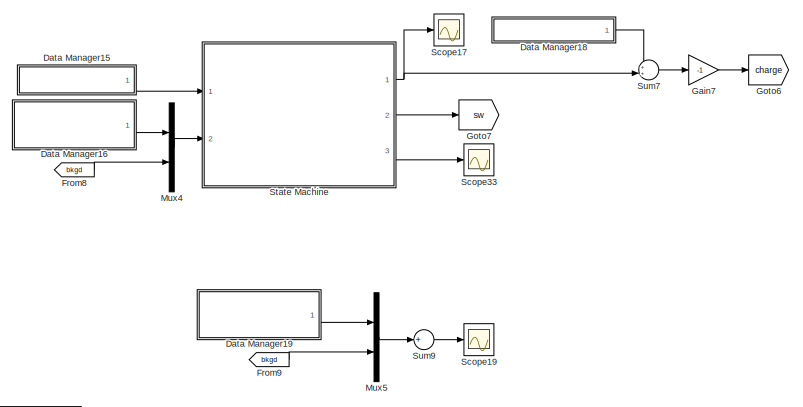
[diagram: root canvas - part 1/8, top left region]
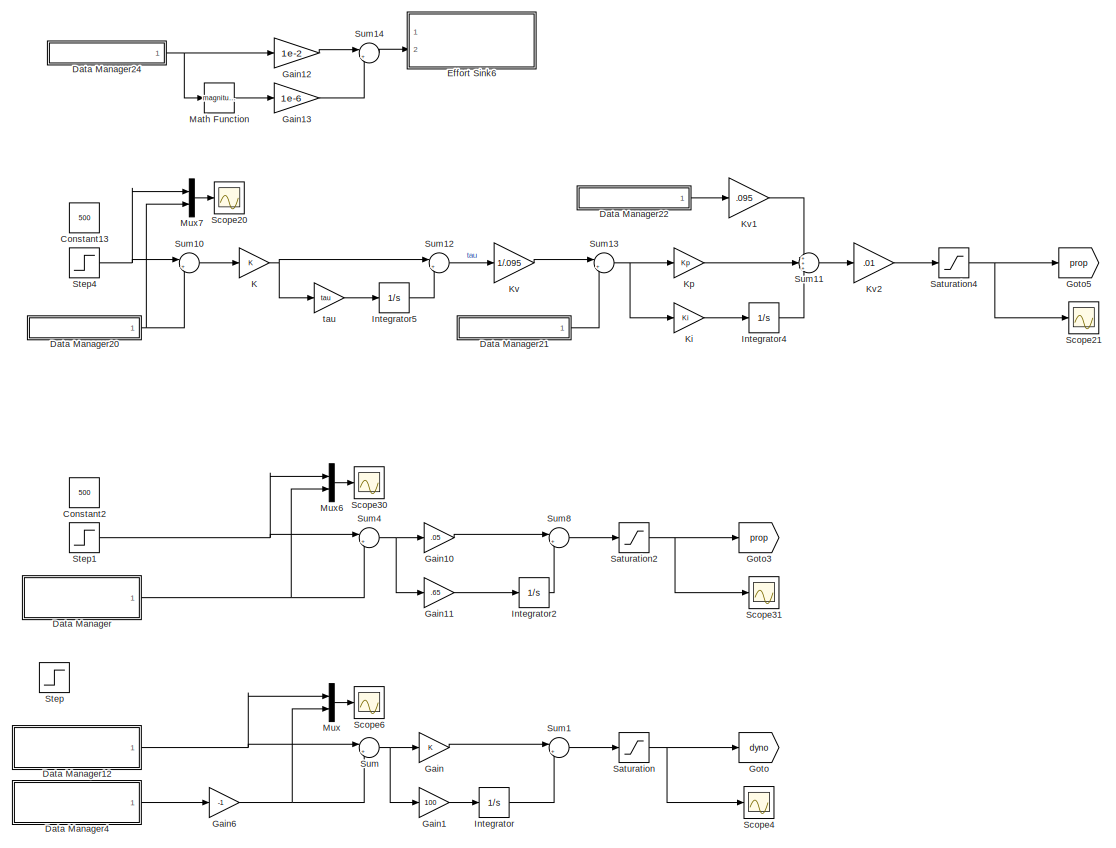
[diagram: root canvas - part 2/8, top right region]
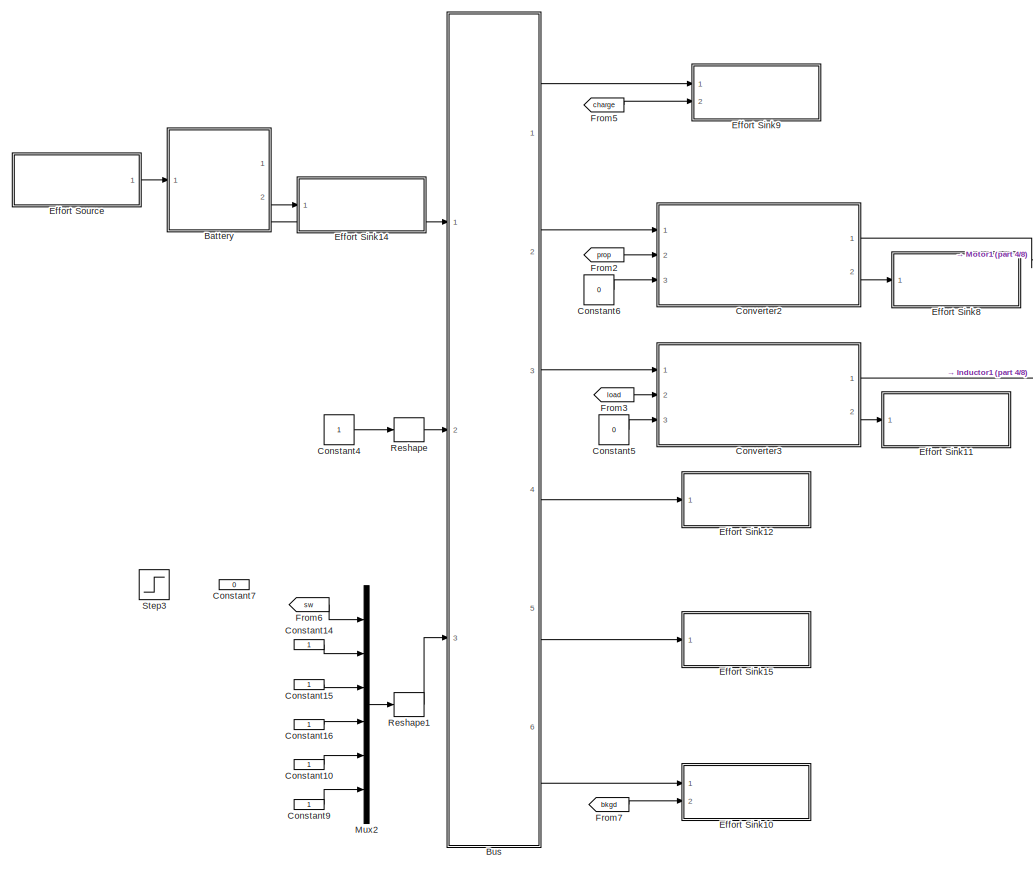
[diagram: root canvas - part 3/8, middle left region]
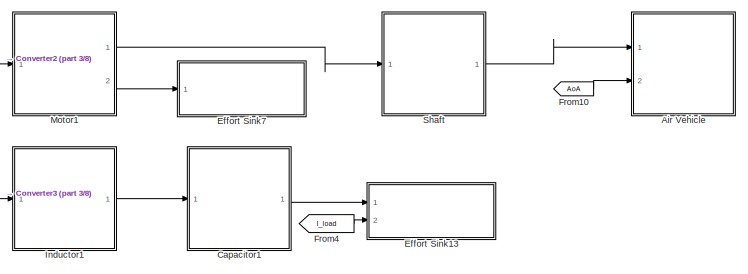
[diagram: root canvas - part 4/8, top center region]
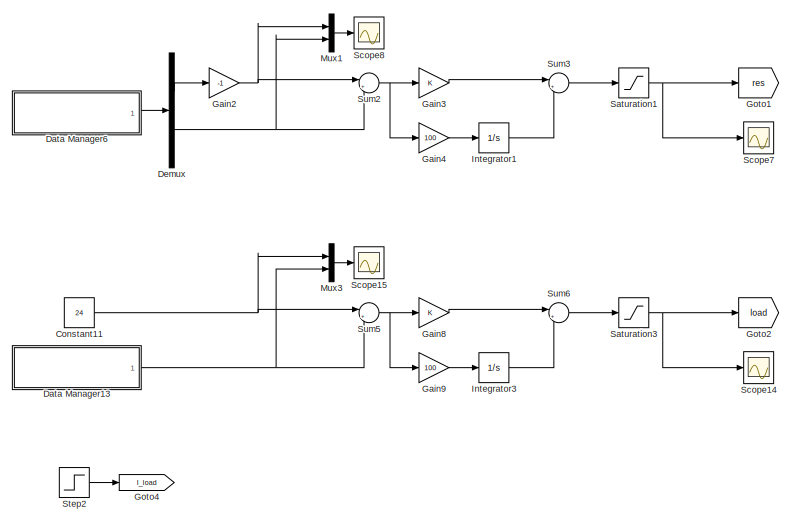
[diagram: root canvas - part 5/8, middle right region]
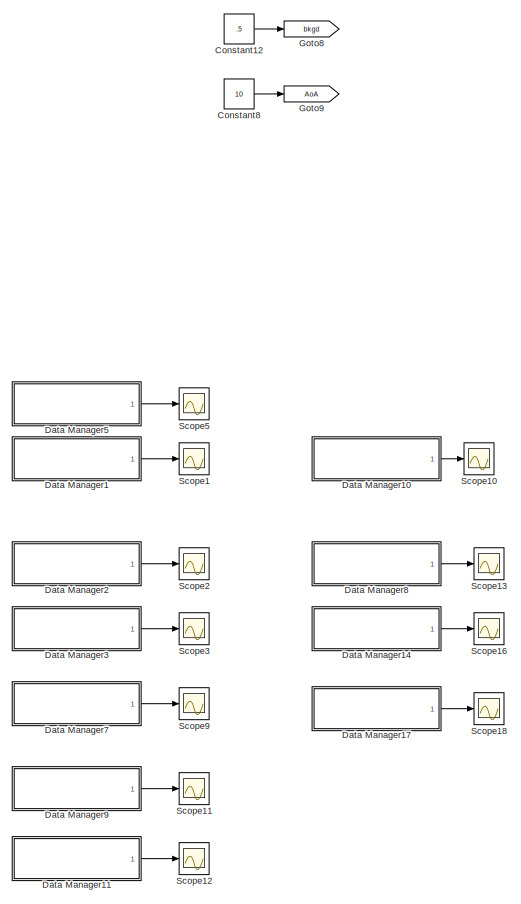
[diagram: root canvas - part 6/8, bottom right region]
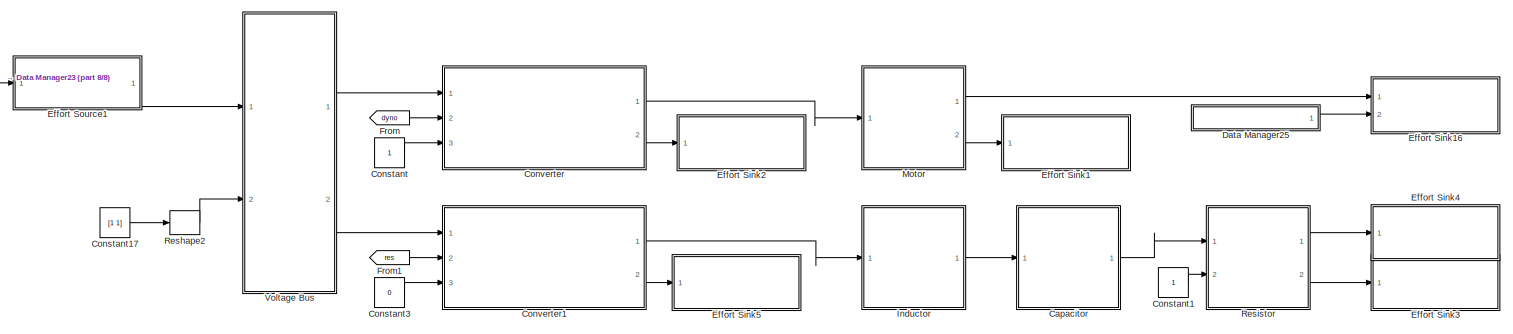
[diagram: root canvas - part 7/8, bottom left region]
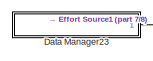
[diagram: root canvas - part 8/8, bottom left region]
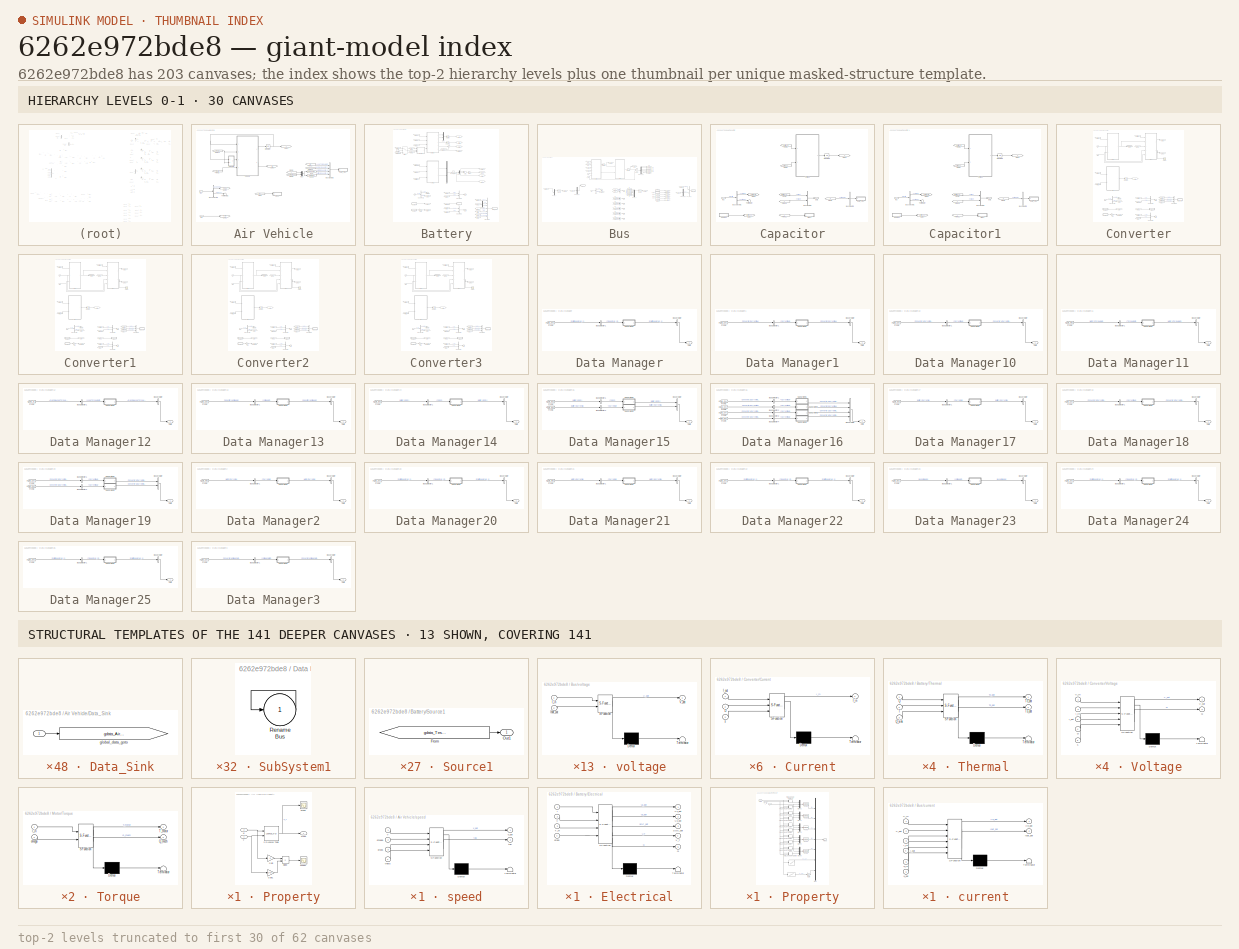
[diagram: thumbnail index - top-2 hierarchy levels (62 canvases (first 30 of 62 shown)) + 13 structural-template representatives of the remaining 141 canvases]
MODEL slx_6262e972bde8
KIND model
CONFIG AbsTol = auto
CONFIG FixedStep = auto
CONFIG MaxStep = auto
CONFIG MinStep = auto
CONFIG RelTol = 1e-3
CONFIG SampleTimeConstraint = Unconstrained
CONFIG Solver = ode23tb
CONFIG SolverMode = Auto
CONFIG SolverName = ode23tb
CONFIG StartTime = 0.0
CONFIG StopTime = 20
BLOCK [SubSystem] Air Vehicle
  AncestorBlock = DAEMOT_Lib/Dyn Electrical Comp/Air Vehicle
  CopyFcn = h      = get_param(gcb,'handle');   % Get block handle\nblk    = gcb; \n\nset_param(blk, 'LinkStatus', 'inactive')\nclear h\nclear blk
  Ports = [2]
  RequestExecContextInheritance = off
  Variant = off
BLOCK [BusCreator] Air Vehicle/Bus Creator2
  DisplayOption = bar
  InheritFromInputs = on
  Inputs = 4
  Ports = [4, 1]
BLOCK [BusSelector] Air Vehicle/Bus Selector2
  OutputSignals = aspeed,torque
  Ports = [1, 2]
BLOCK [SubSystem] Air Vehicle/Data_Sink
  CopyFcn = h      = get_param(gcb,'handle');   % Get block handle                           \nhblock = get(h);     % Parse out handles structure\n\nstr = [hblock.Path(numel(bdroot)+2:end), hblock.Name];\nstr(~ismember(str,['A':'Z' 'a':'z' '0':'9' '_'])) = '';                     \nset_param([gcb, '/global_data_goto'],'GotoTag',['gdata_',str]);\n                               \n                                      ...<+62ch>  <repeated x16 — deduplicated; at blocks: Data_Sink>
  InitFcn = h      = get_param(gcb,'handle');   % Get block handle                           \nhblock = get(h);     % Parse out handles structure\n\nstr = [hblock.Path(numel(bdroot)+2:end), hblock.Name];\nstr(~ismember(str,['A':'Z' 'a':'z' '0':'9' '_'])) = '';                     \nset_param([gcb, '/global_data_goto'],'GotoTag',['gdata_',str]);\n                               \n                                      ...<+62ch>  <repeated x16 — deduplicated; at blocks: Data_Sink>
  LoadFcn = h      = get_param(gcb,'handle');   % Get block handle                           \nhblock = get(h);     % Parse out handles structure\n\nstr = [hblock.Path(numel(bdroot)+2:end), hblock.Name];\nstr(~ismember(str,['A':'Z' 'a':'z' '0':'9' '_'])) = '';                     \nset_param([gcb, '/global_data_goto'],'GotoTag',['gdata_',str]);\n                               \n                                      ...<+62ch>  <repeated x16 — deduplicated; at blocks: Data_Sink>
  NameChangeFcn = h      = get_param(gcb,'handle');   % Get block handle                           \nhblock = get(h);     % Parse out handles structure\n\nstr = [hblock.Path(numel(bdroot)+2:end), hblock.Name];\nstr(~ismember(str,['A':'Z' 'a':'z' '0':'9' '_'])) = '';                     \nset_param([gcb, '/global_data_goto'],'GotoTag',['gdata_',str]);\n                               \n                                      ...<+62ch>  <repeated x16 — deduplicated; at blocks: Data_Sink>
  Ports = [1]
  RequestExecContextInheritance = off
  Variant = off
BLOCK [Inport] Air Vehicle/Data_Sink/ 
  IconDisplay = Port number
BLOCK [Goto] Air Vehicle/Data_Sink/global_data_goto
  GotoTag = gdata_AirVehicleData_Sink
  Tag = 132123
  TagVisibility = global
BLOCK [Fcn] Air Vehicle/Fcn
  Expr = u(1)*cos(u(2))
BLOCK [Fcn] Air Vehicle/Fcn1
  Expr = u(1)*sin(u(2))
BLOCK [From] Air Vehicle/From
  GotoTag = tau
BLOCK [From] Air Vehicle/From1
  GotoTag = theta
BLOCK [From] Air Vehicle/From14
  GotoTag = omega
BLOCK [From] Air Vehicle/From16
  GotoTag = v
BLOCK [From] Air Vehicle/From17
  GotoTag = tau
BLOCK [From] Air Vehicle/From2
  GotoTag = v
BLOCK [From] Air Vehicle/From3
  GotoTag = theta
BLOCK [Goto] Air Vehicle/Goto1
  GotoTag = v
BLOCK [Goto] Air Vehicle/Goto2
  GotoTag = theta
BLOCK [Goto] Air Vehicle/Goto3
  GotoTag = tau
BLOCK [Goto] Air Vehicle/Goto9
  GotoTag = omega
BLOCK [Inport] Air Vehicle/In1
  IconDisplay = Port number
BLOCK [Inport] Air Vehicle/In2
  IconDisplay = Port number
  Port = 2
BLOCK [Integrator] Air Vehicle/Integrator
  InitialCondition = v_initial
  Ports = [1, 1]
BLOCK [Mux] Air Vehicle/Mux
  DisplayOption = bar
  Inputs = 2
  Ports = [2, 1]
BLOCK [SubSystem] Air Vehicle/Property
  Ports = [2, 1]
  RequestExecContextInheritance = off
  Variant = off
BLOCK [Lookup_n-D] Air Vehicle/Property/2-D Lookup Table
  BreakpointsForDimension1 = Prop.omega
  BreakpointsForDimension2 = Prop.v
  InternalRulePriority = Speed
  Ports = [2, 1]
  RndMeth = Simplest
  Table = Prop.CT_2D
BLOCK [Product] Air Vehicle/Property/Divide
  InputSameDT = off
  Inputs = /*
  OutDataTypeStr = Inherit: Inherit via internal rule
  Ports = [2, 1]
  RndMeth = Floor
  SaturateOnIntegerOverflow = off
BLOCK [Gain] Air Vehicle/Property/Gain
  Gain = d
  OutDataTypeStr = Inherit: Inherit via internal rule
  ParamDataTypeStr = Inherit: Inherit via internal rule
  SaturateOnIntegerOverflow = off
BLOCK [Gain] Air Vehicle/Property/Gain1
  Gain = 2*pi
  OutDataTypeStr = Inherit: Inherit via internal rule
  ParamDataTypeStr = Inherit: Inherit via internal rule
  SaturateOnIntegerOverflow = off
BLOCK [Outport] Air Vehicle/Property/Props
  IconDisplay = Port number
BLOCK [Scope] Air Vehicle/Property/Scope
  Ports = [1]
  ScopeSpecificationString = Simulink.scopes.TimeScopeBlockCfg('CurrentConfiguration', extmgr.ConfigurationSet(extmgr.Configuration('Core','General UI',true),extmgr.Configuration('Core','Source UI',true),extmgr.Configuration('Sources','WiredSimulink',true,'DataLoggingVariableName','ScopeData2'),extmgr.Configuration('Visuals','Time Domain',true,'SerializedDisplays',{struct('MinYLimReal','0.05049','MaxYLimReal','0.08013','YLabe...<+1391ch>
BLOCK [Scope] Air Vehicle/Property/Scope1
  Ports = [1]
  ScopeSpecificationString = Simulink.scopes.TimeScopeBlockCfg('CurrentConfiguration', extmgr.ConfigurationSet(extmgr.Configuration('Core','General UI',true),extmgr.Configuration('Core','Source UI',true),extmgr.Configuration('Sources','WiredSimulink',true,'DataLoggingVariableName','ScopeData3'),extmgr.Configuration('Visuals','Time Domain',true,'SerializedDisplays',{struct('MinYLimReal','-0.09875','MaxYLimReal','1.3435','YLabe...<+1392ch>
BLOCK [Inport] Air Vehicle/Property/v
  IconDisplay = Port number
BLOCK [Inport] Air Vehicle/Property/w
  IconDisplay = Port number
  Port = 2
BLOCK [SubSystem] Air Vehicle/Sink1
  CopyFcn = rev_comms_sink();
  InitFcn = rev_comms_sink();
  LoadFcn = rev_comms_sink();
  NameChangeFcn = rev_comms_sink();
  Ports = [1]
  RequestExecContextInheritance = off
  Variant = off
BLOCK [Goto] Air Vehicle/Sink1/Goto
  GotoTag = gdata_TestbedModel_v6AirVehicleSink1
  TagVisibility = global
BLOCK [Inport] Air Vehicle/Sink1/In1
  IconDisplay = Port number
BLOCK [Terminator] Air Vehicle/Terminator1
BLOCK [SubSystem] Air Vehicle/speed
  ErrorFcn = Stateflow.Translate.translate
  PermitHierarchicalResolution = ExplicitOnly
  Ports = [4, 2]
  RequestExecContextInheritance = off
  SFBlockType = MATLAB Function
  TreatAsAtomicUnit = on
  Variant = off
BLOCK [Demux] Air Vehicle/speed/ Demux 
  Outputs = 1
  Ports = [1, 1]
BLOCK [S-Function] Air Vehicle/speed/ SFunction 
  EnableBusSupport = on
  FunctionName = sf_sfun
  Parameters = A,C_D,M,d,g,rho
  PortCounts = [4 3]
  Ports = [4, 3]
  SFunctionDeploymentMode = off
  Tag = Stateflow S-Function TestbedModel_v6 51
BLOCK [Terminator] Air Vehicle/speed/ Terminator 
BLOCK [Inport] Air Vehicle/speed/omega
  IconDisplay = Port number
  Port = 2
BLOCK [Inport] Air Vehicle/speed/props
  IconDisplay = Port number
  Port = 3
BLOCK [Outport] Air Vehicle/speed/tau
  IconDisplay = Port number
  Port = 2
BLOCK [Inport] Air Vehicle/speed/theta
  IconDisplay = Port number
  Port = 4
BLOCK [Inport] Air Vehicle/speed/v
  IconDisplay = Port number
BLOCK [Outport] Air Vehicle/speed/v_dot
  IconDisplay = Port number
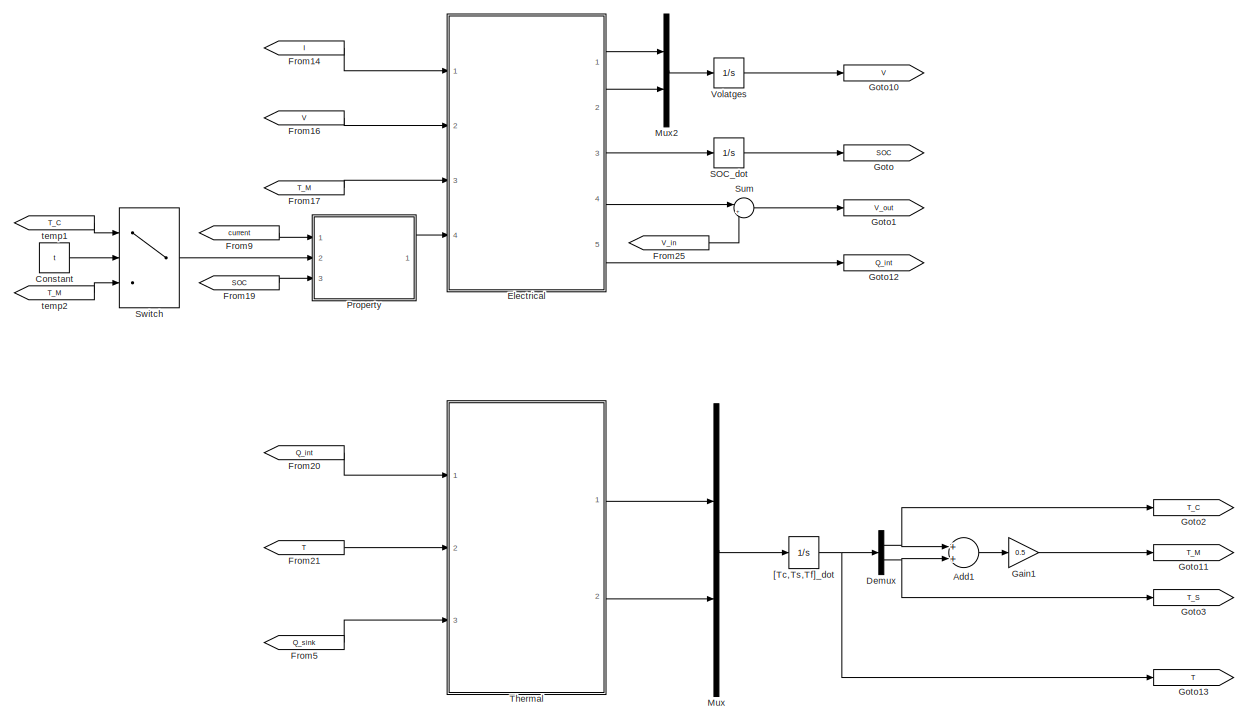
[diagram: Battery - part 1/2, full width, top band]
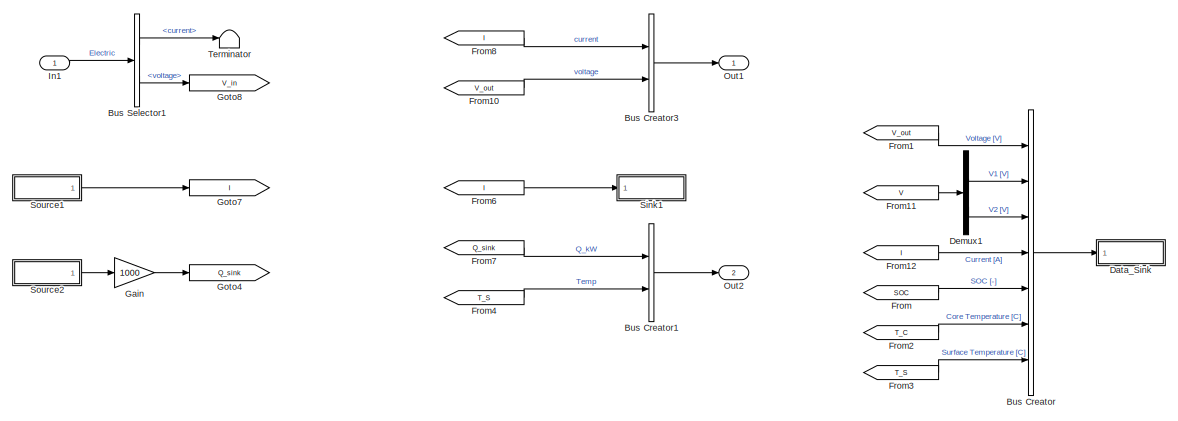
[diagram: Battery - part 2/2, full width, bottom band]
BLOCK [SubSystem] Battery
  AncestorBlock = DAEMOT_Lib/Dyn Electrical Comp/Battery
  CopyFcn = h      = get_param(gcb,'handle');   % Get block handle\nblk    = gcb; \n\nset_param(blk, 'LinkStatus', 'inactive')\nclear h\nclear blk
  Ports = [1, 2]
  RequestExecContextInheritance = off
  Variant = off
BLOCK [Sum] Battery/Add1
  InputSameDT = off
  OutDataTypeStr = Inherit: Inherit via internal rule
  Ports = [2, 1]
  SaturateOnIntegerOverflow = off
BLOCK [BusCreator] Battery/Bus Creator
  DisplayOption = bar
  InheritFromInputs = on
  Inputs = 7
  Ports = [7, 1]
BLOCK [BusCreator] Battery/Bus Creator1
  DisplayOption = bar
  InheritFromInputs = on
  Inputs = 2
  Ports = [2, 1]
BLOCK [BusCreator] Battery/Bus Creator3
  DisplayOption = bar
  InheritFromInputs = on
  Inputs = 2
  Ports = [2, 1]
BLOCK [BusSelector] Battery/Bus Selector1
  OutputSignals = current,voltage
  Ports = [1, 2]
BLOCK [Constant] Battery/Constant
  Value = t
BLOCK [SubSystem] Battery/Data_Sink
  Ports = [1]
  RequestExecContextInheritance = off
  Variant = off
BLOCK [Inport] Battery/Data_Sink/ 
  IconDisplay = Port number
BLOCK [Goto] Battery/Data_Sink/global_data_goto
  GotoTag = gdata_BatteryData_Sink
  Tag = 132123
  TagVisibility = global
BLOCK [Demux] Battery/Demux
  DisplayOption = bar
  Outputs = 2
  Ports = [1, 2]
BLOCK [Demux] Battery/Demux1
  DisplayOption = bar
  Outputs = 2
  Ports = [1, 2]
BLOCK [SubSystem] Battery/Electrical
  ErrorFcn = Stateflow.Translate.translate
  PermitHierarchicalResolution = ExplicitOnly
  Ports = [4, 5]
  RequestExecContextInheritance = off
  SFBlockType = MATLAB Function
  TreatAsAtomicUnit = on
  Variant = off
BLOCK [Demux] Battery/Electrical/ Demux 
  Outputs = 1
  Ports = [1, 1]
BLOCK [S-Function] Battery/Electrical/ SFunction 
  EnableBusSupport = on
  FunctionName = sf_sfun
  Parameters = B_cap,Np,Ns
  PortCounts = [4 6]
  Ports = [4, 6]
  SFunctionDeploymentMode = off
  Tag = Stateflow S-Function TestbedModel_v6 17
BLOCK [Terminator] Battery/Electrical/ Terminator 
BLOCK [Inport] Battery/Electrical/I
  IconDisplay = Port number
BLOCK [Outport] Battery/Electrical/Q
  IconDisplay = Port number
  Port = 5
BLOCK [Outport] Battery/Electrical/SOC_dot
  IconDisplay = Port number
  Port = 3
BLOCK [Inport] Battery/Electrical/T_m
  IconDisplay = Port number
  Port = 3
BLOCK [Inport] Battery/Electrical/V
  IconDisplay = Port number
  Port = 2
BLOCK [Outport] Battery/Electrical/V1_dot
  IconDisplay = Port number
BLOCK [Outport] Battery/Electrical/V2_dot
  IconDisplay = Port number
  Port = 2
BLOCK [Outport] Battery/Electrical/V_T
  IconDisplay = Port number
  Port = 4
BLOCK [Inport] Battery/Electrical/props
  IconDisplay = Port number
  Port = 4
BLOCK [From] Battery/From
  GotoTag = SOC
BLOCK [From] Battery/From1
  GotoTag = V_out
BLOCK [From] Battery/From10
  GotoTag = V_out
BLOCK [From] Battery/From11
  GotoTag = V
BLOCK [From] Battery/From12
  GotoTag = I
BLOCK [From] Battery/From14
  GotoTag = I
BLOCK [From] Battery/From16
  GotoTag = V
BLOCK [From] Battery/From17
  GotoTag = T_M
BLOCK [From] Battery/From19
  GotoTag = SOC
BLOCK [From] Battery/From2
  GotoTag = T_C
BLOCK [From] Battery/From20
  GotoTag = Q_int
BLOCK [From] Battery/From21
  GotoTag = T
BLOCK [From] Battery/From25
  GotoTag = V_in
BLOCK [From] Battery/From3
  GotoTag = T_S
BLOCK [From] Battery/From4
  GotoTag = T_S
BLOCK [From] Battery/From5
  GotoTag = Q_sink
BLOCK [From] Battery/From6
  GotoTag = I
BLOCK [From] Battery/From7
  GotoTag = Q_sink
BLOCK [From] Battery/From8
  GotoTag = I
BLOCK [From] Battery/From9
  GotoTag = current
BLOCK [Gain] Battery/Gain
  Gain = 1000
  OutDataTypeStr = Inherit: Inherit via internal rule
  ParamDataTypeStr = Inherit: Inherit via internal rule
  SaturateOnIntegerOverflow = off
BLOCK [Gain] Battery/Gain1
  Gain = 0.5
  OutDataTypeStr = Inherit: Inherit via internal rule
  ParamDataTypeStr = Inherit: Inherit via internal rule
  SaturateOnIntegerOverflow = off
BLOCK [Goto] Battery/Goto
  GotoTag = SOC
BLOCK [Goto] Battery/Goto1
  GotoTag = V_out
BLOCK [Goto] Battery/Goto10
  GotoTag = V
BLOCK [Goto] Battery/Goto11
  GotoTag = T_M
BLOCK [Goto] Battery/Goto12
  GotoTag = Q_int
BLOCK [Goto] Battery/Goto13
  GotoTag = T
BLOCK [Goto] Battery/Goto2
  GotoTag = T_C
BLOCK [Goto] Battery/Goto3
  GotoTag = T_S
BLOCK [Goto] Battery/Goto4
  GotoTag = Q_sink
BLOCK [Goto] Battery/Goto7
  GotoTag = I
BLOCK [Goto] Battery/Goto8
  GotoTag = V_in
BLOCK [Inport] Battery/In1
  IconDisplay = Port number
BLOCK [Mux] Battery/Mux
  DisplayOption = bar
  Inputs = 2
  Ports = [2, 1]
BLOCK [Mux] Battery/Mux2
  DisplayOption = bar
  Inputs = 2
  Ports = [2, 1]
BLOCK [Outport] Battery/Out1
  IconDisplay = Port number
BLOCK [Outport] Battery/Out2
  IconDisplay = Port number
  Port = 2
BLOCK [SubSystem] Battery/Property
  Ports = [3, 1]
  RequestExecContextInheritance = off
  Variant = off
BLOCK [Lookup] Battery/Property/ 
  InputValues = cell.V_SOC
  LookUpMeth = Interpolation-Use End Values
  SaturateOnIntegerOverflow = off
  Table = cell.Vocv
BLOCK [Fcn] Battery/Property/Fcn1
  Expr = ((u(1)-u(3))/(1+exp(-50*u(2))))+u(3)
BLOCK [Fcn] Battery/Property/Fcn2
  Expr = ((u(1)-u(3))/(1+exp(-50*u(2))))+u(3)
BLOCK [Fcn] Battery/Property/Fcn3
  Expr = ((u(1)-u(3))/(1+exp(-50*u(2))))+u(3)
BLOCK [Fcn] Battery/Property/Fcn4
  Expr = ((u(1)-u(3))/(1+exp(-50*u(2))))+u(3)
BLOCK [Fcn] Battery/Property/Fcn5
  Expr = ((u(1)-u(3))/(1+exp(-50*u(2))))+u(3)
BLOCK [Gain] Battery/Property/Gain
  Gain = Ns
  OutDataTypeStr = Inherit: Inherit via internal rule
  ParamDataTypeStr = Inherit: Inherit via internal rule
  SaturateOnIntegerOverflow = off
BLOCK [Inport] Battery/Property/I
  IconDisplay = Port number
BLOCK [Mux] Battery/Property/Mux
  DisplayOption = bar
  Inputs = 7
  Ports = [7, 1]
BLOCK [Mux] Battery/Property/Mux1
  DisplayOption = bar
  Inputs = 3
  Ports = [3, 1]
BLOCK [Mux] Battery/Property/Mux2
  DisplayOption = bar
  Inputs = 3
  Ports = [3, 1]
BLOCK [Mux] Battery/Property/Mux3
  DisplayOption = bar
  Inputs = 3
  Ports = [3, 1]
BLOCK [Mux] Battery/Property/Mux4
  DisplayOption = bar
  Inputs = 3
  Ports = [3, 1]
BLOCK [Mux] Battery/Property/Mux5
  DisplayOption = bar
  Inputs = 3
  Ports = [3, 1]
BLOCK [Outport] Battery/Property/Props
  IconDisplay = Port number
BLOCK [Inport] Battery/Property/SOC
  IconDisplay = Port number
  Port = 3
BLOCK [Inport] Battery/Property/T_m
  IconDisplay = Port number
  Port = 2
BLOCK [Lookup_n-D] Battery/Property/n-D Lookup Table1
  BreakpointsForDimension1 = cell.RC_SOC_c
  BreakpointsForDimension2 = cell.Temp
  BreakpointsForDimension3 = [5, 7]
  Ports = [2, 1]
  RndMeth = Simplest
  Table = cell.Rs_c
BLOCK [Lookup_n-D] Battery/Property/n-D Lookup Table13
  BreakpointsForDimension1 = cell.RC_SOC_d
  BreakpointsForDimension2 = cell.Temp
  BreakpointsForDimension3 = [5, 7]
  Ports = [2, 1]
  RndMeth = Simplest
  Table = cell.Rs_d
BLOCK [Lookup_n-D] Battery/Property/n-D Lookup Table2
  BreakpointsForDimension1 = cell.RC_SOC_d
  BreakpointsForDimension2 = cell.Temp
  BreakpointsForDimension3 = [5, 7]
  Ports = [2, 1]
  RndMeth = Simplest
  Table = cell.R1_d
BLOCK [Lookup_n-D] Battery/Property/n-D Lookup Table3
  BreakpointsForDimension1 = cell.RC_SOC_c
  BreakpointsForDimension2 = cell.Temp
  BreakpointsForDimension3 = [5, 7]
  Ports = [2, 1]
  RndMeth = Simplest
  Table = cell.R1_c
BLOCK [Lookup_n-D] Battery/Property/n-D Lookup Table4
  BreakpointsForDimension1 = cell.RC_SOC_d
  BreakpointsForDimension2 = cell.Temp
  BreakpointsForDimension3 = [5, 7]
  Ports = [2, 1]
  RndMeth = Simplest
  Table = cell.C1_d
BLOCK [Lookup_n-D] Battery/Property/n-D Lookup Table5
  BreakpointsForDimension1 = cell.RC_SOC_c
  BreakpointsForDimension2 = cell.Temp
  BreakpointsForDimension3 = [5, 7]
  Ports = [2, 1]
  RndMeth = Simplest
  Table = cell.C1_c
BLOCK [Lookup_n-D] Battery/Property/n-D Lookup Table6
  BreakpointsForDimension1 = cell.RC_SOC_d
  BreakpointsForDimension2 = cell.Temp
  BreakpointsForDimension3 = [5, 7]
  Ports = [2, 1]
  RndMeth = Simplest
  Table = cell.R2_d
BLOCK [Lookup_n-D] Battery/Property/n-D Lookup Table7
  BreakpointsForDimension1 = cell.RC_SOC_c
  BreakpointsForDimension2 = cell.Temp
  BreakpointsForDimension3 = [5, 7]
  Ports = [2, 1]
  RndMeth = Simplest
  Table = cell.R2_c
BLOCK [Lookup_n-D] Battery/Property/n-D Lookup Table8
  BreakpointsForDimension1 = cell.RC_SOC_d
  BreakpointsForDimension2 = cell.Temp
  BreakpointsForDimension3 = [5, 7]
  Ports = [2, 1]
  RndMeth = Simplest
  Table = cell.C2_d
BLOCK [Lookup_n-D] Battery/Property/n-D Lookup Table9
  BreakpointsForDimension1 = cell.RC_SOC_c
  BreakpointsForDimension2 = cell.Temp
  BreakpointsForDimension3 = [5, 7]
  Ports = [2, 1]
  RndMeth = Simplest
  Table = cell.C2_c
BLOCK [Integrator] Battery/SOC_dot
  InitialCondition = SOC_initial
  Ports = [1, 1]
BLOCK [SubSystem] Battery/Sink1
  CopyFcn = rev_comms_sink();
  InitFcn = rev_comms_sink();
  LoadFcn = rev_comms_sink();
  NameChangeFcn = rev_comms_sink();
  Ports = [1]
  RequestExecContextInheritance = off
  Variant = off
BLOCK [Goto] Battery/Sink1/Goto
  GotoTag = gdata_TestbedModel_v6BatterySink1
  TagVisibility = global
BLOCK [Inport] Battery/Sink1/In1
  IconDisplay = Port number
BLOCK [SubSystem] Battery/Source1
  Ports = [0, 1]
  RequestExecContextInheritance = off
  Variant = off
BLOCK [From] Battery/Source1/From
  GotoTag = gdata_TestbedModel_v6BusSink1
  TagVisibility = global
BLOCK [Outport] Battery/Source1/Out1
  IconDisplay = Port number
BLOCK [SubSystem] Battery/Source2
  Ports = [0, 1]
  RequestExecContextInheritance = off
  Variant = off
BLOCK [From] Battery/Source2/From
  GotoTag = gdata_TestbedModel_v6EffortSink14Sink1
  TagVisibility = global
BLOCK [Outport] Battery/Source2/Out1
  IconDisplay = Port number
BLOCK [Sum] Battery/Sum
  IconShape = round
  InputSameDT = off
  Inputs = |++
  OutDataTypeStr = Inherit: Inherit via internal rule
  Ports = [2, 1]
  SaturateOnIntegerOverflow = off
BLOCK [Switch] Battery/Switch
  Criteria = u2 > Threshold
  InputSameDT = off
  SaturateOnIntegerOverflow = off
  Threshold = 1.5
BLOCK [Terminator] Battery/Terminator
BLOCK [SubSystem] Battery/Thermal
  ErrorFcn = Stateflow.Translate.translate
  PermitHierarchicalResolution = ExplicitOnly
  Ports = [3, 2]
  RequestExecContextInheritance = off
  SFBlockType = MATLAB Function
  TreatAsAtomicUnit = on
  Variant = off
BLOCK [Demux] Battery/Thermal/ Demux 
  Outputs = 1
  Ports = [1, 1]
BLOCK [S-Function] Battery/Thermal/ SFunction 
  EnableBusSupport = on
  FunctionName = sf_sfun
  Parameters = C_c,C_s,Np,Ns,R_cond
  PortCounts = [3 3]
  Ports = [3, 3]
  SFunctionDeploymentMode = off
  Tag = Stateflow S-Function TestbedModel_v6 18
BLOCK [Terminator] Battery/Thermal/ Terminator 
BLOCK [Inport] Battery/Thermal/Q
  IconDisplay = Port number
BLOCK [Inport] Battery/Thermal/Q_sink
  IconDisplay = Port number
  Port = 3
BLOCK [Inport] Battery/Thermal/T
  IconDisplay = Port number
  Port = 2
BLOCK [Outport] Battery/Thermal/Tc_dot
  IconDisplay = Port number
BLOCK [Outport] Battery/Thermal/Ts_dot
  IconDisplay = Port number
  Port = 2
BLOCK [Integrator] Battery/Volatges
  InitialCondition = RC_initial
  Ports = [1, 1]
BLOCK [Integrator] Battery/[Tc,Ts,Tf]_dot
  InitialCondition = [Tc_initial, Ts_initial]
  Ports = [1, 1]
BLOCK [From] Battery/temp1
  GotoTag = T_C
BLOCK [From] Battery/temp2
  GotoTag = T_M
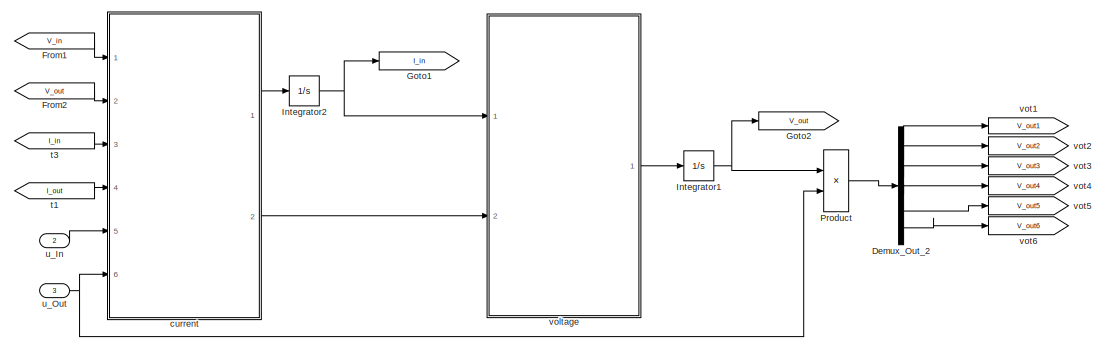
[diagram: Bus - part 1/3, top center region]
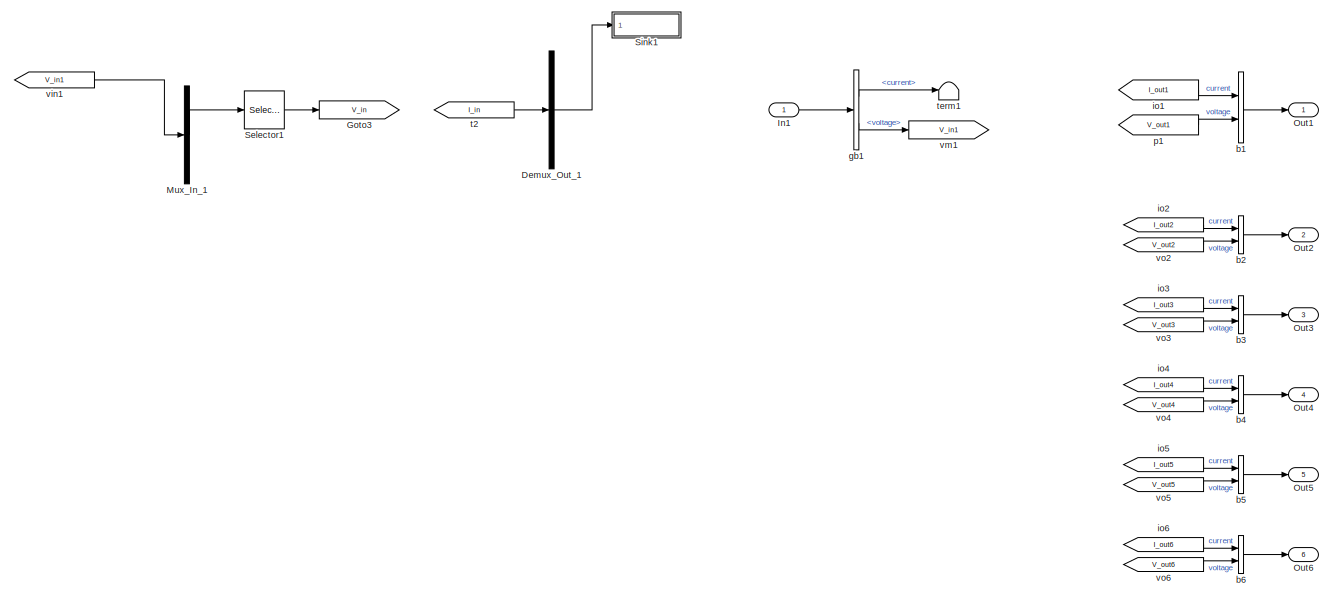
[diagram: Bus - part 2/3, bottom left region]
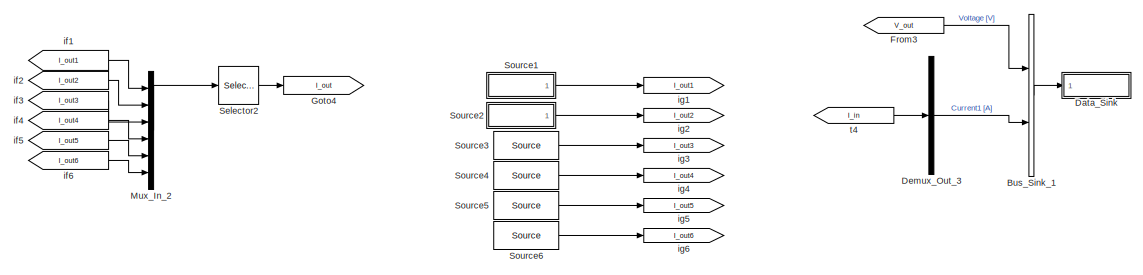
[diagram: Bus - part 3/3, middle right region]
BLOCK [SubSystem] Bus
  AncestorBlock = DAEMOT_Lib/Dyn Electrical Comp/Bus
  CopyFcn = h      = get_param(gcb,'handle');   % Get block handle\nblk    = gcb; \n\nset_param(blk, 'LinkStatus', 'inactive')\nclear h\nclear blk
  Ports = [3, 6]
  RequestExecContextInheritance = off
  Variant = off
BLOCK [BusCreator] Bus/Bus_Sink_1
  DisplayOption = bar
  InheritFromInputs = on
  Inputs = 2
  Ports = [2, 1]
BLOCK [SubSystem] Bus/Data_Sink
  Ports = [1]
  RequestExecContextInheritance = off
  Variant = off
BLOCK [Inport] Bus/Data_Sink/ 
  IconDisplay = Port number
BLOCK [Goto] Bus/Data_Sink/global_data_goto
  GotoTag = gdata_BusData_Sink
  Tag = 132123
  TagVisibility = global
BLOCK [Demux] Bus/Demux_Out_1
  DisplayOption = bar
  Outputs = 1
  Ports = [1, 1]
BLOCK [Demux] Bus/Demux_Out_2
  DisplayOption = bar
  Outputs = 6
  Ports = [1, 6]
BLOCK [Demux] Bus/Demux_Out_3
  DisplayOption = bar
  Outputs = 1
  Ports = [1, 1]
BLOCK [From] Bus/From1
  CloseFcn = tagdialog Close
  GotoTag = V_in
BLOCK [From] Bus/From2
  CloseFcn = tagdialog Close
  GotoTag = V_out
BLOCK [From] Bus/From3
  CloseFcn = tagdialog Close
  GotoTag = V_out
BLOCK [Goto] Bus/Goto1
  GotoTag = I_in
BLOCK [Goto] Bus/Goto2
  GotoTag = V_out
BLOCK [Goto] Bus/Goto3
  GotoTag = V_in
BLOCK [Goto] Bus/Goto4
  GotoTag = I_out
BLOCK [Inport] Bus/In1
  IconDisplay = Port number
BLOCK [Integrator] Bus/Integrator1
  InitialCondition = V_initial
  Ports = [1, 1]
BLOCK [Integrator] Bus/Integrator2
  InitialCondition = I_initial*ones(Num_In,1)
  Ports = [1, 1]
BLOCK [Mux] Bus/Mux_In_1
  DisplayOption = bar
  Inputs = 1
  Ports = [1, 1]
BLOCK [Mux] Bus/Mux_In_2
  DisplayOption = bar
  Inputs = 6
  Ports = [6, 1]
BLOCK [Outport] Bus/Out1
  IconDisplay = Port number
BLOCK [Outport] Bus/Out2
  IconDisplay = Port number
  Port = 2
BLOCK [Outport] Bus/Out3
  IconDisplay = Port number
  Port = 3
BLOCK [Outport] Bus/Out4
  IconDisplay = Port number
  Port = 4
BLOCK [Outport] Bus/Out5
  IconDisplay = Port number
  Port = 5
BLOCK [Outport] Bus/Out6
  IconDisplay = Port number
  Port = 6
BLOCK [Product] Bus/Product
  InputSameDT = off
  OutDataTypeStr = Inherit: Inherit via internal rule
  Ports = [2, 1]
  RndMeth = Floor
  SaturateOnIntegerOverflow = off
BLOCK [Selector] Bus/Selector1
  IndexOptions = Index vector (dialog)
  Indices = [1 ]
  InputPortWidth = 1
  OutputSizes = 1
  Ports = [1, 1]
BLOCK [Selector] Bus/Selector2
  IndexOptions = Index vector (dialog)
  Indices = [1 2 3 4 5 6 ]
  InputPortWidth = 6
  OutputSizes = 1
  Ports = [1, 1]
BLOCK [SubSystem] Bus/Sink1
  CopyFcn = rev_comms_sink();
  InitFcn = rev_comms_sink();
  LoadFcn = rev_comms_sink();
  NameChangeFcn = rev_comms_sink();
  Ports = [1]
  RequestExecContextInheritance = off
  Variant = off
BLOCK [Goto] Bus/Sink1/Goto
  GotoTag = gdata_TestbedModel_v6BusSink1
  TagVisibility = global
BLOCK [Inport] Bus/Sink1/In1
  IconDisplay = Port number
BLOCK [SubSystem] Bus/Source1
  Ports = [0, 1]
  RequestExecContextInheritance = off
  Variant = off
BLOCK [From] Bus/Source1/From
  GotoTag = gdata_TestbedModel_v6EffortSink9Sink1
  TagVisibility = global
BLOCK [Outport] Bus/Source1/Out1
  IconDisplay = Port number
BLOCK [SubSystem] Bus/Source2
  Ports = [0, 1]
  RequestExecContextInheritance = off
  Variant = off
BLOCK [From] Bus/Source2/From
  GotoTag = gdata_TestbedModel_v6Converter2Sink1
  TagVisibility = global
BLOCK [Outport] Bus/Source2/Out1
  IconDisplay = Port number
BLOCK [Reference] Bus/Source3  REF=DAEMOT_Lib/Support Functions/Source
  Ports = [0, 1]
  SourceBlock = DAEMOT_Lib/Support Functions/Source
  SourceType = Source
BLOCK [Reference] Bus/Source4  REF=DAEMOT_Lib/Support Functions/Source
  Ports = [0, 1]
  SourceBlock = DAEMOT_Lib/Support Functions/Source
  SourceType = Source
BLOCK [Reference] Bus/Source5  REF=DAEMOT_Lib/Support Functions/Source
  Ports = [0, 1]
  SourceBlock = DAEMOT_Lib/Support Functions/Source
  SourceType = Source
BLOCK [Reference] Bus/Source6  REF=DAEMOT_Lib/Support Functions/Source
  Ports = [0, 1]
  SourceBlock = DAEMOT_Lib/Support Functions/Source
  SourceType = Source
BLOCK [BusCreator] Bus/b1
  DisplayOption = bar
  InheritFromInputs = on
  Inputs = 2
  Ports = [2, 1]
BLOCK [BusCreator] Bus/b2
  DisplayOption = bar
  InheritFromInputs = on
  Inputs = 2
  Ports = [2, 1]
BLOCK [BusCreator] Bus/b3
  DisplayOption = bar
  InheritFromInputs = on
  Inputs = 2
  Ports = [2, 1]
BLOCK [BusCreator] Bus/b4
  DisplayOption = bar
  InheritFromInputs = on
  Inputs = 2
  Ports = [2, 1]
BLOCK [BusCreator] Bus/b5
  DisplayOption = bar
  InheritFromInputs = on
  Inputs = 2
  Ports = [2, 1]
BLOCK [BusCreator] Bus/b6
  DisplayOption = bar
  InheritFromInputs = on
  Inputs = 2
  Ports = [2, 1]
BLOCK [SubSystem] Bus/current
  ErrorFcn = Stateflow.Translate.translate
  PermitHierarchicalResolution = ExplicitOnly
  Ports = [6, 2]
  RequestExecContextInheritance = off
  SFBlockType = MATLAB Function
  TreatAsAtomicUnit = on
  Variant = off
BLOCK [Demux] Bus/current/ Demux 
  Outputs = 1
  Ports = [1, 1]
BLOCK [S-Function] Bus/current/ SFunction 
  EnableBusSupport = on
  FunctionName = sf_sfun
  Parameters = L,R
  PortCounts = [6 3]
  Ports = [6, 3]
  SFunctionDeploymentMode = off
  Tag = Stateflow S-Function TestbedModel_v6 43
BLOCK [Terminator] Bus/current/ Terminator 
BLOCK [Inport] Bus/current/I_in
  IconDisplay = Port number
  Port = 3
BLOCK [Inport] Bus/current/I_out
  IconDisplay = Port number
  Port = 4
BLOCK [Outport] Bus/current/Iin_dot
  IconDisplay = Port number
BLOCK [Outport] Bus/current/Iout_bar
  IconDisplay = Port number
  Port = 2
BLOCK [Inport] Bus/current/V_in
  IconDisplay = Port number
BLOCK [Inport] Bus/current/V_out
  IconDisplay = Port number
  Port = 2
BLOCK [Inport] Bus/current/u_in
  IconDisplay = Port number
  Port = 5
BLOCK [Inport] Bus/current/u_out
  IconDisplay = Port number
  Port = 6
BLOCK [BusSelector] Bus/gb1
  OutputSignals = current,voltage
  Ports = [1, 2]
BLOCK [From] Bus/if1
  GotoTag = I_out1
BLOCK [From] Bus/if2
  GotoTag = I_out2
BLOCK [From] Bus/if3
  GotoTag = I_out3
BLOCK [From] Bus/if4
  GotoTag = I_out4
BLOCK [From] Bus/if5
  GotoTag = I_out5
BLOCK [From] Bus/if6
  GotoTag = I_out6
BLOCK [Goto] Bus/ig1
  GotoTag = I_out1
BLOCK [Goto] Bus/ig2
  GotoTag = I_out2
BLOCK [Goto] Bus/ig3
  GotoTag = I_out3
BLOCK [Goto] Bus/ig4
  GotoTag = I_out4
BLOCK [Goto] Bus/ig5
  GotoTag = I_out5
BLOCK [Goto] Bus/ig6
  GotoTag = I_out6
BLOCK [From] Bus/io1
  GotoTag = I_out1
BLOCK [From] Bus/io2
  GotoTag = I_out2
BLOCK [From] Bus/io3
  GotoTag = I_out3
BLOCK [From] Bus/io4
  GotoTag = I_out4
BLOCK [From] Bus/io5
  GotoTag = I_out5
BLOCK [From] Bus/io6
  GotoTag = I_out6
BLOCK [From] Bus/p1
  GotoTag = V_out1
BLOCK [From] Bus/t1
  CloseFcn = tagdialog Close
  GotoTag = I_out
BLOCK [From] Bus/t2
  CloseFcn = tagdialog Close
  GotoTag = I_in
BLOCK [From] Bus/t3
  CloseFcn = tagdialog Close
  GotoTag = I_in
BLOCK [From] Bus/t4
  CloseFcn = tagdialog Close
  GotoTag = I_in
BLOCK [Terminator] Bus/term1
BLOCK [Inport] Bus/u_In
  IconDisplay = Port number
  Port = 2
BLOCK [Inport] Bus/u_Out
  IconDisplay = Port number
  Port = 3
BLOCK [From] Bus/vin1
  CloseFcn = tagdialog Close
  GotoTag = V_in1
BLOCK [Goto] Bus/vm1
  GotoTag = V_in1
BLOCK [From] Bus/vo2
  GotoTag = V_out2
BLOCK [From] Bus/vo3
  GotoTag = V_out3
BLOCK [From] Bus/vo4
  GotoTag = V_out4
BLOCK [From] Bus/vo5
  GotoTag = V_out5
BLOCK [From] Bus/vo6
  GotoTag = V_out6
BLOCK [SubSystem] Bus/voltage
  ErrorFcn = Stateflow.Translate.translate
  PermitHierarchicalResolution = ExplicitOnly
  Ports = [2, 1]
  RequestExecContextInheritance = off
  SFBlockType = MATLAB Function
  TreatAsAtomicUnit = on
  Variant = off
BLOCK [Demux] Bus/voltage/ Demux 
  Outputs = 1
  Ports = [1, 1]
BLOCK [S-Function] Bus/voltage/ SFunction 
  EnableBusSupport = on
  FunctionName = sf_sfun
  Parameters = C
  PortCounts = [2 2]
  Ports = [2, 2]
  SFunctionDeploymentMode = off
  Tag = Stateflow S-Function TestbedModel_v6 44
BLOCK [Terminator] Bus/voltage/ Terminator 
BLOCK [Inport] Bus/voltage/I_in
  IconDisplay = Port number
BLOCK [Inport] Bus/voltage/Ibar_out
  IconDisplay = Port number
  Port = 2
BLOCK [Outport] Bus/voltage/V_dot
  IconDisplay = Port number
BLOCK [Goto] Bus/vot1
  GotoTag = V_out1
BLOCK [Goto] Bus/vot2
  GotoTag = V_out2
BLOCK [Goto] Bus/vot3
  GotoTag = V_out3
BLOCK [Goto] Bus/vot4
  GotoTag = V_out4
BLOCK [Goto] Bus/vot5
  GotoTag = V_out5
BLOCK [Goto] Bus/vot6
  GotoTag = V_out6
BLOCK [SubSystem] Capacitor
  AncestorBlock = DAEMOT_Lib/Dyn Electrical Comp/Capacitor
  CopyFcn = h      = get_param(gcb,'handle');   % Get block handle\nblk    = gcb; \n\nset_param(blk, 'LinkStatus', 'inactive')\nclear h\nclear blk
  Ports = [1, 1]
  RequestExecContextInheritance = off
  Variant = off
BLOCK [BusCreator] Capacitor/Bus Creator1
  DisplayOption = bar
  InheritFromInputs = on
  Inputs = 1
  Ports = [1, 1]
BLOCK [BusCreator] Capacitor/Bus Creator3
  DisplayOption = bar
  InheritFromInputs = on
  Inputs = 2
  Ports = [2, 1]
BLOCK [BusSelector] Capacitor/Bus Selector1
  OutputSignals = current,voltage
  Ports = [1, 2]
BLOCK [SubSystem] Capacitor/Data_Sink
  Ports = [1]
  RequestExecContextInheritance = off
  Variant = off
BLOCK [Inport] Capacitor/Data_Sink/ 
  IconDisplay = Port number
BLOCK [Goto] Capacitor/Data_Sink/global_data_goto
  GotoTag = gdata_CapacitorData_Sink
  Tag = 132123
  TagVisibility = global
BLOCK [From] Capacitor/From1
  GotoTag = Current_out
BLOCK [From] Capacitor/From10
  GotoTag = V
BLOCK [From] Capacitor/From12
  GotoTag = V
BLOCK [From] Capacitor/From2
  GotoTag = V
BLOCK [From] Capacitor/From6
  GotoTag = Current_in
BLOCK [From] Capacitor/From8
  GotoTag = Current_out
BLOCK [Goto] Capacitor/Goto1
  GotoTag = V
BLOCK [Goto] Capacitor/Goto2
  GotoTag = Current_in
BLOCK [Goto] Capacitor/Goto7
  GotoTag = Current_out
BLOCK [Inport] Capacitor/In1
  IconDisplay = Port number
BLOCK [Integrator] Capacitor/Integrator2
  InitialCondition = V_initial
  Ports = [1, 1]
BLOCK [Outport] Capacitor/Out1
  IconDisplay = Port number
BLOCK [SubSystem] Capacitor/Sink1
  CopyFcn = rev_comms_sink();
  InitFcn = rev_comms_sink();
  LoadFcn = rev_comms_sink();
  NameChangeFcn = rev_comms_sink();
  Ports = [1]
  RequestExecContextInheritance = off
  Variant = off
BLOCK [Goto] Capacitor/Sink1/Goto
  GotoTag = gdata_TestbedModel_v6CapacitorSink1
  TagVisibility = global
BLOCK [Inport] Capacitor/Sink1/In1
  IconDisplay = Port number
BLOCK [SubSystem] Capacitor/Source1
  Ports = [0, 1]
  RequestExecContextInheritance = off
  Variant = off
BLOCK [From] Capacitor/Source1/From
  GotoTag = gdata_TestbedModel_v6ResistorSink1
  TagVisibility = global
BLOCK [Outport] Capacitor/Source1/Out1
  IconDisplay = Port number
BLOCK [Terminator] Capacitor/Terminator
BLOCK [SubSystem] Capacitor/Voltage
  ErrorFcn = Stateflow.Translate.translate
  PermitHierarchicalResolution = ExplicitOnly
  Ports = [2, 1]
  RequestExecContextInheritance = off
  SFBlockType = MATLAB Function
  TreatAsAtomicUnit = on
  Variant = off
BLOCK [Demux] Capacitor/Voltage/ Demux 
  Outputs = 1
  Ports = [1, 1]
BLOCK [S-Function] Capacitor/Voltage/ SFunction 
  EnableBusSupport = on
  FunctionName = sf_sfun
  Parameters = C
  PortCounts = [2 2]
  Ports = [2, 2]
  SFunctionDeploymentMode = off
  Tag = Stateflow S-Function TestbedModel_v6 5
BLOCK [Terminator] Capacitor/Voltage/ Terminator 
BLOCK [Inport] Capacitor/Voltage/I_in
  IconDisplay = Port number
BLOCK [Inport] Capacitor/Voltage/I_out
  IconDisplay = Port number
  Port = 2
BLOCK [Outport] Capacitor/Voltage/V_dot
  IconDisplay = Port number
BLOCK [SubSystem] Capacitor1
  AncestorBlock = DAEMOT_Lib/Dyn Electrical Comp/Capacitor
  CopyFcn = h      = get_param(gcb,'handle');   % Get block handle\nblk    = gcb; \n\nset_param(blk, 'LinkStatus', 'inactive')\nclear h\nclear blk
  Ports = [1, 1]
  RequestExecContextInheritance = off
  Variant = off
BLOCK [BusCreator] Capacitor1/Bus Creator1
  DisplayOption = bar
  InheritFromInputs = on
  Inputs = 1
  Ports = [1, 1]
BLOCK [BusCreator] Capacitor1/Bus Creator3
  DisplayOption = bar
  InheritFromInputs = on
  Inputs = 2
  Ports = [2, 1]
BLOCK [BusSelector] Capacitor1/Bus Selector1
  OutputSignals = current,voltage
  Ports = [1, 2]
BLOCK [SubSystem] Capacitor1/Data_Sink
  Ports = [1]
  RequestExecContextInheritance = off
  Variant = off
BLOCK [Inport] Capacitor1/Data_Sink/ 
  IconDisplay = Port number
BLOCK [Goto] Capacitor1/Data_Sink/global_data_goto
  GotoTag = gdata_Capacitor1Data_Sink
  Tag = 132123
  TagVisibility = global
BLOCK [From] Capacitor1/From1
  GotoTag = Current_out
BLOCK [From] Capacitor1/From10
  GotoTag = V
BLOCK [From] Capacitor1/From12
  GotoTag = V
BLOCK [From] Capacitor1/From2
  GotoTag = V
BLOCK [From] Capacitor1/From6
  GotoTag = Current_in
BLOCK [From] Capacitor1/From8
  GotoTag = Current_out
BLOCK [Goto] Capacitor1/Goto1
  GotoTag = V
BLOCK [Goto] Capacitor1/Goto2
  GotoTag = Current_in
BLOCK [Goto] Capacitor1/Goto7
  GotoTag = Current_out
BLOCK [Inport] Capacitor1/In1
  IconDisplay = Port number
BLOCK [Integrator] Capacitor1/Integrator2
  InitialCondition = V_initial
  Ports = [1, 1]
BLOCK [Outport] Capacitor1/Out1
  IconDisplay = Port number
BLOCK [SubSystem] Capacitor1/Sink1
  CopyFcn = rev_comms_sink();
  InitFcn = rev_comms_sink();
  LoadFcn = rev_comms_sink();
  NameChangeFcn = rev_comms_sink();
  Ports = [1]
  RequestExecContextInheritance = off
  Variant = off
BLOCK [Goto] Capacitor1/Sink1/Goto
  GotoTag = gdata_TestbedModel_v6Capacitor1Sink1
  TagVisibility = global
BLOCK [Inport] Capacitor1/Sink1/In1
  IconDisplay = Port number
BLOCK [SubSystem] Capacitor1/Source1
  Ports = [0, 1]
  RequestExecContextInheritance = off
  Variant = off
BLOCK [From] Capacitor1/Source1/From
  GotoTag = gdata_TestbedModel_v6EffortSink13Sink1
  TagVisibility = global
BLOCK [Outport] Capacitor1/Source1/Out1
  IconDisplay = Port number
BLOCK [Terminator] Capacitor1/Terminator
BLOCK [SubSystem] Capacitor1/Voltage
  ErrorFcn = Stateflow.Translate.translate
  PermitHierarchicalResolution = ExplicitOnly
  Ports = [2, 1]
  RequestExecContextInheritance = off
  SFBlockType = MATLAB Function
  TreatAsAtomicUnit = on
  Variant = off
BLOCK [Demux] Capacitor1/Voltage/ Demux 
  Outputs = 1
  Ports = [1, 1]
BLOCK [S-Function] Capacitor1/Voltage/ SFunction 
  EnableBusSupport = on
  FunctionName = sf_sfun
  Parameters = C
  PortCounts = [2 2]
  Ports = [2, 2]
  SFunctionDeploymentMode = off
  Tag = Stateflow S-Function TestbedModel_v6 16
BLOCK [Terminator] Capacitor1/Voltage/ Terminator 
BLOCK [Inport] Capacitor1/Voltage/I_in
  IconDisplay = Port number
BLOCK [Inport] Capacitor1/Voltage/I_out
  IconDisplay = Port number
  Port = 2
BLOCK [Outport] Capacitor1/Voltage/V_dot
  IconDisplay = Port number
BLOCK [Constant] Constant
BLOCK [Constant] Constant1
BLOCK [Constant] Constant10
BLOCK [Constant] Constant11
  Value = 24
BLOCK [Constant] Constant12
  Value = .5
BLOCK [Constant] Constant13
  Commented = on
  Value = 500
BLOCK [Constant] Constant14
BLOCK [Constant] Constant15
BLOCK [Constant] Constant16
BLOCK [Constant] Constant17
  Value = [1 1]
BLOCK [Constant] Constant2
  Value = 500
BLOCK [Constant] Constant3
  Value = 0
BLOCK [Constant] Constant4
BLOCK [Constant] Constant5
  Value = 0
BLOCK [Constant] Constant6
  Value = 0
BLOCK [Constant] Constant7
  Value = 0
BLOCK [Constant] Constant8
  Value = 10
BLOCK [Constant] Constant9
BLOCK [SubSystem] Converter
  AncestorBlock = DAEMOT_Lib/Dyn Electrical Comp/Converter
  CopyFcn = h      = get_param(gcb,'handle');   % Get block handle\nblk    = gcb; \n\nset_param(blk, 'LinkStatus', 'inactive')\nclear h\nclear blk
  Ports = [3, 2]
  RequestExecContextInheritance = off
  Variant = off
BLOCK [BusCreator] Converter/Bus Creator1
  DisplayOption = bar
  InheritFromInputs = on
  Inputs = 2
  Ports = [2, 1]
BLOCK [BusCreator] Converter/Bus Creator2
  DisplayOption = bar
  InheritFromInputs = on
  Inputs = 3
  Ports = [3, 1]
BLOCK [BusCreator] Converter/Bus Creator3
  DisplayOption = bar
  InheritFromInputs = on
  Inputs = 2
  Ports = [2, 1]
BLOCK [BusSelector] Converter/Bus Selector1
  OutputSignals = current,voltage
  Ports = [1, 2]
BLOCK [SubSystem] Converter/Current
  ErrorFcn = Stateflow.Translate.translate
  PermitHierarchicalResolution = ExplicitOnly
  Ports = [3, 1]
  RequestExecContextInheritance = off
  SFBlockType = MATLAB Function
  TreatAsAtomicUnit = on
  Variant = off
BLOCK [Demux] Converter/Current/ Demux 
  Outputs = 1
  Ports = [1, 1]
BLOCK [S-Function] Converter/Current/ SFunction 
  EnableBusSupport = on
  FunctionName = sf_sfun
  Parameters = dir
  PortCounts = [3 2]
  Ports = [3, 2]
  SFunctionDeploymentMode = off
  Tag = Stateflow S-Function TestbedModel_v6 39
BLOCK [Terminator] Converter/Current/ Terminator 
BLOCK [Inport] Converter/Current/D
  IconDisplay = Port number
  Port = 2
BLOCK [Outport] Converter/Current/I_in
  IconDisplay = Port number
BLOCK [Inport] Converter/Current/I_out
  IconDisplay = Port number
BLOCK [Inport] Converter/Current/s
  IconDisplay = Port number
  Port = 3
BLOCK [SubSystem] Converter/Data_Sink
  Ports = [1]
  RequestExecContextInheritance = off
  Variant = off
BLOCK [Inport] Converter/Data_Sink/ 
  IconDisplay = Port number
BLOCK [Goto] Converter/Data_Sink/global_data_goto
  GotoTag = gdata_ConverterData_Sink
  Tag = 132123
  TagVisibility = global
BLOCK [From] Converter/From1
  GotoTag = Q_sink
BLOCK [From] Converter/From10
  GotoTag = V_out
BLOCK [From] Converter/From11
  GotoTag = V_out
BLOCK [From] Converter/From12
  GotoTag = I_in
BLOCK [From] Converter/From14
  GotoTag = T
BLOCK [From] Converter/From15
  GotoTag = I_out
BLOCK [From] Converter/From2
  GotoTag = V_in
BLOCK [From] Converter/From3
  GotoTag = I_out
BLOCK [From] Converter/From4
  GotoTag = T
BLOCK [From] Converter/From5
  GotoTag = Q
BLOCK [From] Converter/From6
  GotoTag = I_in
BLOCK [From] Converter/From8
  GotoTag = I_out
BLOCK [From] Converter/From9
  GotoTag = Q_sink
BLOCK [Gain] Converter/Gain
  Gain = 1000
  OutDataTypeStr = Inherit: Inherit via internal rule
  ParamDataTypeStr = Inherit: Inherit via internal rule
  SaturateOnIntegerOverflow = off
BLOCK [Goto] Converter/Goto1
  GotoTag = V_out
BLOCK [Goto] Converter/Goto10
  GotoTag = Q
BLOCK [Goto] Converter/Goto2
  GotoTag = T
BLOCK [Goto] Converter/Goto3
  GotoTag = Q_sink
BLOCK [Goto] Converter/Goto4
  GotoTag = I_in
BLOCK [Goto] Converter/Goto7
  GotoTag = I_out
BLOCK [Goto] Converter/Goto8
  GotoTag = V_in
BLOCK [Inport] Converter/In1
  IconDisplay = Port number
BLOCK [Inport] Converter/In2
  IconDisplay = Port number
  Port = 2
BLOCK [Inport] Converter/In3
  IconDisplay = Port number
  Port = 3
BLOCK [Integrator] Converter/Integrator1
  InitialCondition = T_initial
  Ports = [1, 1]
BLOCK [Outport] Converter/Out1
  IconDisplay = Port number
BLOCK [Outport] Converter/Out2
  IconDisplay = Port number
  Port = 2
BLOCK [Scope] Converter/Scope
  Ports = [1]
  ScopeSpecificationString = Simulink.scopes.TimeScopeBlockCfg('CurrentConfiguration', extmgr.ConfigurationSet(extmgr.Configuration('Core','General UI',true),extmgr.Configuration('Core','Source UI',true),extmgr.Configuration('Sources','WiredSimulink',true,'DataLoggingVariableName','ScopeData5'),extmgr.Configuration('Visuals','Time Domain',true,'SerializedDisplays',{struct('MinYLimReal','0.075','MaxYLimReal','0.275','YLabelRea...<+1380ch>  <repeated x4 — deduplicated; at blocks: Scope>
BLOCK [SubSystem] Converter/Sink1
  CopyFcn = rev_comms_sink();
  InitFcn = rev_comms_sink();
  LoadFcn = rev_comms_sink();
  NameChangeFcn = rev_comms_sink();
  Ports = [1]
  RequestExecContextInheritance = off
  Variant = off
BLOCK [Goto] Converter/Sink1/Goto
  GotoTag = gdata_TestbedModel_v6ConverterSink1
  TagVisibility = global
BLOCK [Inport] Converter/Sink1/In1
  IconDisplay = Port number
BLOCK [SubSystem] Converter/Source1
  Ports = [0, 1]
  RequestExecContextInheritance = off
  Variant = off
BLOCK [From] Converter/Source1/From
  GotoTag = gdata_TestbedModel_v6MotorSink1
  TagVisibility = global
BLOCK [Outport] Converter/Source1/Out1
  IconDisplay = Port number
BLOCK [SubSystem] Converter/Source2
  Ports = [0, 1]
  RequestExecContextInheritance = off
  Variant = off
BLOCK [From] Converter/Source2/From
  GotoTag = gdata_TestbedModel_v6EffortSink2Sink1
  TagVisibility = global
BLOCK [Outport] Converter/Source2/Out1
  IconDisplay = Port number
BLOCK [Terminator] Converter/Terminator
BLOCK [SubSystem] Converter/Thermal
  ErrorFcn = Stateflow.Translate.translate
  PermitHierarchicalResolution = ExplicitOnly
  Ports = [2, 1]
  RequestExecContextInheritance = off
  SFBlockType = MATLAB Function
  TreatAsAtomicUnit = on
  Variant = off
BLOCK [Demux] Converter/Thermal/ Demux 
  Outputs = 1
  Ports = [1, 1]
BLOCK [S-Function] Converter/Thermal/ SFunction 
  EnableBusSupport = on
  FunctionName = sf_sfun
  Parameters = Cp
  PortCounts = [2 2]
  Ports = [2, 2]
  SFunctionDeploymentMode = off
  Tag = Stateflow S-Function TestbedModel_v6 41
BLOCK [Terminator] Converter/Thermal/ Terminator 
BLOCK [Inport] Converter/Thermal/Q
  IconDisplay = Port number
BLOCK [Inport] Converter/Thermal/Q_sink
  IconDisplay = Port number
  Port = 2
BLOCK [Outport] Converter/Thermal/T_dot
  IconDisplay = Port number
BLOCK [SubSystem] Converter/Voltage
  ErrorFcn = Stateflow.Translate.translate
  PermitHierarchicalResolution = ExplicitOnly
  Ports = [5, 2]
  RequestExecContextInheritance = off
  SFBlockType = MATLAB Function
  TreatAsAtomicUnit = on
  Variant = off
BLOCK [Demux] Converter/Voltage/ Demux 
  Outputs = 1
  Ports = [1, 1]
BLOCK [S-Function] Converter/Voltage/ SFunction 
  EnableBusSupport = on
  FunctionName = sf_sfun
  Parameters = R_D,R_L,R_s,V_D,dir
  PortCounts = [5 3]
  Ports = [5, 3]
  SFunctionDeploymentMode = off
  Tag = Stateflow S-Function TestbedModel_v6 42
BLOCK [Terminator] Converter/Voltage/ Terminator 
BLOCK [Inport] Converter/Voltage/D
  IconDisplay = Port number
  Port = 4
BLOCK [Inport] Converter/Voltage/I_in
  IconDisplay = Port number
  Port = 2
BLOCK [Inport] Converter/Voltage/I_out
  IconDisplay = Port number
  Port = 3
BLOCK [Outport] Converter/Voltage/Q
  IconDisplay = Port number
  Port = 2
BLOCK [Inport] Converter/Voltage/V_in
  IconDisplay = Port number
BLOCK [Outport] Converter/Voltage/V_out
  IconDisplay = Port number
BLOCK [Inport] Converter/Voltage/s
  IconDisplay = Port number
  Port = 5
BLOCK [SubSystem] Converter1
  AncestorBlock = DAEMOT_Lib/Dyn Electrical Comp/Converter
  CopyFcn = h      = get_param(gcb,'handle');   % Get block handle\nblk    = gcb; \n\nset_param(blk, 'LinkStatus', 'inactive')\nclear h\nclear blk
  Ports = [3, 2]
  RequestExecContextInheritance = off
  Variant = off
BLOCK [BusCreator] Converter1/Bus Creator1
  DisplayOption = bar
  InheritFromInputs = on
  Inputs = 2
  Ports = [2, 1]
BLOCK [BusCreator] Converter1/Bus Creator2
  DisplayOption = bar
  InheritFromInputs = on
  Inputs = 3
  Ports = [3, 1]
BLOCK [BusCreator] Converter1/Bus Creator3
  DisplayOption = bar
  InheritFromInputs = on
  Inputs = 2
  Ports = [2, 1]
BLOCK [BusSelector] Converter1/Bus Selector1
  OutputSignals = current,voltage
  Ports = [1, 2]
BLOCK [SubSystem] Converter1/Current
  ErrorFcn = Stateflow.Translate.translate
  PermitHierarchicalResolution = ExplicitOnly
  Ports = [3, 1]
  RequestExecContextInheritance = off
  SFBlockType = MATLAB Function
  TreatAsAtomicUnit = on
  Variant = off
BLOCK [Demux] Converter1/Current/ Demux 
  Outputs = 1
  Ports = [1, 1]
BLOCK [S-Function] Converter1/Current/ SFunction 
  EnableBusSupport = on
  FunctionName = sf_sfun
  Parameters = dir
  PortCounts = [3 2]
  Ports = [3, 2]
  SFunctionDeploymentMode = off
  Tag = Stateflow S-Function TestbedModel_v6 1
BLOCK [Terminator] Converter1/Current/ Terminator 
BLOCK [Inport] Converter1/Current/D
  IconDisplay = Port number
  Port = 2
BLOCK [Outport] Converter1/Current/I_in
  IconDisplay = Port number
BLOCK [Inport] Converter1/Current/I_out
  IconDisplay = Port number
BLOCK [Inport] Converter1/Current/s
  IconDisplay = Port number
  Port = 3
BLOCK [SubSystem] Converter1/Data_Sink
  Ports = [1]
  RequestExecContextInheritance = off
  Variant = off
BLOCK [Inport] Converter1/Data_Sink/ 
  IconDisplay = Port number
BLOCK [Goto] Converter1/Data_Sink/global_data_goto
  GotoTag = gdata_Converter1Data_Sink
  Tag = 132123
  TagVisibility = global
BLOCK [From] Converter1/From1
  GotoTag = Q_sink
BLOCK [From] Converter1/From10
  GotoTag = V_out
BLOCK [From] Converter1/From11
  GotoTag = V_out
BLOCK [From] Converter1/From12
  GotoTag = I_in
BLOCK [From] Converter1/From14
  GotoTag = T
BLOCK [From] Converter1/From15
  GotoTag = I_out
BLOCK [From] Converter1/From2
  GotoTag = V_in
BLOCK [From] Converter1/From3
  GotoTag = I_out
BLOCK [From] Converter1/From4
  GotoTag = T
BLOCK [From] Converter1/From5
  GotoTag = Q
BLOCK [From] Converter1/From6
  GotoTag = I_in
BLOCK [From] Converter1/From8
  GotoTag = I_out
BLOCK [From] Converter1/From9
  GotoTag = Q_sink
BLOCK [Gain] Converter1/Gain
  Gain = 1000
  OutDataTypeStr = Inherit: Inherit via internal rule
  ParamDataTypeStr = Inherit: Inherit via internal rule
  SaturateOnIntegerOverflow = off
BLOCK [Goto] Converter1/Goto1
  GotoTag = V_out
BLOCK [Goto] Converter1/Goto10
  GotoTag = Q
BLOCK [Goto] Converter1/Goto2
  GotoTag = T
BLOCK [Goto] Converter1/Goto3
  GotoTag = Q_sink
BLOCK [Goto] Converter1/Goto4
  GotoTag = I_in
BLOCK [Goto] Converter1/Goto7
  GotoTag = I_out
BLOCK [Goto] Converter1/Goto8
  GotoTag = V_in
BLOCK [Inport] Converter1/In1
  IconDisplay = Port number
BLOCK [Inport] Converter1/In2
  IconDisplay = Port number
  Port = 2
BLOCK [Inport] Converter1/In3
  IconDisplay = Port number
  Port = 3
BLOCK [Integrator] Converter1/Integrator1
  InitialCondition = T_initial
  Ports = [1, 1]
BLOCK [Outport] Converter1/Out1
  IconDisplay = Port number
BLOCK [Outport] Converter1/Out2
  IconDisplay = Port number
  Port = 2
BLOCK [Scope] Converter1/Scope
  Ports = [1]
BLOCK [SubSystem] Converter1/Sink1
  CopyFcn = rev_comms_sink();
  InitFcn = rev_comms_sink();
  LoadFcn = rev_comms_sink();
  NameChangeFcn = rev_comms_sink();
  Ports = [1]
  RequestExecContextInheritance = off
  Variant = off
BLOCK [Goto] Converter1/Sink1/Goto
  GotoTag = gdata_TestbedModel_v6Converter1Sink1
  TagVisibility = global
BLOCK [Inport] Converter1/Sink1/In1
  IconDisplay = Port number
BLOCK [SubSystem] Converter1/Source1
  Ports = [0, 1]
  RequestExecContextInheritance = off
  Variant = off
BLOCK [From] Converter1/Source1/From
  GotoTag = gdata_TestbedModel_v6InductorSink1
  TagVisibility = global
BLOCK [Outport] Converter1/Source1/Out1
  IconDisplay = Port number
BLOCK [SubSystem] Converter1/Source2
  Ports = [0, 1]
  RequestExecContextInheritance = off
  Variant = off
BLOCK [From] Converter1/Source2/From
  GotoTag = gdata_TestbedModel_v6EffortSink5Sink1
  TagVisibility = global
BLOCK [Outport] Converter1/Source2/Out1
  IconDisplay = Port number
BLOCK [Terminator] Converter1/Terminator
BLOCK [SubSystem] Converter1/Thermal
  ErrorFcn = Stateflow.Translate.translate
  PermitHierarchicalResolution = ExplicitOnly
  Ports = [2, 1]
  RequestExecContextInheritance = off
  SFBlockType = MATLAB Function
  TreatAsAtomicUnit = on
  Variant = off
BLOCK [Demux] Converter1/Thermal/ Demux 
  Outputs = 1
  Ports = [1, 1]
BLOCK [S-Function] Converter1/Thermal/ SFunction 
  EnableBusSupport = on
  FunctionName = sf_sfun
  Parameters = Cp
  PortCounts = [2 2]
  Ports = [2, 2]
  SFunctionDeploymentMode = off
  Tag = Stateflow S-Function TestbedModel_v6 2
BLOCK [Terminator] Converter1/Thermal/ Terminator 
BLOCK [Inport] Converter1/Thermal/Q
  IconDisplay = Port number
BLOCK [Inport] Converter1/Thermal/Q_sink
  IconDisplay = Port number
  Port = 2
BLOCK [Outport] Converter1/Thermal/T_dot
  IconDisplay = Port number
BLOCK [SubSystem] Converter1/Voltage
  ErrorFcn = Stateflow.Translate.translate
  PermitHierarchicalResolution = ExplicitOnly
  Ports = [5, 2]
  RequestExecContextInheritance = off
  SFBlockType = MATLAB Function
  TreatAsAtomicUnit = on
  Variant = off
BLOCK [Demux] Converter1/Voltage/ Demux 
  Outputs = 1
  Ports = [1, 1]
BLOCK [S-Function] Converter1/Voltage/ SFunction 
  EnableBusSupport = on
  FunctionName = sf_sfun
  Parameters = R_D,R_L,R_s,V_D,dir
  PortCounts = [5 3]
  Ports = [5, 3]
  SFunctionDeploymentMode = off
  Tag = Stateflow S-Function TestbedModel_v6 3
BLOCK [Terminator] Converter1/Voltage/ Terminator 
BLOCK [Inport] Converter1/Voltage/D
  IconDisplay = Port number
  Port = 4
BLOCK [Inport] Converter1/Voltage/I_in
  IconDisplay = Port number
  Port = 2
BLOCK [Inport] Converter1/Voltage/I_out
  IconDisplay = Port number
  Port = 3
BLOCK [Outport] Converter1/Voltage/Q
  IconDisplay = Port number
  Port = 2
BLOCK [Inport] Converter1/Voltage/V_in
  IconDisplay = Port number
BLOCK [Outport] Converter1/Voltage/V_out
  IconDisplay = Port number
BLOCK [Inport] Converter1/Voltage/s
  IconDisplay = Port number
  Port = 5
BLOCK [SubSystem] Converter2
  AncestorBlock = DAEMOT_Lib/Dyn Electrical Comp/Converter
  CopyFcn = h      = get_param(gcb,'handle');   % Get block handle\nblk    = gcb; \n\nset_param(blk, 'LinkStatus', 'inactive')\nclear h\nclear blk
  Ports = [3, 2]
  RequestExecContextInheritance = off
  Variant = off
BLOCK [BusCreator] Converter2/Bus Creator1
  DisplayOption = bar
  InheritFromInputs = on
  Inputs = 2
  Ports = [2, 1]
BLOCK [BusCreator] Converter2/Bus Creator2
  DisplayOption = bar
  InheritFromInputs = on
  Inputs = 3
  Ports = [3, 1]
BLOCK [BusCreator] Converter2/Bus Creator3
  DisplayOption = bar
  InheritFromInputs = on
  Inputs = 2
  Ports = [2, 1]
BLOCK [BusSelector] Converter2/Bus Selector1
  OutputSignals = current,voltage
  Ports = [1, 2]
BLOCK [SubSystem] Converter2/Current
  ErrorFcn = Stateflow.Translate.translate
  PermitHierarchicalResolution = ExplicitOnly
  Ports = [3, 1]
  RequestExecContextInheritance = off
  SFBlockType = MATLAB Function
  TreatAsAtomicUnit = on
  Variant = off
BLOCK [Demux] Converter2/Current/ Demux 
  Outputs = 1
  Ports = [1, 1]
BLOCK [S-Function] Converter2/Current/ SFunction 
  EnableBusSupport = on
  FunctionName = sf_sfun
  Parameters = dir
  PortCounts = [3 2]
  Ports = [3, 2]
  SFunctionDeploymentMode = off
  Tag = Stateflow S-Function TestbedModel_v6 9
BLOCK [Terminator] Converter2/Current/ Terminator 
BLOCK [Inport] Converter2/Current/D
  IconDisplay = Port number
  Port = 2
BLOCK [Outport] Converter2/Current/I_in
  IconDisplay = Port number
BLOCK [Inport] Converter2/Current/I_out
  IconDisplay = Port number
BLOCK [Inport] Converter2/Current/s
  IconDisplay = Port number
  Port = 3
BLOCK [SubSystem] Converter2/Data_Sink
  Ports = [1]
  RequestExecContextInheritance = off
  Variant = off
BLOCK [Inport] Converter2/Data_Sink/ 
  IconDisplay = Port number
BLOCK [Goto] Converter2/Data_Sink/global_data_goto
  GotoTag = gdata_Converter2Data_Sink
  Tag = 132123
  TagVisibility = global
BLOCK [From] Converter2/From1
  GotoTag = Q_sink
BLOCK [From] Converter2/From10
  GotoTag = V_out
BLOCK [From] Converter2/From11
  GotoTag = V_out
BLOCK [From] Converter2/From12
  GotoTag = I_in
BLOCK [From] Converter2/From14
  GotoTag = T
BLOCK [From] Converter2/From15
  GotoTag = I_out
BLOCK [From] Converter2/From2
  GotoTag = V_in
BLOCK [From] Converter2/From3
  GotoTag = I_out
BLOCK [From] Converter2/From4
  GotoTag = T
BLOCK [From] Converter2/From5
  GotoTag = Q
BLOCK [From] Converter2/From6
  GotoTag = I_in
BLOCK [From] Converter2/From8
  GotoTag = I_out
BLOCK [From] Converter2/From9
  GotoTag = Q_sink
BLOCK [Gain] Converter2/Gain
  Gain = 1000
  OutDataTypeStr = Inherit: Inherit via internal rule
  ParamDataTypeStr = Inherit: Inherit via internal rule
  SaturateOnIntegerOverflow = off
BLOCK [Goto] Converter2/Goto1
  GotoTag = V_out
BLOCK [Goto] Converter2/Goto10
  GotoTag = Q
BLOCK [Goto] Converter2/Goto2
  GotoTag = T
BLOCK [Goto] Converter2/Goto3
  GotoTag = Q_sink
BLOCK [Goto] Converter2/Goto4
  GotoTag = I_in
BLOCK [Goto] Converter2/Goto7
  GotoTag = I_out
BLOCK [Goto] Converter2/Goto8
  GotoTag = V_in
BLOCK [Inport] Converter2/In1
  IconDisplay = Port number
BLOCK [Inport] Converter2/In2
  IconDisplay = Port number
  Port = 2
BLOCK [Inport] Converter2/In3
  IconDisplay = Port number
  Port = 3
BLOCK [Integrator] Converter2/Integrator1
  InitialCondition = T_initial
  Ports = [1, 1]
BLOCK [Outport] Converter2/Out1
  IconDisplay = Port number
BLOCK [Outport] Converter2/Out2
  IconDisplay = Port number
  Port = 2
BLOCK [Scope] Converter2/Scope
  Ports = [1]
BLOCK [SubSystem] Converter2/Sink1
  CopyFcn = rev_comms_sink();
  InitFcn = rev_comms_sink();
  LoadFcn = rev_comms_sink();
  NameChangeFcn = rev_comms_sink();
  Ports = [1]
  RequestExecContextInheritance = off
  Variant = off
BLOCK [Goto] Converter2/Sink1/Goto
  GotoTag = gdata_TestbedModel_v6Converter2Sink1
  TagVisibility = global
BLOCK [Inport] Converter2/Sink1/In1
  IconDisplay = Port number
BLOCK [SubSystem] Converter2/Source1
  Ports = [0, 1]
  RequestExecContextInheritance = off
  Variant = off
BLOCK [From] Converter2/Source1/From
  GotoTag = gdata_TestbedModel_v6Motor1Sink1
  TagVisibility = global
BLOCK [Outport] Converter2/Source1/Out1
  IconDisplay = Port number
BLOCK [SubSystem] Converter2/Source2
  Ports = [0, 1]
  RequestExecContextInheritance = off
  Variant = off
BLOCK [From] Converter2/Source2/From
  GotoTag = gdata_TestbedModel_v6EffortSink8Sink1
  TagVisibility = global
BLOCK [Outport] Converter2/Source2/Out1
  IconDisplay = Port number
BLOCK [Terminator] Converter2/Terminator
BLOCK [SubSystem] Converter2/Thermal
  ErrorFcn = Stateflow.Translate.translate
  PermitHierarchicalResolution = ExplicitOnly
  Ports = [2, 1]
  RequestExecContextInheritance = off
  SFBlockType = MATLAB Function
  TreatAsAtomicUnit = on
  Variant = off
BLOCK [Demux] Converter2/Thermal/ Demux 
  Outputs = 1
  Ports = [1, 1]
BLOCK [S-Function] Converter2/Thermal/ SFunction 
  EnableBusSupport = on
  FunctionName = sf_sfun
  Parameters = Cp
  PortCounts = [2 2]
  Ports = [2, 2]
  SFunctionDeploymentMode = off
  Tag = Stateflow S-Function TestbedModel_v6 10
BLOCK [Terminator] Converter2/Thermal/ Terminator 
BLOCK [Inport] Converter2/Thermal/Q
  IconDisplay = Port number
BLOCK [Inport] Converter2/Thermal/Q_sink
  IconDisplay = Port number
  Port = 2
BLOCK [Outport] Converter2/Thermal/T_dot
  IconDisplay = Port number
BLOCK [SubSystem] Converter2/Voltage
  ErrorFcn = Stateflow.Translate.translate
  PermitHierarchicalResolution = ExplicitOnly
  Ports = [5, 2]
  RequestExecContextInheritance = off
  SFBlockType = MATLAB Function
  TreatAsAtomicUnit = on
  Variant = off
BLOCK [Demux] Converter2/Voltage/ Demux 
  Outputs = 1
  Ports = [1, 1]
BLOCK [S-Function] Converter2/Voltage/ SFunction 
  EnableBusSupport = on
  FunctionName = sf_sfun
  Parameters = R_D,R_L,R_s,V_D,dir
  PortCounts = [5 3]
  Ports = [5, 3]
  SFunctionDeploymentMode = off
  Tag = Stateflow S-Function TestbedModel_v6 11
BLOCK [Terminator] Converter2/Voltage/ Terminator 
BLOCK [Inport] Converter2/Voltage/D
  IconDisplay = Port number
  Port = 4
BLOCK [Inport] Converter2/Voltage/I_in
  IconDisplay = Port number
  Port = 2
BLOCK [Inport] Converter2/Voltage/I_out
  IconDisplay = Port number
  Port = 3
BLOCK [Outport] Converter2/Voltage/Q
  IconDisplay = Port number
  Port = 2
BLOCK [Inport] Converter2/Voltage/V_in
  IconDisplay = Port number
BLOCK [Outport] Converter2/Voltage/V_out
  IconDisplay = Port number
BLOCK [Inport] Converter2/Voltage/s
  IconDisplay = Port number
  Port = 5
BLOCK [SubSystem] Converter3
  AncestorBlock = DAEMOT_Lib/Dyn Electrical Comp/Converter
  CopyFcn = h      = get_param(gcb,'handle');   % Get block handle\nblk    = gcb; \n\nset_param(blk, 'LinkStatus', 'inactive')\nclear h\nclear blk
  Ports = [3, 2]
  RequestExecContextInheritance = off
  Variant = off
BLOCK [BusCreator] Converter3/Bus Creator1
  DisplayOption = bar
  InheritFromInputs = on
  Inputs = 2
  Ports = [2, 1]
BLOCK [BusCreator] Converter3/Bus Creator2
  DisplayOption = bar
  InheritFromInputs = on
  Inputs = 3
  Ports = [3, 1]
BLOCK [BusCreator] Converter3/Bus Creator3
  DisplayOption = bar
  InheritFromInputs = on
  Inputs = 2
  Ports = [2, 1]
BLOCK [BusSelector] Converter3/Bus Selector1
  OutputSignals = current,voltage
  Ports = [1, 2]
BLOCK [SubSystem] Converter3/Current
  ErrorFcn = Stateflow.Translate.translate
  PermitHierarchicalResolution = ExplicitOnly
  Ports = [3, 1]
  RequestExecContextInheritance = off
  SFBlockType = MATLAB Function
  TreatAsAtomicUnit = on
  Variant = off
BLOCK [Demux] Converter3/Current/ Demux 
  Outputs = 1
  Ports = [1, 1]
BLOCK [S-Function] Converter3/Current/ SFunction 
  EnableBusSupport = on
  FunctionName = sf_sfun
  Parameters = dir
  PortCounts = [3 2]
  Ports = [3, 2]
  SFunctionDeploymentMode = off
  Tag = Stateflow S-Function TestbedModel_v6 12
BLOCK [Terminator] Converter3/Current/ Terminator 
BLOCK [Inport] Converter3/Current/D
  IconDisplay = Port number
  Port = 2
BLOCK [Outport] Converter3/Current/I_in
  IconDisplay = Port number
BLOCK [Inport] Converter3/Current/I_out
  IconDisplay = Port number
BLOCK [Inport] Converter3/Current/s
  IconDisplay = Port number
  Port = 3
BLOCK [SubSystem] Converter3/Data_Sink
  Ports = [1]
  RequestExecContextInheritance = off
  Variant = off
BLOCK [Inport] Converter3/Data_Sink/ 
  IconDisplay = Port number
BLOCK [Goto] Converter3/Data_Sink/global_data_goto
  GotoTag = gdata_Converter3Data_Sink
  Tag = 132123
  TagVisibility = global
BLOCK [From] Converter3/From1
  GotoTag = Q_sink
BLOCK [From] Converter3/From10
  GotoTag = V_out
BLOCK [From] Converter3/From11
  GotoTag = V_out
BLOCK [From] Converter3/From12
  GotoTag = I_in
BLOCK [From] Converter3/From14
  GotoTag = T
BLOCK [From] Converter3/From15
  GotoTag = I_out
BLOCK [From] Converter3/From2
  GotoTag = V_in
BLOCK [From] Converter3/From3
  GotoTag = I_out
BLOCK [From] Converter3/From4
  GotoTag = T
BLOCK [From] Converter3/From5
  GotoTag = Q
BLOCK [From] Converter3/From6
  GotoTag = I_in
BLOCK [From] Converter3/From8
  GotoTag = I_out
BLOCK [From] Converter3/From9
  GotoTag = Q_sink
BLOCK [Gain] Converter3/Gain
  Gain = 1000
  OutDataTypeStr = Inherit: Inherit via internal rule
  ParamDataTypeStr = Inherit: Inherit via internal rule
  SaturateOnIntegerOverflow = off
BLOCK [Goto] Converter3/Goto1
  GotoTag = V_out
BLOCK [Goto] Converter3/Goto10
  GotoTag = Q
BLOCK [Goto] Converter3/Goto2
  GotoTag = T
BLOCK [Goto] Converter3/Goto3
  GotoTag = Q_sink
BLOCK [Goto] Converter3/Goto4
  GotoTag = I_in
BLOCK [Goto] Converter3/Goto7
  GotoTag = I_out
BLOCK [Goto] Converter3/Goto8
  GotoTag = V_in
BLOCK [Inport] Converter3/In1
  IconDisplay = Port number
BLOCK [Inport] Converter3/In2
  IconDisplay = Port number
  Port = 2
BLOCK [Inport] Converter3/In3
  IconDisplay = Port number
  Port = 3
BLOCK [Integrator] Converter3/Integrator1
  InitialCondition = T_initial
  Ports = [1, 1]
BLOCK [Outport] Converter3/Out1
  IconDisplay = Port number
BLOCK [Outport] Converter3/Out2
  IconDisplay = Port number
  Port = 2
BLOCK [Scope] Converter3/Scope
  Ports = [1]
BLOCK [SubSystem] Converter3/Sink1
  CopyFcn = rev_comms_sink();
  InitFcn = rev_comms_sink();
  LoadFcn = rev_comms_sink();
  NameChangeFcn = rev_comms_sink();
  Ports = [1]
  RequestExecContextInheritance = off
  Variant = off
BLOCK [Goto] Converter3/Sink1/Goto
  GotoTag = gdata_TestbedModel_v6Converter3Sink1
  TagVisibility = global
BLOCK [Inport] Converter3/Sink1/In1
  IconDisplay = Port number
BLOCK [SubSystem] Converter3/Source1
  Ports = [0, 1]
  RequestExecContextInheritance = off
  Variant = off
BLOCK [From] Converter3/Source1/From
  GotoTag = gdata_TestbedModel_v6Inductor1Sink1
  TagVisibility = global
BLOCK [Outport] Converter3/Source1/Out1
  IconDisplay = Port number
BLOCK [SubSystem] Converter3/Source2
  Ports = [0, 1]
  RequestExecContextInheritance = off
  Variant = off
BLOCK [From] Converter3/Source2/From
  GotoTag = gdata_TestbedModel_v6EffortSink11Sink1
  TagVisibility = global
BLOCK [Outport] Converter3/Source2/Out1
  IconDisplay = Port number
BLOCK [Terminator] Converter3/Terminator
BLOCK [SubSystem] Converter3/Thermal
  ErrorFcn = Stateflow.Translate.translate
  PermitHierarchicalResolution = ExplicitOnly
  Ports = [2, 1]
  RequestExecContextInheritance = off
  SFBlockType = MATLAB Function
  TreatAsAtomicUnit = on
  Variant = off
BLOCK [Demux] Converter3/Thermal/ Demux 
  Outputs = 1
  Ports = [1, 1]
BLOCK [S-Function] Converter3/Thermal/ SFunction 
  EnableBusSupport = on
  FunctionName = sf_sfun
  Parameters = Cp
  PortCounts = [2 2]
  Ports = [2, 2]
  SFunctionDeploymentMode = off
  Tag = Stateflow S-Function TestbedModel_v6 13
BLOCK [Terminator] Converter3/Thermal/ Terminator 
BLOCK [Inport] Converter3/Thermal/Q
  IconDisplay = Port number
BLOCK [Inport] Converter3/Thermal/Q_sink
  IconDisplay = Port number
  Port = 2
BLOCK [Outport] Converter3/Thermal/T_dot
  IconDisplay = Port number
BLOCK [SubSystem] Converter3/Voltage
  ErrorFcn = Stateflow.Translate.translate
  PermitHierarchicalResolution = ExplicitOnly
  Ports = [5, 2]
  RequestExecContextInheritance = off
  SFBlockType = MATLAB Function
  TreatAsAtomicUnit = on
  Variant = off
BLOCK [Demux] Converter3/Voltage/ Demux 
  Outputs = 1
  Ports = [1, 1]
BLOCK [S-Function] Converter3/Voltage/ SFunction 
  EnableBusSupport = on
  FunctionName = sf_sfun
  Parameters = R_D,R_L,R_s,V_D,dir
  PortCounts = [5 3]
  Ports = [5, 3]
  SFunctionDeploymentMode = off
  Tag = Stateflow S-Function TestbedModel_v6 14
BLOCK [Terminator] Converter3/Voltage/ Terminator 
BLOCK [Inport] Converter3/Voltage/D
  IconDisplay = Port number
  Port = 4
BLOCK [Inport] Converter3/Voltage/I_in
  IconDisplay = Port number
  Port = 2
BLOCK [Inport] Converter3/Voltage/I_out
  IconDisplay = Port number
  Port = 3
BLOCK [Outport] Converter3/Voltage/Q
  IconDisplay = Port number
  Port = 2
BLOCK [Inport] Converter3/Voltage/V_in
  IconDisplay = Port number
BLOCK [Outport] Converter3/Voltage/V_out
  IconDisplay = Port number
BLOCK [Inport] Converter3/Voltage/s
  IconDisplay = Port number
  Port = 5
BLOCK [SubSystem] Data Manager
  AncestorBlock = DAEMOT_Lib/Support Functions/Data Manager
  OpenFcn = data_manager
  Ports = [0, 1]
  RequestExecContextInheritance = off
  UserDataPersistent = on
  Variant = off
BLOCK [BusCreator] Data Manager/Bus Creator
  DisplayOption = bar
  InheritFromInputs = on
  Inputs = 1
  Ports = [1, 1]
BLOCK [BusSelector] Data Manager/Bus Selector1
  OutputSignals = Speed [rad_s]
  Ports = [1, 1]
BLOCK [Outport] Data Manager/Data
  IconDisplay = Port number
BLOCK [From] Data Manager/From1
  GotoTag = gdata_ShaftData_Sink
  TagVisibility = global
  UserDataPersistent = on
BLOCK [SubSystem] Data Manager/SubSystem1
  Ports = [1, 1]
  RequestExecContextInheritance = off
  Variant = off
BLOCK [Outport] Data Manager/SubSystem1/Bus
  IconDisplay = Port number
BLOCK [Inport] Data Manager/SubSystem1/Rename
  IconDisplay = Port number
BLOCK [SubSystem] Data Manager1
  AncestorBlock = DAEMOT_Lib/Support Functions/Data Manager
  OpenFcn = data_manager
  Ports = [0, 1]
  RequestExecContextInheritance = off
  UserDataPersistent = on
  Variant = off
BLOCK [BusCreator] Data Manager1/Bus Creator
  DisplayOption = bar
  InheritFromInputs = on
  Inputs = 1
  Ports = [1, 1]
BLOCK [BusSelector] Data Manager1/Bus Selector1
  OutputSignals = Current In [A]
  Ports = [1, 1]
BLOCK [Outport] Data Manager1/Data
  IconDisplay = Port number
BLOCK [From] Data Manager1/From1
  GotoTag = gdata_ConverterData_Sink
  TagVisibility = global
  UserDataPersistent = on
BLOCK [SubSystem] Data Manager1/SubSystem1
  Ports = [1, 1]
  RequestExecContextInheritance = off
  Variant = off
BLOCK [Outport] Data Manager1/SubSystem1/Bus
  IconDisplay = Port number
BLOCK [Inport] Data Manager1/SubSystem1/Rename
  IconDisplay = Port number
BLOCK [SubSystem] Data Manager10
  AncestorBlock = DAEMOT_Lib/Support Functions/Data Manager
  OpenFcn = data_manager
  Ports = [0, 1]
  RequestExecContextInheritance = off
  UserDataPersistent = on
  Variant = off
BLOCK [BusCreator] Data Manager10/Bus Creator
  DisplayOption = bar
  InheritFromInputs = on
  Inputs = 1
  Ports = [1, 1]
BLOCK [BusSelector] Data Manager10/Bus Selector1
  OutputSignals = Current In [A]
  Ports = [1, 1]
BLOCK [Outport] Data Manager10/Data
  IconDisplay = Port number
BLOCK [From] Data Manager10/From1
  GotoTag = gdata_Converter1Data_Sink
  TagVisibility = global
  UserDataPersistent = on
BLOCK [SubSystem] Data Manager10/SubSystem1
  Ports = [1, 1]
  RequestExecContextInheritance = off
  Variant = off
BLOCK [Outport] Data Manager10/SubSystem1/Bus
  IconDisplay = Port number
BLOCK [Inport] Data Manager10/SubSystem1/Rename
  IconDisplay = Port number
BLOCK [SubSystem] Data Manager11
  AncestorBlock = DAEMOT_Lib/Support Functions/Data Manager
  OpenFcn = data_manager
  Ports = [0, 1]
  RequestExecContextInheritance = off
  UserDataPersistent = on
  Variant = off
BLOCK [BusCreator] Data Manager11/Bus Creator
  DisplayOption = bar
  InheritFromInputs = on
  Inputs = 1
  Ports = [1, 1]
BLOCK [BusSelector] Data Manager11/Bus Selector1
  OutputSignals = Torque [Nm]
  Ports = [1, 1]
BLOCK [Outport] Data Manager11/Data
  IconDisplay = Port number
BLOCK [From] Data Manager11/From1
  GotoTag = gdata_Motor1Data_Sink
  TagVisibility = global
  UserDataPersistent = on
BLOCK [SubSystem] Data Manager11/SubSystem1
  Ports = [1, 1]
  RequestExecContextInheritance = off
  Variant = off
BLOCK [Outport] Data Manager11/SubSystem1/Bus
  IconDisplay = Port number
BLOCK [Inport] Data Manager11/SubSystem1/Rename
  IconDisplay = Port number
BLOCK [SubSystem] Data Manager12
  AncestorBlock = DAEMOT_Lib/Support Functions/Data Manager
  OpenFcn = data_manager
  Ports = [0, 1]
  RequestExecContextInheritance = off
  UserDataPersistent = on
  Variant = off
BLOCK [BusCreator] Data Manager12/Bus Creator
  DisplayOption = bar
  InheritFromInputs = on
  Inputs = 1
  Ports = [1, 1]
BLOCK [BusSelector] Data Manager12/Bus Selector1
  OutputSignals = Load Torque [Nm]
  Ports = [1, 1]
BLOCK [Outport] Data Manager12/Data
  IconDisplay = Port number
BLOCK [From] Data Manager12/From1
  GotoTag = gdata_AirVehicleData_Sink
  TagVisibility = global
  UserDataPersistent = on
BLOCK [SubSystem] Data Manager12/SubSystem1
  Ports = [1, 1]
  RequestExecContextInheritance = off
  Variant = off
BLOCK [Outport] Data Manager12/SubSystem1/Bus
  IconDisplay = Port number
BLOCK [Inport] Data Manager12/SubSystem1/Rename
  IconDisplay = Port number
BLOCK [SubSystem] Data Manager13
  AncestorBlock = DAEMOT_Lib/Support Functions/Data Manager
  OpenFcn = data_manager
  Ports = [0, 1]
  RequestExecContextInheritance = off
  UserDataPersistent = on
  Variant = off
BLOCK [BusCreator] Data Manager13/Bus Creator
  DisplayOption = bar
  InheritFromInputs = on
  Inputs = 1
  Ports = [1, 1]
BLOCK [BusSelector] Data Manager13/Bus Selector1
  OutputSignals = Voltage [V]
  Ports = [1, 1]
BLOCK [Outport] Data Manager13/Data
  IconDisplay = Port number
BLOCK [From] Data Manager13/From1
  GotoTag = gdata_Capacitor1Data_Sink
  TagVisibility = global
  UserDataPersistent = on
BLOCK [SubSystem] Data Manager13/SubSystem1
  Ports = [1, 1]
  RequestExecContextInheritance = off
  Variant = off
BLOCK [Outport] Data Manager13/SubSystem1/Bus
  IconDisplay = Port number
BLOCK [Inport] Data Manager13/SubSystem1/Rename
  IconDisplay = Port number
BLOCK [SubSystem] Data Manager14
  AncestorBlock = DAEMOT_Lib/Support Functions/Data Manager
  OpenFcn = data_manager
  Ports = [0, 1]
  RequestExecContextInheritance = off
  UserDataPersistent = on
  Variant = off
BLOCK [BusCreator] Data Manager14/Bus Creator
  DisplayOption = bar
  InheritFromInputs = on
  Inputs = 1
  Ports = [1, 1]
BLOCK [BusSelector] Data Manager14/Bus Selector1
  OutputSignals = SOC [-]
  Ports = [1, 1]
BLOCK [Outport] Data Manager14/Data
  IconDisplay = Port number
BLOCK [From] Data Manager14/From1
  GotoTag = gdata_BatteryData_Sink
  TagVisibility = global
  UserDataPersistent = on
BLOCK [SubSystem] Data Manager14/SubSystem1
  Ports = [1, 1]
  RequestExecContextInheritance = off
  Variant = off
BLOCK [Outport] Data Manager14/SubSystem1/Bus
  IconDisplay = Port number
BLOCK [Inport] Data Manager14/SubSystem1/Rename
  IconDisplay = Port number
BLOCK [SubSystem] Data Manager15
  AncestorBlock = DAEMOT_Lib/Support Functions/Data Manager
  OpenFcn = data_manager
  Ports = [0, 1]
  RequestExecContextInheritance = off
  UserDataPersistent = on
  Variant = off
BLOCK [BusCreator] Data Manager15/Bus Creator
  DisplayOption = bar
  InheritFromInputs = on
  Inputs = 2
  Ports = [2, 1]
BLOCK [BusSelector] Data Manager15/Bus Selector1
  OutputSignals = SOC [-]
  Ports = [1, 1]
BLOCK [BusSelector] Data Manager15/Bus Selector2
  OutputSignals = Current [A]
  Ports = [1, 1]
BLOCK [Outport] Data Manager15/Data
  IconDisplay = Port number
BLOCK [From] Data Manager15/From1
  GotoTag = gdata_BatteryData_Sink
  TagVisibility = global
  UserDataPersistent = on
BLOCK [From] Data Manager15/From2
  GotoTag = gdata_BatteryData_Sink
  TagVisibility = global
  UserDataPersistent = on
BLOCK [SubSystem] Data Manager15/SubSystem1
  Ports = [1, 1]
  RequestExecContextInheritance = off
  Variant = off
BLOCK [Outport] Data Manager15/SubSystem1/Bus
  IconDisplay = Port number
BLOCK [Inport] Data Manager15/SubSystem1/Rename
  IconDisplay = Port number
BLOCK [SubSystem] Data Manager15/SubSystem2
  Ports = [1, 1]
  RequestExecContextInheritance = off
  Variant = off
BLOCK [Outport] Data Manager15/SubSystem2/Bus
  IconDisplay = Port number
BLOCK [Inport] Data Manager15/SubSystem2/Rename
  IconDisplay = Port number
BLOCK [SubSystem] Data Manager16
  AncestorBlock = DAEMOT_Lib/Support Functions/Data Manager
  OpenFcn = data_manager
  Ports = [0, 1]
  RequestExecContextInheritance = off
  UserDataPersistent = on
  Variant = off
BLOCK [BusCreator] Data Manager16/Bus Creator
  DisplayOption = bar
  InheritFromInputs = on
  Inputs = 4
  Ports = [4, 1]
BLOCK [BusSelector] Data Manager16/Bus Selector1
  OutputSignals = Current In [A]
  Ports = [1, 1]
BLOCK [BusSelector] Data Manager16/Bus Selector2
  OutputSignals = Current In [A]
  Ports = [1, 1]
BLOCK [BusSelector] Data Manager16/Bus Selector3
  OutputSignals = Current In [A]
  Ports = [1, 1]
BLOCK [BusSelector] Data Manager16/Bus Selector4
  OutputSignals = Current In [A]
  Ports = [1, 1]
BLOCK [Outport] Data Manager16/Data
  IconDisplay = Port number
BLOCK [From] Data Manager16/From1
  GotoTag = gdata_Converter2Data_Sink
  TagVisibility = global
  UserDataPersistent = on
BLOCK [From] Data Manager16/From2
  GotoTag = gdata_ConverterData_Sink
  TagVisibility = global
  UserDataPersistent = on
BLOCK [From] Data Manager16/From3
  GotoTag = gdata_Converter1Data_Sink
  TagVisibility = global
  UserDataPersistent = on
BLOCK [From] Data Manager16/From4
  GotoTag = gdata_Converter3Data_Sink
  TagVisibility = global
  UserDataPersistent = on
BLOCK [SubSystem] Data Manager16/SubSystem1
  Ports = [1, 1]
  RequestExecContextInheritance = off
  Variant = off
BLOCK [Outport] Data Manager16/SubSystem1/Bus
  IconDisplay = Port number
BLOCK [Inport] Data Manager16/SubSystem1/Rename
  IconDisplay = Port number
BLOCK [SubSystem] Data Manager16/SubSystem2
  Ports = [1, 1]
  RequestExecContextInheritance = off
  Variant = off
BLOCK [Outport] Data Manager16/SubSystem2/Bus
  IconDisplay = Port number
BLOCK [Inport] Data Manager16/SubSystem2/Rename
  IconDisplay = Port number
BLOCK [SubSystem] Data Manager16/SubSystem3
  Ports = [1, 1]
  RequestExecContextInheritance = off
  Variant = off
BLOCK [Outport] Data Manager16/SubSystem3/Bus
  IconDisplay = Port number
BLOCK [Inport] Data Manager16/SubSystem3/Rename
  IconDisplay = Port number
BLOCK [SubSystem] Data Manager16/SubSystem4
  Ports = [1, 1]
  RequestExecContextInheritance = off
  Variant = off
BLOCK [Outport] Data Manager16/SubSystem4/Bus
  IconDisplay = Port number
BLOCK [Inport] Data Manager16/SubSystem4/Rename
  IconDisplay = Port number
BLOCK [SubSystem] Data Manager17
  AncestorBlock = DAEMOT_Lib/Support Functions/Data Manager
  OpenFcn = data_manager
  Ports = [0, 1]
  RequestExecContextInheritance = off
  UserDataPersistent = on
  Variant = off
BLOCK [BusCreator] Data Manager17/Bus Creator
  DisplayOption = bar
  InheritFromInputs = on
  Inputs = 1
  Ports = [1, 1]
BLOCK [BusSelector] Data Manager17/Bus Selector1
  OutputSignals = Current [A]
  Ports = [1, 1]
BLOCK [Outport] Data Manager17/Data
  IconDisplay = Port number
BLOCK [From] Data Manager17/From1
  GotoTag = gdata_BatteryData_Sink
  TagVisibility = global
  UserDataPersistent = on
BLOCK [SubSystem] Data Manager17/SubSystem1
  Ports = [1, 1]
  RequestExecContextInheritance = off
  Variant = off
BLOCK [Outport] Data Manager17/SubSystem1/Bus
  IconDisplay = Port number
BLOCK [Inport] Data Manager17/SubSystem1/Rename
  IconDisplay = Port number
BLOCK [SubSystem] Data Manager18
  AncestorBlock = DAEMOT_Lib/Support Functions/Data Manager
  OpenFcn = data_manager
  Ports = [0, 1]
  RequestExecContextInheritance = off
  UserDataPersistent = on
  Variant = off
BLOCK [BusCreator] Data Manager18/Bus Creator
  DisplayOption = bar
  InheritFromInputs = on
  Inputs = 1
  Ports = [1, 1]
BLOCK [BusSelector] Data Manager18/Bus Selector1
  OutputSignals = Current In [A]
  Ports = [1, 1]
BLOCK [Outport] Data Manager18/Data
  IconDisplay = Port number
BLOCK [From] Data Manager18/From1
  GotoTag = gdata_Converter2Data_Sink
  TagVisibility = global
  UserDataPersistent = on
BLOCK [SubSystem] Data Manager18/SubSystem1
  Ports = [1, 1]
  RequestExecContextInheritance = off
  Variant = off
BLOCK [Outport] Data Manager18/SubSystem1/Bus
  IconDisplay = Port number
BLOCK [Inport] Data Manager18/SubSystem1/Rename
  IconDisplay = Port number
BLOCK [SubSystem] Data Manager19
  AncestorBlock = DAEMOT_Lib/Support Functions/Data Manager
  OpenFcn = data_manager
  Ports = [0, 1]
  RequestExecContextInheritance = off
  UserDataPersistent = on
  Variant = off
BLOCK [BusCreator] Data Manager19/Bus Creator
  DisplayOption = bar
  InheritFromInputs = on
  Inputs = 2
  Ports = [2, 1]
BLOCK [BusSelector] Data Manager19/Bus Selector1
  OutputSignals = Current In [A]
  Ports = [1, 1]
BLOCK [BusSelector] Data Manager19/Bus Selector2
  OutputSignals = Current In [A]
  Ports = [1, 1]
BLOCK [Outport] Data Manager19/Data
  IconDisplay = Port number
BLOCK [From] Data Manager19/From1
  GotoTag = gdata_Converter2Data_Sink
  TagVisibility = global
  UserDataPersistent = on
BLOCK [From] Data Manager19/From2
  GotoTag = gdata_Converter3Data_Sink
  TagVisibility = global
  UserDataPersistent = on
BLOCK [SubSystem] Data Manager19/SubSystem1
  Ports = [1, 1]
  RequestExecContextInheritance = off
  Variant = off
BLOCK [Outport] Data Manager19/SubSystem1/Bus
  IconDisplay = Port number
BLOCK [Inport] Data Manager19/SubSystem1/Rename
  IconDisplay = Port number
BLOCK [SubSystem] Data Manager19/SubSystem2
  Ports = [1, 1]
  RequestExecContextInheritance = off
  Variant = off
BLOCK [Outport] Data Manager19/SubSystem2/Bus
  IconDisplay = Port number
BLOCK [Inport] Data Manager19/SubSystem2/Rename
  IconDisplay = Port number
BLOCK [SubSystem] Data Manager2
  AncestorBlock = DAEMOT_Lib/Support Functions/Data Manager
  OpenFcn = data_manager
  Ports = [0, 1]
  RequestExecContextInheritance = off
  UserDataPersistent = on
  Variant = off
BLOCK [BusCreator] Data Manager2/Bus Creator
  DisplayOption = bar
  InheritFromInputs = on
  Inputs = 1
  Ports = [1, 1]
BLOCK [BusSelector] Data Manager2/Bus Selector1
  OutputSignals = Current [A]
  Ports = [1, 1]
BLOCK [Outport] Data Manager2/Data
  IconDisplay = Port number
BLOCK [From] Data Manager2/From1
  GotoTag = gdata_MotorData_Sink
  TagVisibility = global
  UserDataPersistent = on
BLOCK [SubSystem] Data Manager2/SubSystem1
  Ports = [1, 1]
  RequestExecContextInheritance = off
  Variant = off
BLOCK [Outport] Data Manager2/SubSystem1/Bus
  IconDisplay = Port number
BLOCK [Inport] Data Manager2/SubSystem1/Rename
  IconDisplay = Port number
BLOCK [SubSystem] Data Manager20
  AncestorBlock = DAEMOT_Lib/Support Functions/Data Manager
  Commented = on
  OpenFcn = data_manager
  Ports = [0, 1]
  RequestExecContextInheritance = off
  UserDataPersistent = on
  Variant = off
BLOCK [BusCreator] Data Manager20/Bus Creator
  DisplayOption = bar
  InheritFromInputs = on
  Inputs = 1
  Ports = [1, 1]
BLOCK [BusSelector] Data Manager20/Bus Selector1
  OutputSignals = Speed [rad_s]
  Ports = [1, 1]
BLOCK [Outport] Data Manager20/Data
  IconDisplay = Port number
BLOCK [From] Data Manager20/From1
  GotoTag = gdata_ShaftData_Sink
  TagVisibility = global
  UserDataPersistent = on
BLOCK [SubSystem] Data Manager20/SubSystem1
  Ports = [1, 1]
  RequestExecContextInheritance = off
  Variant = off
BLOCK [Outport] Data Manager20/SubSystem1/Bus
  IconDisplay = Port number
BLOCK [Inport] Data Manager20/SubSystem1/Rename
  IconDisplay = Port number
BLOCK [SubSystem] Data Manager21
  AncestorBlock = DAEMOT_Lib/Support Functions/Data Manager
  Commented = on
  OpenFcn = data_manager
  Ports = [0, 1]
  RequestExecContextInheritance = off
  UserDataPersistent = on
  Variant = off
BLOCK [BusCreator] Data Manager21/Bus Creator
  DisplayOption = bar
  InheritFromInputs = on
  Inputs = 1
  Ports = [1, 1]
BLOCK [BusSelector] Data Manager21/Bus Selector1
  OutputSignals = Current [A]
  Ports = [1, 1]
BLOCK [Outport] Data Manager21/Data
  IconDisplay = Port number
BLOCK [From] Data Manager21/From1
  GotoTag = gdata_Motor1Data_Sink
  TagVisibility = global
  UserDataPersistent = on
BLOCK [SubSystem] Data Manager21/SubSystem1
  Ports = [1, 1]
  RequestExecContextInheritance = off
  Variant = off
BLOCK [Outport] Data Manager21/SubSystem1/Bus
  IconDisplay = Port number
BLOCK [Inport] Data Manager21/SubSystem1/Rename
  IconDisplay = Port number
BLOCK [SubSystem] Data Manager22
  AncestorBlock = DAEMOT_Lib/Support Functions/Data Manager
  Commented = on
  OpenFcn = data_manager
  Ports = [0, 1]
  RequestExecContextInheritance = off
  UserDataPersistent = on
  Variant = off
BLOCK [BusCreator] Data Manager22/Bus Creator
  DisplayOption = bar
  InheritFromInputs = on
  Inputs = 1
  Ports = [1, 1]
BLOCK [BusSelector] Data Manager22/Bus Selector1
  OutputSignals = Speed [rad_s]
  Ports = [1, 1]
BLOCK [Outport] Data Manager22/Data
  IconDisplay = Port number
BLOCK [From] Data Manager22/From1
  GotoTag = gdata_ShaftData_Sink
  TagVisibility = global
  UserDataPersistent = on
BLOCK [SubSystem] Data Manager22/SubSystem1
  Ports = [1, 1]
  RequestExecContextInheritance = off
  Variant = off
BLOCK [Outport] Data Manager22/SubSystem1/Bus
  IconDisplay = Port number
BLOCK [Inport] Data Manager22/SubSystem1/Rename
  IconDisplay = Port number
BLOCK [SubSystem] Data Manager23
  AncestorBlock = DAEMOT_Lib/Support Functions/Data Manager
  OpenFcn = data_manager
  Ports = [0, 1]
  RequestExecContextInheritance = off
  UserDataPersistent = on
  Variant = off
BLOCK [BusCreator] Data Manager23/Bus Creator
  DisplayOption = bar
  InheritFromInputs = on
  Inputs = 1
  Ports = [1, 1]
BLOCK [BusSelector] Data Manager23/Bus Selector1
  OutputSignals = Voltage [V]
  Ports = [1, 1]
BLOCK [Outport] Data Manager23/Data
  IconDisplay = Port number
BLOCK [From] Data Manager23/From1
  GotoTag = gdata_BusData_Sink
  TagVisibility = global
  UserDataPersistent = on
BLOCK [SubSystem] Data Manager23/SubSystem1
  Ports = [1, 1]
  RequestExecContextInheritance = off
  Variant = off
BLOCK [Outport] Data Manager23/SubSystem1/Bus
  IconDisplay = Port number
BLOCK [Inport] Data Manager23/SubSystem1/Rename
  IconDisplay = Port number
BLOCK [SubSystem] Data Manager24
  AncestorBlock = DAEMOT_Lib/Support Functions/Data Manager
  Commented = on
  OpenFcn = data_manager
  Ports = [0, 1]
  RequestExecContextInheritance = off
  UserDataPersistent = on
  Variant = off
BLOCK [BusCreator] Data Manager24/Bus Creator
  DisplayOption = bar
  InheritFromInputs = on
  Inputs = 1
  Ports = [1, 1]
BLOCK [BusSelector] Data Manager24/Bus Selector1
  OutputSignals = Speed [rad_s]
  Ports = [1, 1]
BLOCK [Outport] Data Manager24/Data
  IconDisplay = Port number
BLOCK [From] Data Manager24/From1
  GotoTag = gdata_ShaftData_Sink
  TagVisibility = global
  UserDataPersistent = on
BLOCK [SubSystem] Data Manager24/SubSystem1
  Ports = [1, 1]
  RequestExecContextInheritance = off
  Variant = off
BLOCK [Outport] Data Manager24/SubSystem1/Bus
  IconDisplay = Port number
BLOCK [Inport] Data Manager24/SubSystem1/Rename
  IconDisplay = Port number
BLOCK [SubSystem] Data Manager25
  AncestorBlock = DAEMOT_Lib/Support Functions/Data Manager
  OpenFcn = data_manager
  Ports = [0, 1]
  RequestExecContextInheritance = off
  UserDataPersistent = on
  Variant = off
BLOCK [BusCreator] Data Manager25/Bus Creator
  DisplayOption = bar
  InheritFromInputs = on
  Inputs = 1
  Ports = [1, 1]
BLOCK [BusSelector] Data Manager25/Bus Selector1
  OutputSignals = Speed [rad_s]
  Ports = [1, 1]
BLOCK [Outport] Data Manager25/Data
  IconDisplay = Port number
BLOCK [From] Data Manager25/From1
  GotoTag = gdata_ShaftData_Sink
  TagVisibility = global
  UserDataPersistent = on
BLOCK [SubSystem] Data Manager25/SubSystem1
  Ports = [1, 1]
  RequestExecContextInheritance = off
  Variant = off
BLOCK [Outport] Data Manager25/SubSystem1/Bus
  IconDisplay = Port number
BLOCK [Inport] Data Manager25/SubSystem1/Rename
  IconDisplay = Port number
BLOCK [SubSystem] Data Manager3
  AncestorBlock = DAEMOT_Lib/Support Functions/Data Manager
  OpenFcn = data_manager
  Ports = [0, 1]
  RequestExecContextInheritance = off
  UserDataPersistent = on
  Variant = off
BLOCK [BusCreator] Data Manager3/Bus Creator
  DisplayOption = bar
  InheritFromInputs = on
  Inputs = 1
  Ports = [1, 1]
BLOCK [BusSelector] Data Manager3/Bus Selector1
  OutputSignals = Voltage Out [V]
  Ports = [1, 1]
BLOCK [Outport] Data Manager3/Data
  IconDisplay = Port number
BLOCK [From] Data Manager3/From1
  GotoTag = gdata_ConverterData_Sink
  TagVisibility = global
  UserDataPersistent = on
BLOCK [SubSystem] Data Manager3/SubSystem1
  Ports = [1, 1]
  RequestExecContextInheritance = off
  Variant = off
BLOCK [Outport] Data Manager3/SubSystem1/Bus
  IconDisplay = Port number
BLOCK [Inport] Data Manager3/SubSystem1/Rename
  IconDisplay = Port number
BLOCK [SubSystem] Data Manager4
  AncestorBlock = DAEMOT_Lib/Support Functions/Data Manager
  OpenFcn = data_manager
  Ports = [0, 1]
  RequestExecContextInheritance = off
  UserDataPersistent = on
  Variant = off
BLOCK [BusCreator] Data Manager4/Bus Creator
  DisplayOption = bar
  InheritFromInputs = on
  Inputs = 1
  Ports = [1, 1]
BLOCK [BusSelector] Data Manager4/Bus Selector1
  OutputSignals = Torque [Nm]
  Ports = [1, 1]
BLOCK [Outport] Data Manager4/Data
  IconDisplay = Port number
BLOCK [From] Data Manager4/From1
  GotoTag = gdata_MotorData_Sink
  TagVisibility = global
  UserDataPersistent = on
BLOCK [SubSystem] Data Manager4/SubSystem1
  Ports = [1, 1]
  RequestExecContextInheritance = off
  Variant = off
BLOCK [Outport] Data Manager4/SubSystem1/Bus
  IconDisplay = Port number
BLOCK [Inport] Data Manager4/SubSystem1/Rename
  IconDisplay = Port number
BLOCK [SubSystem] Data Manager5
  AncestorBlock = DAEMOT_Lib/Support Functions/Data Manager
  OpenFcn = data_manager
  Ports = [0, 1]
  RequestExecContextInheritance = off
  UserDataPersistent = on
  Variant = off
BLOCK [BusCreator] Data Manager5/Bus Creator
  DisplayOption = bar
  InheritFromInputs = on
  Inputs = 1
  Ports = [1, 1]
BLOCK [BusSelector] Data Manager5/Bus Selector1
  OutputSignals = Torque [Nm]
  Ports = [1, 1]
BLOCK [Outport] Data Manager5/Data
  IconDisplay = Port number
BLOCK [From] Data Manager5/From1
  GotoTag = gdata_MotorData_Sink
  TagVisibility = global
  UserDataPersistent = on
BLOCK [SubSystem] Data Manager5/SubSystem1
  Ports = [1, 1]
  RequestExecContextInheritance = off
  Variant = off
BLOCK [Outport] Data Manager5/SubSystem1/Bus
  IconDisplay = Port number
BLOCK [Inport] Data Manager5/SubSystem1/Rename
  IconDisplay = Port number
BLOCK [SubSystem] Data Manager6
  AncestorBlock = DAEMOT_Lib/Support Functions/Data Manager
  OpenFcn = data_manager
  Ports = [0, 1]
  RequestExecContextInheritance = off
  UserDataPersistent = on
  Variant = off
BLOCK [BusCreator] Data Manager6/Bus Creator
  DisplayOption = bar
  InheritFromInputs = on
  Inputs = 2
  Ports = [2, 1]
BLOCK [BusSelector] Data Manager6/Bus Selector1
  OutputSignals = Current In [A]
  Ports = [1, 1]
BLOCK [BusSelector] Data Manager6/Bus Selector2
  OutputSignals = Current In [A]
  Ports = [1, 1]
BLOCK [Outport] Data Manager6/Data
  IconDisplay = Port number
BLOCK [From] Data Manager6/From1
  GotoTag = gdata_ConverterData_Sink
  TagVisibility = global
  UserDataPersistent = on
BLOCK [From] Data Manager6/From2
  GotoTag = gdata_Converter1Data_Sink
  TagVisibility = global
  UserDataPersistent = on
BLOCK [SubSystem] Data Manager6/SubSystem1
  Ports = [1, 1]
  RequestExecContextInheritance = off
  Variant = off
BLOCK [Outport] Data Manager6/SubSystem1/Bus
  IconDisplay = Port number
BLOCK [Inport] Data Manager6/SubSystem1/Rename
  IconDisplay = Port number
BLOCK [SubSystem] Data Manager6/SubSystem2
  Ports = [1, 1]
  RequestExecContextInheritance = off
  Variant = off
BLOCK [Outport] Data Manager6/SubSystem2/Bus
  IconDisplay = Port number
BLOCK [Inport] Data Manager6/SubSystem2/Rename
  IconDisplay = Port number
BLOCK [SubSystem] Data Manager7
  AncestorBlock = DAEMOT_Lib/Support Functions/Data Manager
  OpenFcn = data_manager
  Ports = [0, 1]
  RequestExecContextInheritance = off
  UserDataPersistent = on
  Variant = off
BLOCK [BusCreator] Data Manager7/Bus Creator
  DisplayOption = bar
  InheritFromInputs = on
  Inputs = 1
  Ports = [1, 1]
BLOCK [BusSelector] Data Manager7/Bus Selector1
  OutputSignals = Current1 [A]
  Ports = [1, 1]
BLOCK [Outport] Data Manager7/Data
  IconDisplay = Port number
BLOCK [From] Data Manager7/From1
  GotoTag = gdata_BusData_Sink
  TagVisibility = global
  UserDataPersistent = on
BLOCK [SubSystem] Data Manager7/SubSystem1
  Ports = [1, 1]
  RequestExecContextInheritance = off
  Variant = off
BLOCK [Outport] Data Manager7/SubSystem1/Bus
  IconDisplay = Port number
BLOCK [Inport] Data Manager7/SubSystem1/Rename
  IconDisplay = Port number
BLOCK [SubSystem] Data Manager8
  AncestorBlock = DAEMOT_Lib/Support Functions/Data Manager
  OpenFcn = data_manager
  Ports = [0, 1]
  RequestExecContextInheritance = off
  UserDataPersistent = on
  Variant = off
BLOCK [BusCreator] Data Manager8/Bus Creator
  DisplayOption = bar
  InheritFromInputs = on
  Inputs = 1
  Ports = [1, 1]
BLOCK [BusSelector] Data Manager8/Bus Selector1
  OutputSignals = Voltage [V]
  Ports = [1, 1]
BLOCK [Outport] Data Manager8/Data
  IconDisplay = Port number
BLOCK [From] Data Manager8/From1
  GotoTag = gdata_BusData_Sink
  TagVisibility = global
  UserDataPersistent = on
BLOCK [SubSystem] Data Manager8/SubSystem1
  Ports = [1, 1]
  RequestExecContextInheritance = off
  Variant = off
BLOCK [Outport] Data Manager8/SubSystem1/Bus
  IconDisplay = Port number
BLOCK [Inport] Data Manager8/SubSystem1/Rename
  IconDisplay = Port number
BLOCK [SubSystem] Data Manager9
  AncestorBlock = DAEMOT_Lib/Support Functions/Data Manager
  OpenFcn = data_manager
  Ports = [0, 1]
  RequestExecContextInheritance = off
  UserDataPersistent = on
  Variant = off
BLOCK [BusCreator] Data Manager9/Bus Creator
  DisplayOption = bar
  InheritFromInputs = on
  Inputs = 1
  Ports = [1, 1]
BLOCK [BusSelector] Data Manager9/Bus Selector1
  OutputSignals = Current [A]
  Ports = [1, 1]
BLOCK [Outport] Data Manager9/Data
  IconDisplay = Port number
BLOCK [From] Data Manager9/From1
  GotoTag = gdata_Motor1Data_Sink
  TagVisibility = global
  UserDataPersistent = on
BLOCK [SubSystem] Data Manager9/SubSystem1
  Ports = [1, 1]
  RequestExecContextInheritance = off
  Variant = off
BLOCK [Outport] Data Manager9/SubSystem1/Bus
  IconDisplay = Port number
BLOCK [Inport] Data Manager9/SubSystem1/Rename
  IconDisplay = Port number
BLOCK [Demux] Demux
  DisplayOption = bar
  Outputs = 2
  Ports = [1, 2]
BLOCK [SubSystem] Effort Sink1
  AncestorBlock = DAEMOT_Lib/Dyn Electrical Comp/Effort Sink
  CopyFcn = h      = get_param(gcb,'handle');   % Get block handle\nblk    = gcb; \n\nset_param(blk, 'LinkStatus', 'inactive')\nclear h\nclear blk
  Ports = [1]
  RequestExecContextInheritance = off
  Variant = off
BLOCK [Inport] Effort Sink1/In1
  IconDisplay = Port number
BLOCK [SubSystem] Effort Sink1/Sink1
  CopyFcn = rev_comms_sink();
  InitFcn = rev_comms_sink();
  LoadFcn = rev_comms_sink();
  NameChangeFcn = rev_comms_sink();
  Ports = [1]
  RequestExecContextInheritance = off
  Variant = off
BLOCK [Goto] Effort Sink1/Sink1/Goto
  GotoTag = gdata_TestbedModel_v6EffortSink1Sink1
  TagVisibility = global
BLOCK [Inport] Effort Sink1/Sink1/In1
  IconDisplay = Port number
BLOCK [Terminator] Effort Sink1/Terminator
BLOCK [Constant] Effort Sink1/val
  Value = value
BLOCK [SubSystem] Effort Sink10
  AncestorBlock = DAEMOT_Lib/Dyn Electrical Comp/Effort Sink
  CopyFcn = h      = get_param(gcb,'handle');   % Get block handle\nblk    = gcb; \n\nset_param(blk, 'LinkStatus', 'inactive')\nclear h\nclear blk
  Ports = [2]
  RequestExecContextInheritance = off
  Variant = off
BLOCK [Inport] Effort Sink10/In1
  IconDisplay = Port number
BLOCK [Inport] Effort Sink10/In2
  IconDisplay = Port number
  Port = 2
BLOCK [SubSystem] Effort Sink10/Sink1
  CopyFcn = rev_comms_sink();
  InitFcn = rev_comms_sink();
  LoadFcn = rev_comms_sink();
  NameChangeFcn = rev_comms_sink();
  Ports = [1]
  RequestExecContextInheritance = off
  Variant = off
BLOCK [Goto] Effort Sink10/Sink1/Goto
  GotoTag = gdata_TestbedModel_v6EffortSink10Sink1
  TagVisibility = global
BLOCK [Inport] Effort Sink10/Sink1/In1
  IconDisplay = Port number
BLOCK [Terminator] Effort Sink10/Terminator
BLOCK [SubSystem] Effort Sink11
  AncestorBlock = DAEMOT_Lib/Dyn Electrical Comp/Effort Sink
  CopyFcn = h      = get_param(gcb,'handle');   % Get block handle\nblk    = gcb; \n\nset_param(blk, 'LinkStatus', 'inactive')\nclear h\nclear blk
  Ports = [1]
  RequestExecContextInheritance = off
  Variant = off
BLOCK [Inport] Effort Sink11/In1
  IconDisplay = Port number
BLOCK [SubSystem] Effort Sink11/Sink1
  CopyFcn = rev_comms_sink();
  InitFcn = rev_comms_sink();
  LoadFcn = rev_comms_sink();
  NameChangeFcn = rev_comms_sink();
  Ports = [1]
  RequestExecContextInheritance = off
  Variant = off
BLOCK [Goto] Effort Sink11/Sink1/Goto
  GotoTag = gdata_TestbedModel_v6EffortSink11Sink1
  TagVisibility = global
BLOCK [Inport] Effort Sink11/Sink1/In1
  IconDisplay = Port number
BLOCK [Terminator] Effort Sink11/Terminator
BLOCK [Constant] Effort Sink11/val
  Value = value
BLOCK [SubSystem] Effort Sink12
  AncestorBlock = DAEMOT_Lib/Dyn Electrical Comp/Effort Sink
  CopyFcn = h      = get_param(gcb,'handle');   % Get block handle\nblk    = gcb; \n\nset_param(blk, 'LinkStatus', 'inactive')\nclear h\nclear blk
  Ports = [1]
  RequestExecContextInheritance = off
  Variant = off
BLOCK [Inport] Effort Sink12/In1
  IconDisplay = Port number
BLOCK [SubSystem] Effort Sink12/Sink1
  CopyFcn = rev_comms_sink();
  InitFcn = rev_comms_sink();
  LoadFcn = rev_comms_sink();
  NameChangeFcn = rev_comms_sink();
  Ports = [1]
  RequestExecContextInheritance = off
  Variant = off
BLOCK [Goto] Effort Sink12/Sink1/Goto
  GotoTag = gdata_TestbedModel_v6EffortSink12Sink1
  TagVisibility = global
BLOCK [Inport] Effort Sink12/Sink1/In1
  IconDisplay = Port number
BLOCK [Terminator] Effort Sink12/Terminator
BLOCK [Constant] Effort Sink12/val
  Value = value
BLOCK [SubSystem] Effort Sink13
  AncestorBlock = DAEMOT_Lib/Dyn Electrical Comp/Effort Sink
  CopyFcn = h      = get_param(gcb,'handle');   % Get block handle\nblk    = gcb; \n\nset_param(blk, 'LinkStatus', 'inactive')\nclear h\nclear blk
  Ports = [2]
  RequestExecContextInheritance = off
  Variant = off
BLOCK [Inport] Effort Sink13/In1
  IconDisplay = Port number
BLOCK [Inport] Effort Sink13/In2
  IconDisplay = Port number
  Port = 2
BLOCK [SubSystem] Effort Sink13/Sink1
  CopyFcn = rev_comms_sink();
  InitFcn = rev_comms_sink();
  LoadFcn = rev_comms_sink();
  NameChangeFcn = rev_comms_sink();
  Ports = [1]
  RequestExecContextInheritance = off
  Variant = off
BLOCK [Goto] Effort Sink13/Sink1/Goto
  GotoTag = gdata_TestbedModel_v6EffortSink13Sink1
  TagVisibility = global
BLOCK [Inport] Effort Sink13/Sink1/In1
  IconDisplay = Port number
BLOCK [Terminator] Effort Sink13/Terminator
BLOCK [SubSystem] Effort Sink14
  AncestorBlock = DAEMOT_Lib/Dyn Electrical Comp/Effort Sink
  CopyFcn = h      = get_param(gcb,'handle');   % Get block handle\nblk    = gcb; \n\nset_param(blk, 'LinkStatus', 'inactive')\nclear h\nclear blk
  Ports = [1]
  RequestExecContextInheritance = off
  Variant = off
BLOCK [Inport] Effort Sink14/In1
  IconDisplay = Port number
BLOCK [SubSystem] Effort Sink14/Sink1
  CopyFcn = rev_comms_sink();
  InitFcn = rev_comms_sink();
  LoadFcn = rev_comms_sink();
  NameChangeFcn = rev_comms_sink();
  Ports = [1]
  RequestExecContextInheritance = off
  Variant = off
BLOCK [Goto] Effort Sink14/Sink1/Goto
  GotoTag = gdata_TestbedModel_v6EffortSink14Sink1
  TagVisibility = global
BLOCK [Inport] Effort Sink14/Sink1/In1
  IconDisplay = Port number
BLOCK [Terminator] Effort Sink14/Terminator
BLOCK [Constant] Effort Sink14/val
  Value = value
BLOCK [SubSystem] Effort Sink15
  AncestorBlock = DAEMOT_Lib/Dyn Electrical Comp/Effort Sink
  CopyFcn = h      = get_param(gcb,'handle');   % Get block handle\nblk    = gcb; \n\nset_param(blk, 'LinkStatus', 'inactive')\nclear h\nclear blk
  Ports = [1]
  RequestExecContextInheritance = off
  Variant = off
BLOCK [Inport] Effort Sink15/In1
  IconDisplay = Port number
BLOCK [SubSystem] Effort Sink15/Sink1
  CopyFcn = rev_comms_sink();
  InitFcn = rev_comms_sink();
  LoadFcn = rev_comms_sink();
  NameChangeFcn = rev_comms_sink();
  Ports = [1]
  RequestExecContextInheritance = off
  Variant = off
BLOCK [Goto] Effort Sink15/Sink1/Goto
  GotoTag = gdata_TestbedModel_v6EffortSink15Sink1
  TagVisibility = global
BLOCK [Inport] Effort Sink15/Sink1/In1
  IconDisplay = Port number
BLOCK [Terminator] Effort Sink15/Terminator
BLOCK [Constant] Effort Sink15/val
  Value = value
BLOCK [SubSystem] Effort Sink16
  AncestorBlock = DAEMOT_Lib/Dyn Electrical Comp/Effort Sink
  CopyFcn = h      = get_param(gcb,'handle');   % Get block handle\nblk    = gcb; \n\nset_param(blk, 'LinkStatus', 'inactive')\nclear h\nclear blk
  Ports = [2]
  RequestExecContextInheritance = off
  Variant = off
BLOCK [Inport] Effort Sink16/In1
  IconDisplay = Port number
BLOCK [Inport] Effort Sink16/In2
  IconDisplay = Port number
  Port = 2
BLOCK [SubSystem] Effort Sink16/Sink1
  CopyFcn = rev_comms_sink();
  InitFcn = rev_comms_sink();
  LoadFcn = rev_comms_sink();
  NameChangeFcn = rev_comms_sink();
  Ports = [1]
  RequestExecContextInheritance = off
  Variant = off
BLOCK [Goto] Effort Sink16/Sink1/Goto
  GotoTag = gdata_TestbedModel_v6EffortSink16Sink1
  TagVisibility = global
BLOCK [Inport] Effort Sink16/Sink1/In1
  IconDisplay = Port number
BLOCK [Terminator] Effort Sink16/Terminator
BLOCK [SubSystem] Effort Sink2
  AncestorBlock = DAEMOT_Lib/Dyn Electrical Comp/Effort Sink
  CopyFcn = h      = get_param(gcb,'handle');   % Get block handle\nblk    = gcb; \n\nset_param(blk, 'LinkStatus', 'inactive')\nclear h\nclear blk
  Ports = [1]
  RequestExecContextInheritance = off
  Variant = off
BLOCK [Inport] Effort Sink2/In1
  IconDisplay = Port number
BLOCK [SubSystem] Effort Sink2/Sink1
  CopyFcn = rev_comms_sink();
  InitFcn = rev_comms_sink();
  LoadFcn = rev_comms_sink();
  NameChangeFcn = rev_comms_sink();
  Ports = [1]
  RequestExecContextInheritance = off
  Variant = off
BLOCK [Goto] Effort Sink2/Sink1/Goto
  GotoTag = gdata_TestbedModel_v6EffortSink2Sink1
  TagVisibility = global
BLOCK [Inport] Effort Sink2/Sink1/In1
  IconDisplay = Port number
BLOCK [Terminator] Effort Sink2/Terminator
BLOCK [Constant] Effort Sink2/val
  Value = value
BLOCK [SubSystem] Effort Sink3
  AncestorBlock = DAEMOT_Lib/Dyn Electrical Comp/Effort Sink
  CopyFcn = h      = get_param(gcb,'handle');   % Get block handle\nblk    = gcb; \n\nset_param(blk, 'LinkStatus', 'inactive')\nclear h\nclear blk
  Ports = [1]
  RequestExecContextInheritance = off
  Variant = off
BLOCK [Inport] Effort Sink3/In1
  IconDisplay = Port number
BLOCK [SubSystem] Effort Sink3/Sink1
  CopyFcn = rev_comms_sink();
  InitFcn = rev_comms_sink();
  LoadFcn = rev_comms_sink();
  NameChangeFcn = rev_comms_sink();
  Ports = [1]
  RequestExecContextInheritance = off
  Variant = off
BLOCK [Goto] Effort Sink3/Sink1/Goto
  GotoTag = gdata_TestbedModel_v6EffortSink3Sink1
  TagVisibility = global
BLOCK [Inport] Effort Sink3/Sink1/In1
  IconDisplay = Port number
BLOCK [Terminator] Effort Sink3/Terminator
BLOCK [Constant] Effort Sink3/val
  Value = value
BLOCK [SubSystem] Effort Sink4
  AncestorBlock = DAEMOT_Lib/Dyn Electrical Comp/Effort Sink
  CopyFcn = h      = get_param(gcb,'handle');   % Get block handle\nblk    = gcb; \n\nset_param(blk, 'LinkStatus', 'inactive')\nclear h\nclear blk
  Ports = [1]
  RequestExecContextInheritance = off
  Variant = off
BLOCK [Inport] Effort Sink4/In1
  IconDisplay = Port number
BLOCK [SubSystem] Effort Sink4/Sink1
  CopyFcn = rev_comms_sink();
  InitFcn = rev_comms_sink();
  LoadFcn = rev_comms_sink();
  NameChangeFcn = rev_comms_sink();
  Ports = [1]
  RequestExecContextInheritance = off
  Variant = off
BLOCK [Goto] Effort Sink4/Sink1/Goto
  GotoTag = gdata_TestbedModel_v6EffortSink4Sink1
  TagVisibility = global
BLOCK [Inport] Effort Sink4/Sink1/In1
  IconDisplay = Port number
BLOCK [Terminator] Effort Sink4/Terminator
BLOCK [Constant] Effort Sink4/val
  Value = value
BLOCK [SubSystem] Effort Sink5
  AncestorBlock = DAEMOT_Lib/Dyn Electrical Comp/Effort Sink
  CopyFcn = h      = get_param(gcb,'handle');   % Get block handle\nblk    = gcb; \n\nset_param(blk, 'LinkStatus', 'inactive')\nclear h\nclear blk
  Ports = [1]
  RequestExecContextInheritance = off
  Variant = off
BLOCK [Inport] Effort Sink5/In1
  IconDisplay = Port number
BLOCK [SubSystem] Effort Sink5/Sink1
  CopyFcn = rev_comms_sink();
  InitFcn = rev_comms_sink();
  LoadFcn = rev_comms_sink();
  NameChangeFcn = rev_comms_sink();
  Ports = [1]
  RequestExecContextInheritance = off
  Variant = off
BLOCK [Goto] Effort Sink5/Sink1/Goto
  GotoTag = gdata_TestbedModel_v6EffortSink5Sink1
  TagVisibility = global
BLOCK [Inport] Effort Sink5/Sink1/In1
  IconDisplay = Port number
BLOCK [Terminator] Effort Sink5/Terminator
BLOCK [Constant] Effort Sink5/val
  Value = value
BLOCK [SubSystem] Effort Sink6
  AncestorBlock = DAEMOT_Lib/Dyn Electrical Comp/Effort Sink
  Commented = on
  CopyFcn = h      = get_param(gcb,'handle');   % Get block handle\nblk    = gcb; \n\nset_param(blk, 'LinkStatus', 'inactive')\nclear h\nclear blk
  Ports = [2]
  RequestExecContextInheritance = off
  Variant = off
BLOCK [Inport] Effort Sink6/In1
  IconDisplay = Port number
BLOCK [Inport] Effort Sink6/In2
  IconDisplay = Port number
  Port = 2
BLOCK [SubSystem] Effort Sink6/Sink1
  CopyFcn = rev_comms_sink();
  InitFcn = rev_comms_sink();
  LoadFcn = rev_comms_sink();
  NameChangeFcn = rev_comms_sink();
  Ports = [1]
  RequestExecContextInheritance = off
  Variant = off
BLOCK [Goto] Effort Sink6/Sink1/Goto
  GotoTag = gdata_TestbedModel_v6EffortSink6Sink1
  TagVisibility = global
BLOCK [Inport] Effort Sink6/Sink1/In1
  IconDisplay = Port number
BLOCK [Terminator] Effort Sink6/Terminator
BLOCK [SubSystem] Effort Sink7
  AncestorBlock = DAEMOT_Lib/Dyn Electrical Comp/Effort Sink
  CopyFcn = h      = get_param(gcb,'handle');   % Get block handle\nblk    = gcb; \n\nset_param(blk, 'LinkStatus', 'inactive')\nclear h\nclear blk
  Ports = [1]
  RequestExecContextInheritance = off
  Variant = off
BLOCK [Inport] Effort Sink7/In1
  IconDisplay = Port number
BLOCK [SubSystem] Effort Sink7/Sink1
  CopyFcn = rev_comms_sink();
  InitFcn = rev_comms_sink();
  LoadFcn = rev_comms_sink();
  NameChangeFcn = rev_comms_sink();
  Ports = [1]
  RequestExecContextInheritance = off
  Variant = off
BLOCK [Goto] Effort Sink7/Sink1/Goto
  GotoTag = gdata_TestbedModel_v6EffortSink7Sink1
  TagVisibility = global
BLOCK [Inport] Effort Sink7/Sink1/In1
  IconDisplay = Port number
BLOCK [Terminator] Effort Sink7/Terminator
BLOCK [Constant] Effort Sink7/val
  Value = value
BLOCK [SubSystem] Effort Sink8
  AncestorBlock = DAEMOT_Lib/Dyn Electrical Comp/Effort Sink
  CopyFcn = h      = get_param(gcb,'handle');   % Get block handle\nblk    = gcb; \n\nset_param(blk, 'LinkStatus', 'inactive')\nclear h\nclear blk
  Ports = [1]
  RequestExecContextInheritance = off
  Variant = off
BLOCK [Inport] Effort Sink8/In1
  IconDisplay = Port number
BLOCK [SubSystem] Effort Sink8/Sink1
  CopyFcn = rev_comms_sink();
  InitFcn = rev_comms_sink();
  LoadFcn = rev_comms_sink();
  NameChangeFcn = rev_comms_sink();
  Ports = [1]
  RequestExecContextInheritance = off
  Variant = off
BLOCK [Goto] Effort Sink8/Sink1/Goto
  GotoTag = gdata_TestbedModel_v6EffortSink8Sink1
  TagVisibility = global
BLOCK [Inport] Effort Sink8/Sink1/In1
  IconDisplay = Port number
BLOCK [Terminator] Effort Sink8/Terminator
BLOCK [Constant] Effort Sink8/val
  Value = value
BLOCK [SubSystem] Effort Sink9
  AncestorBlock = DAEMOT_Lib/Dyn Electrical Comp/Effort Sink
  CopyFcn = h      = get_param(gcb,'handle');   % Get block handle\nblk    = gcb; \n\nset_param(blk, 'LinkStatus', 'inactive')\nclear h\nclear blk
  Ports = [2]
  RequestExecContextInheritance = off
  Variant = off
BLOCK [Inport] Effort Sink9/In1
  IconDisplay = Port number
BLOCK [Inport] Effort Sink9/In2
  IconDisplay = Port number
  Port = 2
BLOCK [SubSystem] Effort Sink9/Sink1
  CopyFcn = rev_comms_sink();
  InitFcn = rev_comms_sink();
  LoadFcn = rev_comms_sink();
  NameChangeFcn = rev_comms_sink();
  Ports = [1]
  RequestExecContextInheritance = off
  Variant = off
BLOCK [Goto] Effort Sink9/Sink1/Goto
  GotoTag = gdata_TestbedModel_v6EffortSink9Sink1
  TagVisibility = global
BLOCK [Inport] Effort Sink9/Sink1/In1
  IconDisplay = Port number
BLOCK [Terminator] Effort Sink9/Terminator
BLOCK [SubSystem] Effort Source
  AncestorBlock = DAEMOT_Lib/Dyn Electrical Comp/Effort Source
  CopyFcn = h      = get_param(gcb,'handle');   % Get block handle\nblk    = gcb; \n\nset_param(blk, 'LinkStatus', 'inactive')\nclear h\nclear blk
  Ports = [0, 1]
  RequestExecContextInheritance = off
  Variant = off
BLOCK [Constant] Effort Source/Constant
  Value = 0
BLOCK [Outport] Effort Source/Out1
  IconDisplay = Port number
BLOCK [SubSystem] Effort Source/Source1
  Ports = [0, 1]
  RequestExecContextInheritance = off
  Variant = off
BLOCK [From] Effort Source/Source1/From
  GotoTag = gdata_TestbedModel_v6BatterySink1
  TagVisibility = global
BLOCK [Outport] Effort Source/Source1/Out1
  IconDisplay = Port number
BLOCK [Terminator] Effort Source/Terminator
BLOCK [BusCreator] Effort Source/b1
  DisplayOption = bar
  InheritFromInputs = on
  Inputs = 2
  Ports = [2, 1]
BLOCK [Constant] Effort Source/val
  Value = value
BLOCK [SubSystem] Effort Source1
  AncestorBlock = DAEMOT_Lib/Dyn Electrical Comp/Effort Source
  CopyFcn = h      = get_param(gcb,'handle');   % Get block handle\nblk    = gcb; \n\nset_param(blk, 'LinkStatus', 'inactive')\nclear h\nclear blk
  Ports = [1, 1]
  RequestExecContextInheritance = off
  Variant = off
BLOCK [Constant] Effort Source1/Constant
  Value = 0
BLOCK [Inport] Effort Source1/In1
  IconDisplay = Port number
BLOCK [Outport] Effort Source1/Out1
  IconDisplay = Port number
BLOCK [SubSystem] Effort Source1/Source1
  Ports = [0, 1]
  RequestExecContextInheritance = off
  Variant = off
BLOCK [From] Effort Source1/Source1/From
  GotoTag = gdata_TestbedModel_v6VoltageBusSink1
  TagVisibility = global
BLOCK [Outport] Effort Source1/Source1/Out1
  IconDisplay = Port number
BLOCK [Terminator] Effort Source1/Terminator
BLOCK [BusCreator] Effort Source1/b1
  DisplayOption = bar
  InheritFromInputs = on
  Inputs = 2
  Ports = [2, 1]
BLOCK [From] From
  GotoTag = dyno
BLOCK [From] From1
  GotoTag = res
BLOCK [From] From10
  GotoTag = AoA
BLOCK [From] From2
  GotoTag = prop
BLOCK [From] From3
  GotoTag = load
BLOCK [From] From4
  GotoTag = I_load
BLOCK [From] From5
  GotoTag = charge
BLOCK [From] From6
  GotoTag = sw
BLOCK [From] From7
  GotoTag = bkgd
BLOCK [From] From8
  GotoTag = bkgd
BLOCK [From] From9
  GotoTag = bkgd
BLOCK [Gain] Gain
  OutDataTypeStr = Inherit: Inherit via internal rule
  ParamDataTypeStr = Inherit: Inherit via internal rule
  SaturateOnIntegerOverflow = off
BLOCK [Gain] Gain1
  Gain = 100
  OutDataTypeStr = Inherit: Inherit via internal rule
  ParamDataTypeStr = Inherit: Inherit via internal rule
  SaturateOnIntegerOverflow = off
BLOCK [Gain] Gain10
  Gain = .05
  OutDataTypeStr = Inherit: Inherit via internal rule
  ParamDataTypeStr = Inherit: Inherit via internal rule
  SaturateOnIntegerOverflow = off
BLOCK [Gain] Gain11
  Gain = .65
  OutDataTypeStr = Inherit: Inherit via internal rule
  ParamDataTypeStr = Inherit: Inherit via internal rule
  SaturateOnIntegerOverflow = off
BLOCK [Gain] Gain12
  Commented = on
  Gain = 1e-2
  OutDataTypeStr = Inherit: Inherit via internal rule
  ParamDataTypeStr = Inherit: Inherit via internal rule
  SaturateOnIntegerOverflow = off
BLOCK [Gain] Gain13
  Commented = on
  Gain = 1e-6
  OutDataTypeStr = Inherit: Inherit via internal rule
  ParamDataTypeStr = Inherit: Inherit via internal rule
  SaturateOnIntegerOverflow = off
BLOCK [Gain] Gain2
  Gain = -1
  OutDataTypeStr = Inherit: Inherit via internal rule
  ParamDataTypeStr = Inherit: Inherit via internal rule
  SaturateOnIntegerOverflow = off
BLOCK [Gain] Gain3
  OutDataTypeStr = Inherit: Inherit via internal rule
  ParamDataTypeStr = Inherit: Inherit via internal rule
  SaturateOnIntegerOverflow = off
BLOCK [Gain] Gain4
  Gain = 100
  OutDataTypeStr = Inherit: Inherit via internal rule
  ParamDataTypeStr = Inherit: Inherit via internal rule
  SaturateOnIntegerOverflow = off
BLOCK [Gain] Gain6
  Gain = -1
  OutDataTypeStr = Inherit: Inherit via internal rule
  ParamDataTypeStr = Inherit: Inherit via internal rule
  SaturateOnIntegerOverflow = off
BLOCK [Gain] Gain7
  Gain = -1
  OutDataTypeStr = Inherit: Inherit via internal rule
  ParamDataTypeStr = Inherit: Inherit via internal rule
  SaturateOnIntegerOverflow = off
BLOCK [Gain] Gain8
  OutDataTypeStr = Inherit: Inherit via internal rule
  ParamDataTypeStr = Inherit: Inherit via internal rule
  SaturateOnIntegerOverflow = off
BLOCK [Gain] Gain9
  Gain = 100
  OutDataTypeStr = Inherit: Inherit via internal rule
  ParamDataTypeStr = Inherit: Inherit via internal rule
  SaturateOnIntegerOverflow = off
BLOCK [Goto] Goto
  GotoTag = dyno
BLOCK [Goto] Goto1
  GotoTag = res
BLOCK [Goto] Goto2
  GotoTag = load
BLOCK [Goto] Goto3
  GotoTag = prop
BLOCK [Goto] Goto4
  GotoTag = I_load
BLOCK [Goto] Goto5
  Commented = on
  GotoTag = prop
BLOCK [Goto] Goto6
  GotoTag = charge
BLOCK [Goto] Goto7
  GotoTag = sw
BLOCK [Goto] Goto8
  GotoTag = bkgd
BLOCK [Goto] Goto9
  GotoTag = AoA
BLOCK [SubSystem] Inductor
  AncestorBlock = DAEMOT_Lib/Dyn Electrical Comp/Inductor
  CopyFcn = h      = get_param(gcb,'handle');   % Get block handle\nblk    = gcb; \n\nset_param(blk, 'LinkStatus', 'inactive')\nclear h\nclear blk
  Ports = [1, 1]
  RequestExecContextInheritance = off
  Variant = off
BLOCK [BusCreator] Inductor/Bus Creator1
  DisplayOption = bar
  InheritFromInputs = on
  Inputs = 1
  Ports = [1, 1]
BLOCK [BusCreator] Inductor/Bus Creator3
  DisplayOption = bar
  InheritFromInputs = on
  Inputs = 2
  Ports = [2, 1]
BLOCK [BusSelector] Inductor/Bus Selector1
  OutputSignals = current,voltage
  Ports = [1, 2]
BLOCK [SubSystem] Inductor/Current
  ErrorFcn = Stateflow.Translate.translate
  PermitHierarchicalResolution = ExplicitOnly
  Ports = [2, 1]
  RequestExecContextInheritance = off
  SFBlockType = MATLAB Function
  TreatAsAtomicUnit = on
  Variant = off
BLOCK [Demux] Inductor/Current/ Demux 
  Outputs = 1
  Ports = [1, 1]
BLOCK [S-Function] Inductor/Current/ SFunction 
  EnableBusSupport = on
  FunctionName = sf_sfun
  Parameters = L
  PortCounts = [2 2]
  Ports = [2, 2]
  SFunctionDeploymentMode = off
  Tag = Stateflow S-Function TestbedModel_v6 4
BLOCK [Terminator] Inductor/Current/ Terminator 
BLOCK [Inport] Inductor/Current/V_in
  IconDisplay = Port number
BLOCK [Inport] Inductor/Current/V_out
  IconDisplay = Port number
  Port = 2
BLOCK [Outport] Inductor/Current/dI_dt
  IconDisplay = Port number
BLOCK [SubSystem] Inductor/Data_Sink
  Ports = [1]
  RequestExecContextInheritance = off
  Variant = off
BLOCK [Inport] Inductor/Data_Sink/ 
  IconDisplay = Port number
BLOCK [Goto] Inductor/Data_Sink/global_data_goto
  GotoTag = gdata_InductorData_Sink
  Tag = 132123
  TagVisibility = global
BLOCK [From] Inductor/From10
  GotoTag = V_out
BLOCK [From] Inductor/From12
  GotoTag = I
BLOCK [From] Inductor/From2
  GotoTag = V_in
BLOCK [From] Inductor/From3
  GotoTag = V_out
BLOCK [From] Inductor/From4
  GotoTag = I
BLOCK [From] Inductor/From8
  GotoTag = I
BLOCK [Goto] Inductor/Goto2
  GotoTag = I
BLOCK [Goto] Inductor/Goto7
  GotoTag = V_out
BLOCK [Goto] Inductor/Goto8
  GotoTag = V_in
BLOCK [Inport] Inductor/In1
  IconDisplay = Port number
BLOCK [Integrator] Inductor/Integrator3
  InitialCondition = I_initial
  Ports = [1, 1]
BLOCK [Outport] Inductor/Out1
  IconDisplay = Port number
BLOCK [SubSystem] Inductor/Sink1
  CopyFcn = rev_comms_sink();
  InitFcn = rev_comms_sink();
  LoadFcn = rev_comms_sink();
  NameChangeFcn = rev_comms_sink();
  Ports = [1]
  RequestExecContextInheritance = off
  Variant = off
BLOCK [Goto] Inductor/Sink1/Goto
  GotoTag = gdata_TestbedModel_v6InductorSink1
  TagVisibility = global
BLOCK [Inport] Inductor/Sink1/In1
  IconDisplay = Port number
BLOCK [SubSystem] Inductor/Source1
  Ports = [0, 1]
  RequestExecContextInheritance = off
  Variant = off
BLOCK [From] Inductor/Source1/From
  GotoTag = gdata_TestbedModel_v6CapacitorSink1
  TagVisibility = global
BLOCK [Outport] Inductor/Source1/Out1
  IconDisplay = Port number
BLOCK [Terminator] Inductor/Terminator
BLOCK [SubSystem] Inductor1
  AncestorBlock = DAEMOT_Lib/Dyn Electrical Comp/Inductor
  CopyFcn = h      = get_param(gcb,'handle');   % Get block handle\nblk    = gcb; \n\nset_param(blk, 'LinkStatus', 'inactive')\nclear h\nclear blk
  Ports = [1, 1]
  RequestExecContextInheritance = off
  Variant = off
BLOCK [BusCreator] Inductor1/Bus Creator1
  DisplayOption = bar
  InheritFromInputs = on
  Inputs = 1
  Ports = [1, 1]
BLOCK [BusCreator] Inductor1/Bus Creator3
  DisplayOption = bar
  InheritFromInputs = on
  Inputs = 2
  Ports = [2, 1]
BLOCK [BusSelector] Inductor1/Bus Selector1
  OutputSignals = current,voltage
  Ports = [1, 2]
BLOCK [SubSystem] Inductor1/Current
  ErrorFcn = Stateflow.Translate.translate
  PermitHierarchicalResolution = ExplicitOnly
  Ports = [2, 1]
  RequestExecContextInheritance = off
  SFBlockType = MATLAB Function
  TreatAsAtomicUnit = on
  Variant = off
BLOCK [Demux] Inductor1/Current/ Demux 
  Outputs = 1
  Ports = [1, 1]
BLOCK [S-Function] Inductor1/Current/ SFunction 
  EnableBusSupport = on
  FunctionName = sf_sfun
  Parameters = L
  PortCounts = [2 2]
  Ports = [2, 2]
  SFunctionDeploymentMode = off
  Tag = Stateflow S-Function TestbedModel_v6 15
BLOCK [Terminator] Inductor1/Current/ Terminator 
BLOCK [Inport] Inductor1/Current/V_in
  IconDisplay = Port number
BLOCK [Inport] Inductor1/Current/V_out
  IconDisplay = Port number
  Port = 2
BLOCK [Outport] Inductor1/Current/dI_dt
  IconDisplay = Port number
BLOCK [SubSystem] Inductor1/Data_Sink
  Ports = [1]
  RequestExecContextInheritance = off
  Variant = off
BLOCK [Inport] Inductor1/Data_Sink/ 
  IconDisplay = Port number
BLOCK [Goto] Inductor1/Data_Sink/global_data_goto
  GotoTag = gdata_Inductor1Data_Sink
  Tag = 132123
  TagVisibility = global
BLOCK [From] Inductor1/From10
  GotoTag = V_out
BLOCK [From] Inductor1/From12
  GotoTag = I
BLOCK [From] Inductor1/From2
  GotoTag = V_in
BLOCK [From] Inductor1/From3
  GotoTag = V_out
BLOCK [From] Inductor1/From4
  GotoTag = I
BLOCK [From] Inductor1/From8
  GotoTag = I
BLOCK [Goto] Inductor1/Goto2
  GotoTag = I
BLOCK [Goto] Inductor1/Goto7
  GotoTag = V_out
BLOCK [Goto] Inductor1/Goto8
  GotoTag = V_in
BLOCK [Inport] Inductor1/In1
  IconDisplay = Port number
BLOCK [Integrator] Inductor1/Integrator3
  InitialCondition = I_initial
  Ports = [1, 1]
BLOCK [Outport] Inductor1/Out1
  IconDisplay = Port number
BLOCK [SubSystem] Inductor1/Sink1
  CopyFcn = rev_comms_sink();
  InitFcn = rev_comms_sink();
  LoadFcn = rev_comms_sink();
  NameChangeFcn = rev_comms_sink();
  Ports = [1]
  RequestExecContextInheritance = off
  Variant = off
BLOCK [Goto] Inductor1/Sink1/Goto
  GotoTag = gdata_TestbedModel_v6Inductor1Sink1
  TagVisibility = global
BLOCK [Inport] Inductor1/Sink1/In1
  IconDisplay = Port number
BLOCK [SubSystem] Inductor1/Source1
  Ports = [0, 1]
  RequestExecContextInheritance = off
  Variant = off
BLOCK [From] Inductor1/Source1/From
  GotoTag = gdata_TestbedModel_v6Capacitor1Sink1
  TagVisibility = global
BLOCK [Outport] Inductor1/Source1/Out1
  IconDisplay = Port number
BLOCK [Terminator] Inductor1/Terminator
BLOCK [Integrator] Integrator
  InitialCondition = .9
  Ports = [1, 1]
BLOCK [Integrator] Integrator1
  Ports = [1, 1]
BLOCK [Integrator] Integrator2
  Ports = [1, 1]
BLOCK [Integrator] Integrator3
  InitialCondition = .5
  Ports = [1, 1]
BLOCK [Integrator] Integrator4
  Commented = on
  Ports = [1, 1]
BLOCK [Integrator] Integrator5
  Commented = on
  Ports = [1, 1]
BLOCK [Gain] K
  Commented = on
  Gain = K
  OutDataTypeStr = Inherit: Inherit via internal rule
  ParamDataTypeStr = Inherit: Inherit via internal rule
  SaturateOnIntegerOverflow = off
BLOCK [Gain] Ki
  Commented = on
  Gain = Ki
  OutDataTypeStr = Inherit: Inherit via internal rule
  ParamDataTypeStr = Inherit: Inherit via internal rule
  SaturateOnIntegerOverflow = off
BLOCK [Gain] Kp
  Commented = on
  Gain = Kp
  OutDataTypeStr = Inherit: Inherit via internal rule
  ParamDataTypeStr = Inherit: Inherit via internal rule
  SaturateOnIntegerOverflow = off
BLOCK [Gain] Kv
  Commented = on
  Gain = 1/.095
  OutDataTypeStr = Inherit: Inherit via internal rule
  ParamDataTypeStr = Inherit: Inherit via internal rule
  SaturateOnIntegerOverflow = off
BLOCK [Gain] Kv1
  Commented = on
  Gain = .095
  OutDataTypeStr = Inherit: Inherit via internal rule
  ParamDataTypeStr = Inherit: Inherit via internal rule
  SaturateOnIntegerOverflow = off
BLOCK [Gain] Kv2
  Commented = on
  Gain = .01
  OutDataTypeStr = Inherit: Inherit via internal rule
  ParamDataTypeStr = Inherit: Inherit via internal rule
  SaturateOnIntegerOverflow = off
BLOCK [Math] Math Function
  Commented = on
  Operator = magnitude^2
  Ports = [1, 1]
BLOCK [SubSystem] Motor
  AncestorBlock = DAEMOT_Lib/Dyn Electrical Comp/Motor
  CopyFcn = h      = get_param(gcb,'handle');   % Get block handle\nblk    = gcb; \n\nset_param(blk, 'LinkStatus', 'inactive')\nclear h\nclear blk
  Ports = [1, 2]
  RequestExecContextInheritance = off
  Variant = off
BLOCK [BusCreator] Motor/Bus Creator1
  DisplayOption = bar
  InheritFromInputs = on
  Inputs = 2
  Ports = [2, 1]
BLOCK [BusCreator] Motor/Bus Creator2
  DisplayOption = bar
  InheritFromInputs = on
  Inputs = 3
  Ports = [3, 1]
BLOCK [BusCreator] Motor/Bus Creator3
  DisplayOption = bar
  InheritFromInputs = on
  Inputs = 2
  Ports = [2, 1]
BLOCK [BusSelector] Motor/Bus Selector1
  OutputSignals = current,voltage
  Ports = [1, 2]
BLOCK [SubSystem] Motor/Current
  ErrorFcn = Stateflow.Translate.translate
  PermitHierarchicalResolution = ExplicitOnly
  Ports = [3, 2]
  RequestExecContextInheritance = off
  SFBlockType = MATLAB Function
  TreatAsAtomicUnit = on
  Variant = off
BLOCK [Demux] Motor/Current/ Demux 
  Outputs = 1
  Ports = [1, 1]
BLOCK [S-Function] Motor/Current/ SFunction 
  EnableBusSupport = on
  FunctionName = sf_sfun
  Parameters = Kv,L,R
  PortCounts = [3 3]
  Ports = [3, 3]
  SFunctionDeploymentMode = off
  Tag = Stateflow S-Function TestbedModel_v6 36
BLOCK [Terminator] Motor/Current/ Terminator 
BLOCK [Inport] Motor/Current/I_in
  IconDisplay = Port number
  Port = 2
BLOCK [Outport] Motor/Current/Q_elec
  IconDisplay = Port number
  Port = 2
BLOCK [Inport] Motor/Current/V_in
  IconDisplay = Port number
BLOCK [Outport] Motor/Current/dI_dt
  IconDisplay = Port number
BLOCK [Inport] Motor/Current/omega
  IconDisplay = Port number
  Port = 3
BLOCK [SubSystem] Motor/Data_Sink
  Ports = [1]
  RequestExecContextInheritance = off
  Variant = off
BLOCK [Inport] Motor/Data_Sink/ 
  IconDisplay = Port number
BLOCK [Goto] Motor/Data_Sink/global_data_goto
  GotoTag = gdata_MotorData_Sink
  Tag = 132123
  TagVisibility = global
BLOCK [From] Motor/From1
  GotoTag = Q_sink
BLOCK [From] Motor/From10
  GotoTag = Q_sink
BLOCK [From] Motor/From11
  GotoTag = omega
BLOCK [From] Motor/From12
  GotoTag = I
BLOCK [From] Motor/From13
  GotoTag = omega
BLOCK [From] Motor/From14
  GotoTag = omega
BLOCK [From] Motor/From15
  GotoTag = tau
BLOCK [From] Motor/From16
  GotoTag = tau
BLOCK [From] Motor/From2
  GotoTag = V_in
BLOCK [From] Motor/From4
  GotoTag = I
BLOCK [From] Motor/From5
  GotoTag = Q_elec
BLOCK [From] Motor/From6
  GotoTag = T
BLOCK [From] Motor/From7
  GotoTag = Q_mech
BLOCK [From] Motor/From8
  GotoTag = T
BLOCK [From] Motor/From9
  GotoTag = I
BLOCK [Gain] Motor/Gain
  Gain = 1000
  OutDataTypeStr = Inherit: Inherit via internal rule
  ParamDataTypeStr = Inherit: Inherit via internal rule
  SaturateOnIntegerOverflow = off
BLOCK [Goto] Motor/Goto1
  GotoTag = T
BLOCK [Goto] Motor/Goto10
  GotoTag = tau
BLOCK [Goto] Motor/Goto2
  GotoTag = I
BLOCK [Goto] Motor/Goto3
  GotoTag = Q_elec
BLOCK [Goto] Motor/Goto4
  GotoTag = Q_sink
BLOCK [Goto] Motor/Goto5
  GotoTag = Q_mech
BLOCK [Goto] Motor/Goto7
  GotoTag = omega
BLOCK [Goto] Motor/Goto8
  GotoTag = V_in
BLOCK [Inport] Motor/In1
  IconDisplay = Port number
BLOCK [Integrator] Motor/Integrator
  InitialCondition = I_initial
  Ports = [1, 1]
BLOCK [Integrator] Motor/Integrator1
  InitialCondition = T_initial
  Ports = [1, 1]
BLOCK [Outport] Motor/Out1
  IconDisplay = Port number
BLOCK [Outport] Motor/Out2
  IconDisplay = Port number
  Port = 2
BLOCK [SubSystem] Motor/Sink1
  CopyFcn = rev_comms_sink();
  InitFcn = rev_comms_sink();
  LoadFcn = rev_comms_sink();
  NameChangeFcn = rev_comms_sink();
  Ports = [1]
  RequestExecContextInheritance = off
  Variant = off
BLOCK [Goto] Motor/Sink1/Goto
  GotoTag = gdata_TestbedModel_v6MotorSink1
  TagVisibility = global
BLOCK [Inport] Motor/Sink1/In1
  IconDisplay = Port number
BLOCK [SubSystem] Motor/Source1
  Ports = [0, 1]
  RequestExecContextInheritance = off
  Variant = off
BLOCK [From] Motor/Source1/From
  GotoTag = gdata_TestbedModel_v6EffortSink16Sink1
  TagVisibility = global
BLOCK [Outport] Motor/Source1/Out1
  IconDisplay = Port number
BLOCK [SubSystem] Motor/Source2
  Ports = [0, 1]
  RequestExecContextInheritance = off
  Variant = off
BLOCK [From] Motor/Source2/From
  GotoTag = gdata_TestbedModel_v6EffortSink1Sink1
  TagVisibility = global
BLOCK [Outport] Motor/Source2/Out1
  IconDisplay = Port number
BLOCK [Terminator] Motor/Terminator
BLOCK [SubSystem] Motor/Thermal
  ErrorFcn = Stateflow.Translate.translate
  PermitHierarchicalResolution = ExplicitOnly
  Ports = [3, 1]
  RequestExecContextInheritance = off
  SFBlockType = MATLAB Function
  TreatAsAtomicUnit = on
  Variant = off
BLOCK [Demux] Motor/Thermal/ Demux 
  Outputs = 1
  Ports = [1, 1]
BLOCK [S-Function] Motor/Thermal/ SFunction 
  EnableBusSupport = on
  FunctionName = sf_sfun
  Parameters = Cp
  PortCounts = [3 2]
  Ports = [3, 2]
  SFunctionDeploymentMode = off
  Tag = Stateflow S-Function TestbedModel_v6 37
BLOCK [Terminator] Motor/Thermal/ Terminator 
BLOCK [Inport] Motor/Thermal/Q_elec
  IconDisplay = Port number
BLOCK [Inport] Motor/Thermal/Q_mech
  IconDisplay = Port number
  Port = 2
BLOCK [Inport] Motor/Thermal/Q_sink
  IconDisplay = Port number
  Port = 3
BLOCK [Outport] Motor/Thermal/T_dot
  IconDisplay = Port number
BLOCK [SubSystem] Motor/Torque
  ErrorFcn = Stateflow.Translate.translate
  PermitHierarchicalResolution = ExplicitOnly
  Ports = [2, 2]
  RequestExecContextInheritance = off
  SFBlockType = MATLAB Function
  TreatAsAtomicUnit = on
  Variant = off
BLOCK [Demux] Motor/Torque/ Demux 
  Outputs = 1
  Ports = [1, 1]
BLOCK [S-Function] Motor/Torque/ SFunction 
  EnableBusSupport = on
  FunctionName = sf_sfun
  Parameters = Kv,b,c
  PortCounts = [2 3]
  Ports = [2, 3]
  SFunctionDeploymentMode = off
  Tag = Stateflow S-Function TestbedModel_v6 38
BLOCK [Terminator] Motor/Torque/ Terminator 
BLOCK [Inport] Motor/Torque/I_in
  IconDisplay = Port number
BLOCK [Outport] Motor/Torque/Q_mech
  IconDisplay = Port number
  Port = 2
BLOCK [Outport] Motor/Torque/T_motor
  IconDisplay = Port number
BLOCK [Inport] Motor/Torque/omega
  IconDisplay = Port number
  Port = 2
BLOCK [SubSystem] Motor1
  AncestorBlock = DAEMOT_Lib/Dyn Electrical Comp/Motor
  CopyFcn = h      = get_param(gcb,'handle');   % Get block handle\nblk    = gcb; \n\nset_param(blk, 'LinkStatus', 'inactive')\nclear h\nclear blk
  Ports = [1, 2]
  RequestExecContextInheritance = off
  Variant = off
BLOCK [BusCreator] Motor1/Bus Creator1
  DisplayOption = bar
  InheritFromInputs = on
  Inputs = 2
  Ports = [2, 1]
BLOCK [BusCreator] Motor1/Bus Creator2
  DisplayOption = bar
  InheritFromInputs = on
  Inputs = 3
  Ports = [3, 1]
BLOCK [BusCreator] Motor1/Bus Creator3
  DisplayOption = bar
  InheritFromInputs = on
  Inputs = 2
  Ports = [2, 1]
BLOCK [BusSelector] Motor1/Bus Selector1
  OutputSignals = current,voltage
  Ports = [1, 2]
BLOCK [SubSystem] Motor1/Current
  ErrorFcn = Stateflow.Translate.translate
  PermitHierarchicalResolution = ExplicitOnly
  Ports = [3, 2]
  RequestExecContextInheritance = off
  SFBlockType = MATLAB Function
  TreatAsAtomicUnit = on
  Variant = off
BLOCK [Demux] Motor1/Current/ Demux 
  Outputs = 1
  Ports = [1, 1]
BLOCK [S-Function] Motor1/Current/ SFunction 
  EnableBusSupport = on
  FunctionName = sf_sfun
  Parameters = Kv,L,R
  PortCounts = [3 3]
  Ports = [3, 3]
  SFunctionDeploymentMode = off
  Tag = Stateflow S-Function TestbedModel_v6 6
BLOCK [Terminator] Motor1/Current/ Terminator 
BLOCK [Inport] Motor1/Current/I_in
  IconDisplay = Port number
  Port = 2
BLOCK [Outport] Motor1/Current/Q_elec
  IconDisplay = Port number
  Port = 2
BLOCK [Inport] Motor1/Current/V_in
  IconDisplay = Port number
BLOCK [Outport] Motor1/Current/dI_dt
  IconDisplay = Port number
BLOCK [Inport] Motor1/Current/omega
  IconDisplay = Port number
  Port = 3
BLOCK [SubSystem] Motor1/Data_Sink
  Ports = [1]
  RequestExecContextInheritance = off
  Variant = off
BLOCK [Inport] Motor1/Data_Sink/ 
  IconDisplay = Port number
BLOCK [Goto] Motor1/Data_Sink/global_data_goto
  GotoTag = gdata_Motor1Data_Sink
  Tag = 132123
  TagVisibility = global
BLOCK [From] Motor1/From1
  GotoTag = Q_sink
BLOCK [From] Motor1/From10
  GotoTag = Q_sink
BLOCK [From] Motor1/From11
  GotoTag = omega
BLOCK [From] Motor1/From12
  GotoTag = I
BLOCK [From] Motor1/From13
  GotoTag = omega
BLOCK [From] Motor1/From14
  GotoTag = omega
BLOCK [From] Motor1/From15
  GotoTag = tau
BLOCK [From] Motor1/From16
  GotoTag = tau
BLOCK [From] Motor1/From2
  GotoTag = V_in
BLOCK [From] Motor1/From4
  GotoTag = I
BLOCK [From] Motor1/From5
  GotoTag = Q_elec
BLOCK [From] Motor1/From6
  GotoTag = T
BLOCK [From] Motor1/From7
  GotoTag = Q_mech
BLOCK [From] Motor1/From8
  GotoTag = T
BLOCK [From] Motor1/From9
  GotoTag = I
BLOCK [Gain] Motor1/Gain
  Gain = 1000
  OutDataTypeStr = Inherit: Inherit via internal rule
  ParamDataTypeStr = Inherit: Inherit via internal rule
  SaturateOnIntegerOverflow = off
BLOCK [Goto] Motor1/Goto1
  GotoTag = T
BLOCK [Goto] Motor1/Goto10
  GotoTag = tau
BLOCK [Goto] Motor1/Goto2
  GotoTag = I
BLOCK [Goto] Motor1/Goto3
  GotoTag = Q_elec
BLOCK [Goto] Motor1/Goto4
  GotoTag = Q_sink
BLOCK [Goto] Motor1/Goto5
  GotoTag = Q_mech
BLOCK [Goto] Motor1/Goto7
  GotoTag = omega
BLOCK [Goto] Motor1/Goto8
  GotoTag = V_in
BLOCK [Inport] Motor1/In1
  IconDisplay = Port number
BLOCK [Integrator] Motor1/Integrator
  InitialCondition = I_initial
  Ports = [1, 1]
BLOCK [Integrator] Motor1/Integrator1
  InitialCondition = T_initial
  Ports = [1, 1]
BLOCK [Outport] Motor1/Out1
  IconDisplay = Port number
BLOCK [Outport] Motor1/Out2
  IconDisplay = Port number
  Port = 2
BLOCK [SubSystem] Motor1/Sink1
  CopyFcn = rev_comms_sink();
  InitFcn = rev_comms_sink();
  LoadFcn = rev_comms_sink();
  NameChangeFcn = rev_comms_sink();
  Ports = [1]
  RequestExecContextInheritance = off
  Variant = off
BLOCK [Goto] Motor1/Sink1/Goto
  GotoTag = gdata_TestbedModel_v6Motor1Sink1
  TagVisibility = global
BLOCK [Inport] Motor1/Sink1/In1
  IconDisplay = Port number
BLOCK [SubSystem] Motor1/Source1
  Ports = [0, 1]
  RequestExecContextInheritance = off
  Variant = off
BLOCK [From] Motor1/Source1/From
  GotoTag = gdata_TestbedModel_v6ShaftSink1
  TagVisibility = global
BLOCK [Outport] Motor1/Source1/Out1
  IconDisplay = Port number
BLOCK [SubSystem] Motor1/Source2
  Ports = [0, 1]
  RequestExecContextInheritance = off
  Variant = off
BLOCK [From] Motor1/Source2/From
  GotoTag = gdata_TestbedModel_v6EffortSink7Sink1
  TagVisibility = global
BLOCK [Outport] Motor1/Source2/Out1
  IconDisplay = Port number
BLOCK [Terminator] Motor1/Terminator
BLOCK [SubSystem] Motor1/Thermal
  ErrorFcn = Stateflow.Translate.translate
  PermitHierarchicalResolution = ExplicitOnly
  Ports = [3, 1]
  RequestExecContextInheritance = off
  SFBlockType = MATLAB Function
  TreatAsAtomicUnit = on
  Variant = off
BLOCK [Demux] Motor1/Thermal/ Demux 
  Outputs = 1
  Ports = [1, 1]
BLOCK [S-Function] Motor1/Thermal/ SFunction 
  EnableBusSupport = on
  FunctionName = sf_sfun
  Parameters = Cp
  PortCounts = [3 2]
  Ports = [3, 2]
  SFunctionDeploymentMode = off
  Tag = Stateflow S-Function TestbedModel_v6 7
BLOCK [Terminator] Motor1/Thermal/ Terminator 
BLOCK [Inport] Motor1/Thermal/Q_elec
  IconDisplay = Port number
BLOCK [Inport] Motor1/Thermal/Q_mech
  IconDisplay = Port number
  Port = 2
BLOCK [Inport] Motor1/Thermal/Q_sink
  IconDisplay = Port number
  Port = 3
BLOCK [Outport] Motor1/Thermal/T_dot
  IconDisplay = Port number
BLOCK [SubSystem] Motor1/Torque
  ErrorFcn = Stateflow.Translate.translate
  PermitHierarchicalResolution = ExplicitOnly
  Ports = [2, 2]
  RequestExecContextInheritance = off
  SFBlockType = MATLAB Function
  TreatAsAtomicUnit = on
  Variant = off
BLOCK [Demux] Motor1/Torque/ Demux 
  Outputs = 1
  Ports = [1, 1]
BLOCK [S-Function] Motor1/Torque/ SFunction 
  EnableBusSupport = on
  FunctionName = sf_sfun
  Parameters = Kv,b,c
  PortCounts = [2 3]
  Ports = [2, 3]
  SFunctionDeploymentMode = off
  Tag = Stateflow S-Function TestbedModel_v6 8
BLOCK [Terminator] Motor1/Torque/ Terminator 
BLOCK [Inport] Motor1/Torque/I_in
  IconDisplay = Port number
BLOCK [Outport] Motor1/Torque/Q_mech
  IconDisplay = Port number
  Port = 2
BLOCK [Outport] Motor1/Torque/T_motor
  IconDisplay = Port number
BLOCK [Inport] Motor1/Torque/omega
  IconDisplay = Port number
  Port = 2
BLOCK [Mux] Mux
  DisplayOption = bar
  Inputs = 2
  Ports = [2, 1]
BLOCK [Mux] Mux1
  DisplayOption = bar
  Inputs = 2
  Ports = [2, 1]
BLOCK [Mux] Mux2
  DisplayOption = bar
  Inputs = 6
  Ports = [6, 1]
BLOCK [Mux] Mux3
  DisplayOption = bar
  Inputs = 2
  Ports = [2, 1]
BLOCK [Mux] Mux4
  DisplayOption = bar
  Inputs = 2
  Ports = [2, 1]
BLOCK [Mux] Mux5
  DisplayOption = bar
  Inputs = 2
  Ports = [2, 1]
BLOCK [Mux] Mux6
  DisplayOption = bar
  Inputs = 2
  Ports = [2, 1]
BLOCK [Mux] Mux7
  Commented = on
  DisplayOption = bar
  Inputs = 2
  Ports = [2, 1]
BLOCK [Reshape] Reshape
  Ports = [1, 1]
BLOCK [Reshape] Reshape1
  Ports = [1, 1]
BLOCK [Reshape] Reshape2
  Ports = [1, 1]
BLOCK [SubSystem] Resistor
  AncestorBlock = DAEMOT_Lib/Dyn Electrical Comp/Resistor
  CopyFcn = h      = get_param(gcb,'handle');   % Get block handle\nblk    = gcb; \n\nset_param(blk, 'LinkStatus', 'inactive')\nclear h\nclear blk
  Ports = [2, 2]
  RequestExecContextInheritance = off
  Variant = off
BLOCK [BusCreator] Resistor/Bus Creator1
  DisplayOption = bar
  InheritFromInputs = on
  Inputs = 3
  Ports = [3, 1]
BLOCK [BusCreator] Resistor/Bus Creator2
  DisplayOption = bar
  InheritFromInputs = on
  Inputs = 2
  Ports = [2, 1]
BLOCK [BusCreator] Resistor/Bus Creator3
  DisplayOption = bar
  InheritFromInputs = on
  Inputs = 2
  Ports = [2, 1]
BLOCK [BusSelector] Resistor/Bus Selector1
  OutputSignals = current,voltage
  Ports = [1, 2]
BLOCK [SubSystem] Resistor/Data_Sink
  Ports = [1]
  RequestExecContextInheritance = off
  Variant = off
BLOCK [Inport] Resistor/Data_Sink/ 
  IconDisplay = Port number
BLOCK [Goto] Resistor/Data_Sink/global_data_goto
  GotoTag = gdata_ResistorData_Sink
  Tag = 132123
  TagVisibility = global
BLOCK [SubSystem] Resistor/Electrical
  ErrorFcn = Stateflow.Translate.translate
  PermitHierarchicalResolution = ExplicitOnly
  Ports = [3, 2]
  RequestExecContextInheritance = off
  SFBlockType = MATLAB Function
  TreatAsAtomicUnit = on
  Variant = off
BLOCK [Demux] Resistor/Electrical/ Demux 
  Outputs = 1
  Ports = [1, 1]
BLOCK [S-Function] Resistor/Electrical/ SFunction 
  EnableBusSupport = on
  FunctionName = sf_sfun
  Parameters = r_type
  PortCounts = [3 3]
  Ports = [3, 3]
  SFunctionDeploymentMode = off
  Tag = Stateflow S-Function TestbedModel_v6 33
BLOCK [Terminator] Resistor/Electrical/ Terminator 
BLOCK [Outport] Resistor/Electrical/Q
  IconDisplay = Port number
  Port = 2
BLOCK [Inport] Resistor/Electrical/R
  IconDisplay = Port number
  Port = 3
BLOCK [Inport] Resistor/Electrical/V_in
  IconDisplay = Port number
BLOCK [Inport] Resistor/Electrical/in
  IconDisplay = Port number
  Port = 2
BLOCK [Outport] Resistor/Electrical/out
  IconDisplay = Port number
BLOCK [From] Resistor/From1
  GotoTag = in
BLOCK [From] Resistor/From10
  GotoTag = in
BLOCK [From] Resistor/From11
  GotoTag = T
BLOCK [From] Resistor/From12
  GotoTag = out
BLOCK [From] Resistor/From14
  GotoTag = T
BLOCK [From] Resistor/From2
  GotoTag = V_in
BLOCK [From] Resistor/From3
  GotoTag = in
BLOCK [From] Resistor/From4
  GotoTag = out
BLOCK [From] Resistor/From5
  GotoTag = Q_sink
BLOCK [From] Resistor/From7
  GotoTag = Q
BLOCK [From] Resistor/From8
  GotoTag = out
BLOCK [From] Resistor/From9
  GotoTag = Q_sink
BLOCK [Gain] Resistor/Gain
  Gain = 1000
  OutDataTypeStr = Inherit: Inherit via internal rule
  ParamDataTypeStr = Inherit: Inherit via internal rule
  SaturateOnIntegerOverflow = off
BLOCK [Goto] Resistor/Goto1
  GotoTag = out
BLOCK [Goto] Resistor/Goto2
  GotoTag = T
BLOCK [Goto] Resistor/Goto3
  GotoTag = in
BLOCK [Goto] Resistor/Goto4
  GotoTag = Q_sink
BLOCK [Goto] Resistor/Goto7
  GotoTag = Q
BLOCK [Goto] Resistor/Goto8
  GotoTag = V_in
BLOCK [Inport] Resistor/In1
  IconDisplay = Port number
BLOCK [Inport] Resistor/In2
  IconDisplay = Port number
  Port = 2
BLOCK [Integrator] Resistor/Integrator1
  InitialCondition = T_initial
  Ports = [1, 1]
BLOCK [Outport] Resistor/Out1
  IconDisplay = Port number
BLOCK [Outport] Resistor/Out2
  IconDisplay = Port number
  Port = 2
BLOCK [SubSystem] Resistor/Sink1
  CopyFcn = rev_comms_sink();
  InitFcn = rev_comms_sink();
  LoadFcn = rev_comms_sink();
  NameChangeFcn = rev_comms_sink();
  Ports = [1]
  RequestExecContextInheritance = off
  Variant = off
BLOCK [Goto] Resistor/Sink1/Goto
  GotoTag = gdata_TestbedModel_v6ResistorSink1
  TagVisibility = global
BLOCK [Inport] Resistor/Sink1/In1
  IconDisplay = Port number
BLOCK [SubSystem] Resistor/Source1
  Ports = [0, 1]
  RequestExecContextInheritance = off
  Variant = off
BLOCK [From] Resistor/Source1/From
  GotoTag = gdata_TestbedModel_v6EffortSink4Sink1
  TagVisibility = global
BLOCK [Outport] Resistor/Source1/Out1
  IconDisplay = Port number
BLOCK [SubSystem] Resistor/Source2
  Ports = [0, 1]
  RequestExecContextInheritance = off
  Variant = off
BLOCK [From] Resistor/Source2/From
  GotoTag = gdata_TestbedModel_v6EffortSink3Sink1
  TagVisibility = global
BLOCK [Outport] Resistor/Source2/Out1
  IconDisplay = Port number
BLOCK [Terminator] Resistor/Terminator
BLOCK [SubSystem] Resistor/Thermal
  ErrorFcn = Stateflow.Translate.translate
  PermitHierarchicalResolution = ExplicitOnly
  Ports = [2, 1]
  RequestExecContextInheritance = off
  SFBlockType = MATLAB Function
  TreatAsAtomicUnit = on
  Variant = off
BLOCK [Demux] Resistor/Thermal/ Demux 
  Outputs = 1
  Ports = [1, 1]
BLOCK [S-Function] Resistor/Thermal/ SFunction 
  EnableBusSupport = on
  FunctionName = sf_sfun
  Parameters = Cp
  PortCounts = [2 2]
  Ports = [2, 2]
  SFunctionDeploymentMode = off
  Tag = Stateflow S-Function TestbedModel_v6 34
BLOCK [Terminator] Resistor/Thermal/ Terminator 
BLOCK [Inport] Resistor/Thermal/Q
  IconDisplay = Port number
BLOCK [Inport] Resistor/Thermal/Q_sink
  IconDisplay = Port number
  Port = 2
BLOCK [Outport] Resistor/Thermal/T_dot
  IconDisplay = Port number
BLOCK [Saturate] Saturation
  InputPortMap = u0
  LowerLimit = .01
  Ports = [1, 1]
  UpperLimit = .99
BLOCK [Saturate] Saturation1
  InputPortMap = u0
  LowerLimit = .01
  Ports = [1, 1]
  UpperLimit = .99
BLOCK [Saturate] Saturation2
  InputPortMap = u0
  LowerLimit = .01
  Ports = [1, 1]
  UpperLimit = .99
BLOCK [Saturate] Saturation3
  InputPortMap = u0
  LowerLimit = .01
  Ports = [1, 1]
  UpperLimit = .99
BLOCK [Saturate] Saturation4
  Commented = on
  InputPortMap = u0
  LowerLimit = .01
  Ports = [1, 1]
  UpperLimit = .99
BLOCK [Scope] Scope1
  Ports = [1]
  ScopeSpecificationString = Simulink.scopes.TimeScopeBlockCfg('CurrentConfiguration', extmgr.ConfigurationSet(extmgr.Configuration('Core','General UI',true),extmgr.Configuration('Core','Source UI',true),extmgr.Configuration('Sources','WiredSimulink',true,'DataLoggingVariableName','ScopeData1'),extmgr.Configuration('Visuals','Time Domain',true,'SerializedDisplays',{struct('MinYLimReal','-409.88566','MaxYLimReal','508.93467','...<+1432ch>
BLOCK [Scope] Scope10
  Ports = [1]
  ScopeSpecificationString = Simulink.scopes.TimeScopeBlockCfg('CurrentConfiguration', extmgr.ConfigurationSet(extmgr.Configuration('Core','General UI',true),extmgr.Configuration('Core','Source UI',true),extmgr.Configuration('Sources','WiredSimulink',true,'DataLoggingVariableName','ScopeData3'),extmgr.Configuration('Visuals','Time Domain',true,'SerializedDisplays',{struct('MinYLimReal','-5.13285','MaxYLimReal','46.19566','YLa...<+1402ch>
BLOCK [Scope] Scope11
  Ports = [1]
  ScopeSpecificationString = Simulink.scopes.TimeScopeBlockCfg('CurrentConfiguration', extmgr.ConfigurationSet(extmgr.Configuration('Core','General UI',true),extmgr.Configuration('Core','Source UI',true),extmgr.Configuration('Sources','WiredSimulink',true,'DataLoggingVariableName','ScopeData5'),extmgr.Configuration('Visuals','Time Domain',true,'SerializedDisplays',{struct('MinYLimReal','-1284.02079','MaxYLimReal','1450.08194'...<+1494ch>
BLOCK [Scope] Scope12
  Ports = [1]
  ScopeSpecificationString = Simulink.scopes.TimeScopeBlockCfg('CurrentConfiguration', extmgr.ConfigurationSet(extmgr.Configuration('Core','General UI',true),extmgr.Configuration('Core','Source UI',true),extmgr.Configuration('Sources','WiredSimulink',true,'DataLoggingVariableName','ScopeData1'),extmgr.Configuration('Visuals','Time Domain',true,'SerializedDisplays',{struct('MinYLimReal','-121.99087','MaxYLimReal','137.75472','...<+1487ch>
BLOCK [Scope] Scope13
  Ports = [1]
  ScopeSpecificationString = Simulink.scopes.TimeScopeBlockCfg('CurrentConfiguration', extmgr.ConfigurationSet(extmgr.Configuration('Core','General UI',true),extmgr.Configuration('Core','Source UI',true),extmgr.Configuration('Sources','WiredSimulink',true,'DataLoggingVariableName','ScopeData8'),extmgr.Configuration('Visuals','Time Domain',true,'SerializedDisplays',{struct('MinYLimReal','17.90888','MaxYLimReal','75.17029','YLa...<+1480ch>
BLOCK [Scope] Scope14
  Ports = [1]
  ScopeSpecificationString = Simulink.scopes.TimeScopeBlockCfg('CurrentConfiguration', extmgr.ConfigurationSet(extmgr.Configuration('Core','General UI',true),extmgr.Configuration('Core','Source UI',true),extmgr.Configuration('Sources','WiredSimulink',true,'DataLoggingVariableName','ScopeData9','DataLoggingLimitDataPoints',true,'DataLoggingSaveFormat','Array','DataLoggingDecimation','1','DataLoggingDecimateData',true),extmgr.C...<+1547ch>
BLOCK [Scope] Scope15
  Ports = [1]
  ScopeSpecificationString = Simulink.scopes.TimeScopeBlockCfg('CurrentConfiguration', extmgr.ConfigurationSet(extmgr.Configuration('Core','General UI',true),extmgr.Configuration('Core','Source UI',true),extmgr.Configuration('Sources','WiredSimulink',true,'DataLoggingVariableName','ScopeData10'),extmgr.Configuration('Visuals','Time Domain',true,'SerializedDisplays',{struct('MinYLimReal','23.98421','MaxYLimReal','24.10884','YL...<+1494ch>
BLOCK [Scope] Scope16
  Ports = [1]
  ScopeSpecificationString = Simulink.scopes.TimeScopeBlockCfg('CurrentConfiguration', extmgr.ConfigurationSet(extmgr.Configuration('Core','General UI',true),extmgr.Configuration('Core','Source UI',true),extmgr.Configuration('Sources','WiredSimulink',true,'DataLoggingVariableName','ScopeData1'),extmgr.Configuration('Visuals','Time Domain',true,'SerializedDisplays',{struct('MinYLimReal','0.74967','MaxYLimReal','0.75299','YLabe...<+1396ch>
BLOCK [Scope] Scope17
  Ports = [1]
  ScopeSpecificationString = Simulink.scopes.TimeScopeBlockCfg('CurrentConfiguration', extmgr.ConfigurationSet(extmgr.Configuration('Core','General UI',true),extmgr.Configuration('Core','Source UI',true),extmgr.Configuration('Sources','WiredSimulink',true,'DataLoggingVariableName','ScopeData1'),extmgr.Configuration('Visuals','Time Domain',true,'SerializedDisplays',{struct('MinYLimReal','-8.88369','MaxYLimReal','79.95321','YLa...<+1482ch>
BLOCK [Scope] Scope18
  Ports = [1]
  ScopeSpecificationString = Simulink.scopes.TimeScopeBlockCfg('CurrentConfiguration', extmgr.ConfigurationSet(extmgr.Configuration('Core','General UI',true),extmgr.Configuration('Core','Source UI',true),extmgr.Configuration('Sources','WiredSimulink',true,'DataLoggingVariableName','ScopeData1'),extmgr.Configuration('Visuals','Time Domain',true,'SerializedDisplays',{struct('MinYLimReal','-23.38006','MaxYLimReal','60.23205','YL...<+1450ch>
BLOCK [Scope] Scope19
  Ports = [1]
  ScopeSpecificationString = Simulink.scopes.TimeScopeBlockCfg('CurrentConfiguration', extmgr.ConfigurationSet(extmgr.Configuration('Core','General UI',true),extmgr.Configuration('Core','Source UI',true),extmgr.Configuration('Sources','WiredSimulink',true,'DataLoggingVariableName','ScopeData2'),extmgr.Configuration('Visuals','Time Domain',true,'SerializedDisplays',{struct('MinYLimReal','16.92966','MaxYLimReal','43.14479','YLa...<+1470ch>
BLOCK [Scope] Scope2
  Ports = [1]
  ScopeSpecificationString = Simulink.scopes.TimeScopeBlockCfg('CurrentConfiguration', extmgr.ConfigurationSet(extmgr.Configuration('Core','General UI',true),extmgr.Configuration('Core','Source UI',true),extmgr.Configuration('Sources','WiredSimulink',true,'DataLoggingVariableName','ScopeData2'),extmgr.Configuration('Visuals','Time Domain',true,'SerializedDisplays',{struct('MinYLimReal','-75.62501','MaxYLimReal','6.18056','YLa...<+1478ch>
BLOCK [Scope] Scope20
  Commented = on
  Ports = [1]
  ScopeSpecificationString = Simulink.scopes.TimeScopeBlockCfg('CurrentConfiguration', extmgr.ConfigurationSet(extmgr.Configuration('Core','General UI',true),extmgr.Configuration('Core','Source UI',true),extmgr.Configuration('Sources','WiredSimulink',true,'DataLoggingVariableName','ScopeData1'),extmgr.Configuration('Visuals','Time Domain',true,'SerializedDisplays',{struct('MinYLimReal','50.00000','MaxYLimReal','550.00000','YL...<+1492ch>
BLOCK [Scope] Scope21
  Commented = on
  Ports = [1]
  ScopeSpecificationString = Simulink.scopes.TimeScopeBlockCfg('CurrentConfiguration', extmgr.ConfigurationSet(extmgr.Configuration('Core','General UI',true),extmgr.Configuration('Core','Source UI',true),extmgr.Configuration('Sources','WiredSimulink',true,'DataLoggingVariableName','ScopeData2'),extmgr.Configuration('Visuals','Time Domain',true,'SerializedDisplays',{struct('MinYLimReal','-0.1125','MaxYLimReal','1.1125','YLabel...<+1437ch>
BLOCK [Scope] Scope3
  Ports = [1]
  ScopeSpecificationString = Simulink.scopes.TimeScopeBlockCfg('CurrentConfiguration', extmgr.ConfigurationSet(extmgr.Configuration('Core','General UI',true),extmgr.Configuration('Core','Source UI',true),extmgr.Configuration('Sources','WiredSimulink',true,'DataLoggingVariableName','ScopeData3'),extmgr.Configuration('Visuals','Time Domain',true,'SerializedDisplays',{struct('MinYLimReal','-5.09387','MaxYLimReal','52.24587','YLa...<+1376ch>
BLOCK [Scope] Scope30
  Ports = [1]
  ScopeSpecificationString = Simulink.scopes.TimeScopeBlockCfg('CurrentConfiguration', extmgr.ConfigurationSet(extmgr.Configuration('Core','General UI',true),extmgr.Configuration('Core','Source UI',true),extmgr.Configuration('Sources','WiredSimulink',true,'DataLoggingVariableName','ScopeData1'),extmgr.Configuration('Visuals','Time Domain',true,'SerializedDisplays',{struct('MinYLimReal','49.9205','MaxYLimReal','550.71552','YLa...<+1485ch>
BLOCK [Scope] Scope31
  Ports = [1]
  ScopeSpecificationString = Simulink.scopes.TimeScopeBlockCfg('CurrentConfiguration', extmgr.ConfigurationSet(extmgr.Configuration('Core','General UI',true),extmgr.Configuration('Core','Source UI',true),extmgr.Configuration('Sources','WiredSimulink',true,'DataLoggingVariableName','ScopeData2'),extmgr.Configuration('Visuals','Time Domain',true,'SerializedDisplays',{struct('MinYLimReal','-0.1125','MaxYLimReal','1.1125','YLabel...<+1438ch>
BLOCK [Scope] Scope33
  Ports = [1]
  ScopeSpecificationString = Simulink.scopes.TimeScopeBlockCfg('CurrentConfiguration', extmgr.ConfigurationSet(extmgr.Configuration('Core','General UI',true),extmgr.Configuration('Core','Source UI',true),extmgr.Configuration('Sources','WiredSimulink',true,'DataLoggingVariableName','ScopeData2'),extmgr.Configuration('Visuals','Time Domain',true,'SerializedDisplays',{struct('MinYLimReal','0.875','MaxYLimReal','2.125','YLabelRea...<+1460ch>
BLOCK [Scope] Scope4
  Ports = [1]
  ScopeSpecificationString = Simulink.scopes.TimeScopeBlockCfg('CurrentConfiguration', extmgr.ConfigurationSet(extmgr.Configuration('Core','General UI',true),extmgr.Configuration('Core','Source UI',true),extmgr.Configuration('Sources','WiredSimulink',true,'DataLoggingVariableName','ScopeData4','DataLoggingLimitDataPoints',true,'DataLoggingSaveFormat','Array','DataLoggingDecimation','1','DataLoggingDecimateData',true),extmgr.C...<+1590ch>
BLOCK [Scope] Scope5
  Ports = [1]
  ScopeSpecificationString = Simulink.scopes.TimeScopeBlockCfg('CurrentConfiguration', extmgr.ConfigurationSet(extmgr.Configuration('Core','General UI',true),extmgr.Configuration('Core','Source UI',true),extmgr.Configuration('Sources','WiredSimulink',true,'DataLoggingVariableName','ScopeData5'),extmgr.Configuration('Visuals','Time Domain',true,'SerializedDisplays',{struct('MinYLimReal','-5.96093','MaxYLimReal','0.44885','YLab...<+1372ch>
BLOCK [Scope] Scope6
  Ports = [1]
  ScopeSpecificationString = Simulink.scopes.TimeScopeBlockCfg('CurrentConfiguration', extmgr.ConfigurationSet(extmgr.Configuration('Core','General UI',true),extmgr.Configuration('Core','Source UI',true),extmgr.Configuration('Sources','WiredSimulink',true,'DataLoggingVariableName','ScopeData6'),extmgr.Configuration('Visuals','Time Domain',true,'SerializedDisplays',{struct('MinYLimReal','-11.24376','MaxYLimReal','46.66313','YL...<+1486ch>
BLOCK [Scope] Scope7
  Ports = [1]
  ScopeSpecificationString = Simulink.scopes.TimeScopeBlockCfg('CurrentConfiguration', extmgr.ConfigurationSet(extmgr.Configuration('Core','General UI',true),extmgr.Configuration('Core','Source UI',true),extmgr.Configuration('Sources','WiredSimulink',true,'DataLoggingVariableName','ScopeData7','DataLoggingLimitDataPoints',true,'DataLoggingSaveFormat','Array','DataLoggingDecimation','1','DataLoggingDecimateData',true),extmgr.C...<+1520ch>
BLOCK [Scope] Scope8
  Ports = [1]
  ScopeSpecificationString = Simulink.scopes.TimeScopeBlockCfg('CurrentConfiguration', extmgr.ConfigurationSet(extmgr.Configuration('Core','General UI',true),extmgr.Configuration('Core','Source UI',true),extmgr.Configuration('Sources','WiredSimulink',true,'DataLoggingVariableName','ScopeData8'),extmgr.Configuration('Visuals','Time Domain',true,'SerializedDisplays',{struct('MinYLimReal','-6.42814','MaxYLimReal','57.8533','YLab...<+1476ch>
BLOCK [Scope] Scope9
  Ports = [1]
  ScopeSpecificationString = Simulink.scopes.TimeScopeBlockCfg('CurrentConfiguration', extmgr.ConfigurationSet(extmgr.Configuration('Core','General UI',true),extmgr.Configuration('Core','Source UI',true),extmgr.Configuration('Sources','WiredSimulink',true,'DataLoggingVariableName','ScopeData7'),extmgr.Configuration('Visuals','Time Domain',true,'SerializedDisplays',{struct('MinYLimReal','-348.75608','MaxYLimReal','1258.29491',...<+1490ch>
BLOCK [SubSystem] Shaft
  AncestorBlock = DAEMOT_Lib/Dyn Electrical Comp/Shaft3
  CopyFcn = h      = get_param(gcb,'handle');   % Get block handle\nblk    = gcb; \n\nset_param(blk, 'LinkStatus', 'inactive')\nclear h\nclear blk
  Ports = [1, 1]
  RequestExecContextInheritance = off
  Variant = off
BLOCK [BusCreator] Shaft/Bus_Sink_1
  DisplayOption = bar
  InheritFromInputs = on
  Inputs = 1
  Ports = [1, 1]
BLOCK [SubSystem] Shaft/Data_Sink
  Ports = [1]
  RequestExecContextInheritance = off
  Variant = off
BLOCK [Inport] Shaft/Data_Sink/ 
  IconDisplay = Port number
BLOCK [Goto] Shaft/Data_Sink/global_data_goto
  GotoTag = gdata_ShaftData_Sink
  Tag = 132123
  TagVisibility = global
BLOCK [Demux] Shaft/Demux_Out_1
  DisplayOption = bar
  Outputs = 1
  Ports = [1, 1]
BLOCK [From] Shaft/From1
  CloseFcn = tagdialog Close
  GotoTag = tau_in
BLOCK [From] Shaft/From2
  CloseFcn = tagdialog Close
  GotoTag = tau_out
BLOCK [From] Shaft/From3
  CloseFcn = tagdialog Close
  GotoTag = omega
BLOCK [From] Shaft/From5
  CloseFcn = tagdialog Close
  GotoTag = omega
BLOCK [Goto] Shaft/Goto1
  GotoTag = omega
BLOCK [Goto] Shaft/Goto3
  GotoTag = tau_in
BLOCK [Goto] Shaft/Goto4
  GotoTag = tau_out
BLOCK [Inport] Shaft/In1
  IconDisplay = Port number
BLOCK [Integrator] Shaft/Integrator2
  InitialCondition = w_initial
  Ports = [1, 1]
BLOCK [Mux] Shaft/Mux_In_1
  DisplayOption = bar
  Inputs = 1
  Ports = [1, 1]
BLOCK [Mux] Shaft/Mux_In_2
  DisplayOption = bar
  Inputs = 1
  Ports = [1, 1]
BLOCK [Outport] Shaft/Out1
  IconDisplay = Port number
BLOCK [Selector] Shaft/Selector1
  IndexOptions = Index vector (dialog)
  Indices = [1 ]
  InputPortWidth = 1
  OutputSizes = 1
  Ports = [1, 1]
BLOCK [Selector] Shaft/Selector2
  IndexOptions = Index vector (dialog)
  Indices = [1 ]
  InputPortWidth = 1
  OutputSizes = 1
  Ports = [1, 1]
BLOCK [SubSystem] Shaft/Sink1
  CopyFcn = rev_comms_sink();
  InitFcn = rev_comms_sink();
  LoadFcn = rev_comms_sink();
  NameChangeFcn = rev_comms_sink();
  Ports = [1]
  RequestExecContextInheritance = off
  Variant = off
BLOCK [Goto] Shaft/Sink1/Goto
  GotoTag = gdata_TestbedModel_v6ShaftSink1
  TagVisibility = global
BLOCK [Inport] Shaft/Sink1/In1
  IconDisplay = Port number
BLOCK [SubSystem] Shaft/Source1
  Ports = [0, 1]
  RequestExecContextInheritance = off
  Variant = off
BLOCK [From] Shaft/Source1/From
  GotoTag = gdata_TestbedModel_v6AirVehicleSink1
  TagVisibility = global
BLOCK [Outport] Shaft/Source1/Out1
  IconDisplay = Port number
BLOCK [BusCreator] Shaft/b1
  DisplayOption = bar
  InheritFromInputs = on
  Inputs = 2
  Ports = [2, 1]
BLOCK [SubSystem] Shaft/current
  ErrorFcn = Stateflow.Translate.translate
  PermitHierarchicalResolution = ExplicitOnly
  Ports = [2, 1]
  RequestExecContextInheritance = off
  SFBlockType = MATLAB Function
  TreatAsAtomicUnit = on
  Variant = off
BLOCK [Demux] Shaft/current/ Demux 
  Outputs = 1
  Ports = [1, 1]
BLOCK [S-Function] Shaft/current/ SFunction 
  EnableBusSupport = on
  FunctionName = sf_sfun
  Parameters = J
  PortCounts = [2 2]
  Ports = [2, 2]
  SFunctionDeploymentMode = off
  Tag = Stateflow S-Function TestbedModel_v6 50
BLOCK [Terminator] Shaft/current/ Terminator 
BLOCK [Outport] Shaft/current/omega_dot
  IconDisplay = Port number
BLOCK [Inport] Shaft/current/tau_in
  IconDisplay = Port number
BLOCK [Inport] Shaft/current/tau_out
  IconDisplay = Port number
  Port = 2
BLOCK [BusSelector] Shaft/gb1
  OutputSignals = aspeed,torque
  Ports = [1, 2]
BLOCK [From] Shaft/oo1
  CloseFcn = tagdialog Close
  GotoTag = omega
BLOCK [Terminator] Shaft/term1
BLOCK [From] Shaft/tf1
  GotoTag = tau_out1
BLOCK [Goto] Shaft/tg1
  GotoTag = tau_out1
BLOCK [From] Shaft/tin1
  CloseFcn = tagdialog Close
  GotoTag = tau_in1
BLOCK [Goto] Shaft/tm1
  GotoTag = tau_in1
BLOCK [From] Shaft/to1
  GotoTag = tau_out1
BLOCK [SubSystem] State Machine
  Ports = [2, 3]
  RequestExecContextInheritance = off
  Variant = off
BLOCK [Inport] State Machine/Battery
  IconDisplay = Port number
BLOCK [Inport] State Machine/Bus Currents
  IconDisplay = Port number
  Port = 2
BLOCK [Clock] State Machine/Clock1
BLOCK [Clock] State Machine/Clock2
BLOCK [Clock] State Machine/Clock4
BLOCK [Demux] State Machine/Demux
  DisplayOption = bar
  Outputs = 5
  Ports = [1, 5]
BLOCK [Demux] State Machine/Demux3
  DisplayOption = bar
  Outputs = 2
  Ports = [1, 2]
BLOCK [Outport] State Machine/I_lim
  IconDisplay = Port number
BLOCK [Memory] State Machine/Memory4
  X0 = [0,1,0]
BLOCK [Memory] State Machine/Memory6
  X0 = [0]
BLOCK [Memory] State Machine/Memory7
  X0 = 1
BLOCK [Mux] State Machine/Mux1
  DisplayOption = bar
  Inputs = 3
  Ports = [3, 1]
BLOCK [Mux] State Machine/Mux2
  DisplayOption = bar
  Inputs = 3
  Ports = [3, 1]
BLOCK [Mux] State Machine/Mux7
  DisplayOption = bar
  Ports = [4, 1]
BLOCK [Mux] State Machine/Mux8
  DisplayOption = bar
  Ports = [4, 1]
BLOCK [MATLABFcn] State Machine/Output
  MATLABFcn = Output
  Output1D = off
  OutputDimensions = 2
  Ports = [1, 1]
BLOCK [Reshape] State Machine/Reshape2
  OutputDimensionality = Column vector (2-D)
  Ports = [1, 1]
BLOCK [Reshape] State Machine/Reshape3
  OutputDimensionality = Column vector (2-D)
  Ports = [1, 1]
BLOCK [Reshape] State Machine/Reshape4
  OutputDimensionality = Column vector (2-D)
  Ports = [1, 1]
BLOCK [Scope] State Machine/Scope
  Ports = [1]
  ScopeSpecificationString = Simulink.scopes.TimeScopeBlockCfg('CurrentConfiguration', extmgr.ConfigurationSet(extmgr.Configuration('Core','General UI',true),extmgr.Configuration('Core','Source UI',true),extmgr.Configuration('Sources','WiredSimulink',true,'DataLoggingVariableName','ScopeData3'),extmgr.Configuration('Visuals','Time Domain',true,'SerializedDisplays',{struct('MinYLimReal','0.875','MaxYLimReal','2.125','YLabelRea...<+1348ch>
BLOCK [Selector] State Machine/Selector
  IndexOptions = Index vector (dialog)
  Indices = [1]
  InputPortWidth = 4
  OutputSizes = 1
  Ports = [1, 1]
BLOCK [Selector] State Machine/Selector1
  IndexOptions = Index vector (dialog)
  Indices = [2:4]
  InputPortWidth = 4
  OutputSizes = 1
  Ports = [1, 1]
BLOCK [Outport] State Machine/Switch
  IconDisplay = Port number
  Port = 2
BLOCK [MATLABFcn] State Machine/hysteresis
  MATLABFcn = hysteresis
  Output1D = off
  OutputDimensions = 4
  Ports = [1, 1]
BLOCK [Outport] State Machine/state
  IconDisplay = Port number
  Port = 3
BLOCK [MATLABFcn] State Machine/stateLogic
  MATLABFcn = stateLogic
  Output1D = off
  OutputDimensions = 5
  Ports = [1, 1]
BLOCK [Step] Step
  After = 5
  Before = 1
  SampleTime = 0
  Time = .05
BLOCK [Step] Step1
  After = 300
  Before = 500
  SampleTime = 0
  Time = 10
BLOCK [Step] Step2
  After = 40
  Before = 20
  SampleTime = 0
  Time = .375
BLOCK [Step] Step3
  SampleTime = 0
  Time = 10
BLOCK [Step] Step4
  After = 300
  Before = 500
  Commented = on
  SampleTime = 0
  Time = .25
BLOCK [Sum] Sum
  IconShape = round
  InputSameDT = off
  Inputs = |+-
  OutDataTypeStr = Inherit: Inherit via internal rule
  Ports = [2, 1]
  SaturateOnIntegerOverflow = off
BLOCK [Sum] Sum1
  IconShape = round
  InputSameDT = off
  Inputs = |++
  OutDataTypeStr = Inherit: Inherit via internal rule
  Ports = [2, 1]
  SaturateOnIntegerOverflow = off
BLOCK [Sum] Sum10
  Commented = on
  IconShape = round
  InputSameDT = off
  Inputs = |+-
  OutDataTypeStr = Inherit: Inherit via internal rule
  Ports = [2, 1]
  SaturateOnIntegerOverflow = off
BLOCK [Sum] Sum11
  Commented = on
  IconShape = round
  InputSameDT = off
  Inputs = +++
  OutDataTypeStr = Inherit: Inherit via internal rule
  Ports = [3, 1]
  SaturateOnIntegerOverflow = off
BLOCK [Sum] Sum12
  Commented = on
  IconShape = round
  InputSameDT = off
  Inputs = |++
  OutDataTypeStr = Inherit: Inherit via internal rule
  Ports = [2, 1]
  SaturateOnIntegerOverflow = off
BLOCK [Sum] Sum13
  Commented = on
  IconShape = round
  InputSameDT = off
  Inputs = |+-
  OutDataTypeStr = Inherit: Inherit via internal rule
  Ports = [2, 1]
  SaturateOnIntegerOverflow = off
BLOCK [Sum] Sum14
  Commented = on
  IconShape = round
  InputSameDT = off
  Inputs = |++
  OutDataTypeStr = Inherit: Inherit via internal rule
  Ports = [2, 1]
  SaturateOnIntegerOverflow = off
BLOCK [Sum] Sum2
  IconShape = round
  InputSameDT = off
  Inputs = |+-
  OutDataTypeStr = Inherit: Inherit via internal rule
  Ports = [2, 1]
  SaturateOnIntegerOverflow = off
BLOCK [Sum] Sum3
  IconShape = round
  InputSameDT = off
  Inputs = |++
  OutDataTypeStr = Inherit: Inherit via internal rule
  Ports = [2, 1]
  SaturateOnIntegerOverflow = off
BLOCK [Sum] Sum4
  IconShape = round
  InputSameDT = off
  Inputs = |+-
  OutDataTypeStr = Inherit: Inherit via internal rule
  Ports = [2, 1]
  SaturateOnIntegerOverflow = off
BLOCK [Sum] Sum5
  IconShape = round
  InputSameDT = off
  Inputs = |+-
  OutDataTypeStr = Inherit: Inherit via internal rule
  Ports = [2, 1]
  SaturateOnIntegerOverflow = off
BLOCK [Sum] Sum6
  IconShape = round
  InputSameDT = off
  Inputs = |++
  OutDataTypeStr = Inherit: Inherit via internal rule
  Ports = [2, 1]
  SaturateOnIntegerOverflow = off
BLOCK [Sum] Sum7
  IconShape = round
  InputSameDT = off
  Inputs = ++|
  OutDataTypeStr = Inherit: Inherit via internal rule
  Ports = [2, 1]
  SaturateOnIntegerOverflow = off
BLOCK [Sum] Sum8
  IconShape = round
  InputSameDT = off
  Inputs = |++
  OutDataTypeStr = Inherit: Inherit via internal rule
  Ports = [2, 1]
  SaturateOnIntegerOverflow = off
BLOCK [Sum] Sum9
  IconShape = round
  InputSameDT = off
  Inputs = +
  OutDataTypeStr = Inherit: Inherit via internal rule
  Ports = [1, 1]
  SaturateOnIntegerOverflow = off
BLOCK [SubSystem] Voltage Bus
  AncestorBlock = DAEMOT_Lib/Dyn Electrical Comp/Voltage Bus
  CopyFcn = h      = get_param(gcb,'handle');   % Get block handle\nblk    = gcb; \n\nset_param(blk, 'LinkStatus', 'inactive')\nclear h\nclear blk
  Ports = [2, 2]
  RequestExecContextInheritance = off
  Variant = off
BLOCK [BusSelector] Voltage Bus/Bus Selector
  OutputSignals = current,voltage
  Ports = [1, 2]
BLOCK [BusCreator] Voltage Bus/Bus_Sink_1
  DisplayOption = bar
  InheritFromInputs = on
  Inputs = 4
  Ports = [4, 1]
BLOCK [SubSystem] Voltage Bus/Data_Sink
  Ports = [1]
  RequestExecContextInheritance = off
  Variant = off
BLOCK [Inport] Voltage Bus/Data_Sink/ 
  IconDisplay = Port number
BLOCK [Goto] Voltage Bus/Data_Sink/global_data_goto
  GotoTag = gdata_VoltageBusData_Sink
  Tag = 132123
  TagVisibility = global
BLOCK [Demux] Voltage Bus/Demux_Out_1
  DisplayOption = bar
  Outputs = 2
  Ports = [1, 2]
BLOCK [From] Voltage Bus/From3
  GotoTag = I_in
BLOCK [From] Voltage Bus/From7
  GotoTag = V_in
BLOCK [Goto] Voltage Bus/Goto4
  GotoTag = I_in
BLOCK [Goto] Voltage Bus/Goto8
  GotoTag = V_in
BLOCK [Inport] Voltage Bus/In
  IconDisplay = Port number
BLOCK [Mux] Voltage Bus/Mux_In_1
  DisplayOption = bar
  Inputs = 2
  Ports = [2, 1]
BLOCK [Outport] Voltage Bus/Out1
  IconDisplay = Port number
BLOCK [Outport] Voltage Bus/Out2
  IconDisplay = Port number
  Port = 2
BLOCK [Selector] Voltage Bus/Selector1
  IndexOptions = Index vector (dialog)
  Indices = [1 2 ]
  InputPortWidth = 2
  OutputSizes = 1
  Ports = [1, 1]
BLOCK [SubSystem] Voltage Bus/Sink1
  CopyFcn = rev_comms_sink();
  InitFcn = rev_comms_sink();
  LoadFcn = rev_comms_sink();
  NameChangeFcn = rev_comms_sink();
  Ports = [1]
  RequestExecContextInheritance = off
  Variant = off
BLOCK [Goto] Voltage Bus/Sink1/Goto
  GotoTag = gdata_TestbedModel_v6VoltageBusSink1
  TagVisibility = global
BLOCK [Inport] Voltage Bus/Sink1/In1
  IconDisplay = Port number
BLOCK [SubSystem] Voltage Bus/Source1
  Ports = [0, 1]
  RequestExecContextInheritance = off
  Variant = off
BLOCK [From] Voltage Bus/Source1/From
  GotoTag = gdata_TestbedModel_v6ConverterSink1
  TagVisibility = global
BLOCK [Outport] Voltage Bus/Source1/Out1
  IconDisplay = Port number
BLOCK [SubSystem] Voltage Bus/Source2
  Ports = [0, 1]
  RequestExecContextInheritance = off
  Variant = off
BLOCK [From] Voltage Bus/Source2/From
  GotoTag = gdata_TestbedModel_v6Converter1Sink1
  TagVisibility = global
BLOCK [Outport] Voltage Bus/Source2/Out1
  IconDisplay = Port number
BLOCK [Terminator] Voltage Bus/Terminator3
BLOCK [BusCreator] Voltage Bus/b1
  DisplayOption = bar
  InheritFromInputs = on
  Inputs = 2
  Ports = [2, 1]
BLOCK [BusCreator] Voltage Bus/b2
  DisplayOption = bar
  InheritFromInputs = on
  Inputs = 2
  Ports = [2, 1]
BLOCK [SubSystem] Voltage Bus/current
  ErrorFcn = Stateflow.Translate.translate
  PermitHierarchicalResolution = ExplicitOnly
  Ports = [2, 1]
  RequestExecContextInheritance = off
  SFBlockType = MATLAB Function
  TreatAsAtomicUnit = on
  Variant = off
BLOCK [Demux] Voltage Bus/current/ Demux 
  Outputs = 1
  Ports = [1, 1]
BLOCK [S-Function] Voltage Bus/current/ SFunction 
  EnableBusSupport = on
  FunctionName = sf_sfun
  PortCounts = [2 2]
  Ports = [2, 2]
  SFunctionDeploymentMode = off
  Tag = Stateflow S-Function TestbedModel_v6 60
BLOCK [Terminator] Voltage Bus/current/ Terminator 
BLOCK [Outport] Voltage Bus/current/I_in
  IconDisplay = Port number
BLOCK [Inport] Voltage Bus/current/I_out
  IconDisplay = Port number
BLOCK [Inport] Voltage Bus/current/u
  IconDisplay = Port number
  Port = 2
BLOCK [From] Voltage Bus/if1
  GotoTag = I_out1
BLOCK [From] Voltage Bus/if2
  GotoTag = I_out2
BLOCK [Goto] Voltage Bus/ig1
  GotoTag = I_out1
BLOCK [Goto] Voltage Bus/ig2
  GotoTag = I_out2
BLOCK [From] Voltage Bus/io1
  GotoTag = I_out1
BLOCK [From] Voltage Bus/io2
  GotoTag = I_out2
BLOCK [From] Voltage Bus/ios1
  GotoTag = I_out1
BLOCK [From] Voltage Bus/ios2
  GotoTag = I_out2
BLOCK [From] Voltage Bus/p1
  GotoTag = V_out1
BLOCK [Inport] Voltage Bus/u
  IconDisplay = Port number
  Port = 2
BLOCK [From] Voltage Bus/vo2
  GotoTag = V_out2
BLOCK [SubSystem] Voltage Bus/voltage
  ErrorFcn = Stateflow.Translate.translate
  PermitHierarchicalResolution = ExplicitOnly
  Ports = [2, 1]
  RequestExecContextInheritance = off
  SFBlockType = MATLAB Function
  TreatAsAtomicUnit = on
  Variant = off
BLOCK [Demux] Voltage Bus/voltage/ Demux 
  Outputs = 1
  Ports = [1, 1]
BLOCK [S-Function] Voltage Bus/voltage/ SFunction 
  EnableBusSupport = on
  FunctionName = sf_sfun
  PortCounts = [2 2]
  Ports = [2, 2]
  SFunctionDeploymentMode = off
  Tag = Stateflow S-Function TestbedModel_v6 61
BLOCK [Terminator] Voltage Bus/voltage/ Terminator 
BLOCK [Inport] Voltage Bus/voltage/V_in
  IconDisplay = Port number
BLOCK [Outport] Voltage Bus/voltage/V_out
  IconDisplay = Port number
BLOCK [Inport] Voltage Bus/voltage/u
  IconDisplay = Port number
  Port = 2
BLOCK [From] Voltage Bus/vos1
  GotoTag = V_out1
BLOCK [From] Voltage Bus/vos2
  GotoTag = V_out2
BLOCK [Goto] Voltage Bus/vot1
  GotoTag = V_out1
BLOCK [Goto] Voltage Bus/vot2
  GotoTag = V_out2
BLOCK [Gain] tau
  Commented = on
  Gain = tau
  OutDataTypeStr = Inherit: Inherit via internal rule
  ParamDataTypeStr = Inherit: Inherit via internal rule
  SaturateOnIntegerOverflow = off
LINE Battery:1 -> Bus:1
LINE Battery:2 -> Effort Sink14:1
LINE Bus:1 -> Effort Sink9:1
LINE Bus:2 -> Converter2:1
LINE Bus:3 -> Converter3:1
LINE Bus:4 -> Effort Sink12:1
LINE Bus:5 -> Effort Sink15:1
LINE Bus:6 -> Effort Sink10:1
LINE Capacitor1:1 -> Effort Sink13:1
LINE Capacitor:1 -> Resistor:1
LINE Constant10:1 -> Mux2:5
NET Constant11:1 -> Mux3:1, Sum5:1
LINE Constant12:1 -> Goto8:1
LINE Constant14:1 -> Mux2:2
LINE Constant15:1 -> Mux2:3
LINE Constant16:1 -> Mux2:4
LINE Constant17:1 -> Reshape2:1
LINE Constant1:1 -> Resistor:2
LINE Constant3:1 -> Converter1:3
LINE Constant4:1 -> Reshape:1
LINE Constant5:1 -> Converter3:3
LINE Constant6:1 -> Converter2:3
LINE Constant8:1 -> Goto9:1
LINE Constant9:1 -> Mux2:6
LINE Constant:1 -> Converter:3
LINE Converter1:1 -> Inductor:1
LINE Converter1:2 -> Effort Sink5:1
LINE Converter2:1 -> Motor1:1
LINE Converter2:2 -> Effort Sink8:1
LINE Converter3:1 -> Inductor1:1
LINE Converter3:2 -> Effort Sink11:1
LINE Converter:1 -> Motor:1
LINE Converter:2 -> Effort Sink2:1
LINE Data Manager10:1 -> Scope10:1
LINE Data Manager11:1 -> Scope12:1
NET Data Manager12:1 -> Mux:1, Sum:1
NET Data Manager13:1 -> Mux3:2, Sum5:2
LINE Data Manager14:1 -> Scope16:1
LINE Data Manager15:1 -> State Machine:1
LINE Data Manager16:1 -> Mux4:1
LINE Data Manager17:1 -> Scope18:1
LINE Data Manager18:1 -> Sum7:1
LINE Data Manager19:1 -> Mux5:1
LINE Data Manager1:1 -> Scope1:1
NET Data Manager20:1 -> Mux7:2, Sum10:2
LINE Data Manager21:1 -> Sum13:2
LINE Data Manager22:1 -> Kv1:1
LINE Data Manager23:1 -> Effort Source1:1
NET Data Manager24:1 -> Gain12:1, Math Function:1
LINE Data Manager25:1 -> Effort Sink16:2
LINE Data Manager2:1 -> Scope2:1
LINE Data Manager3:1 -> Scope3:1
LINE Data Manager4:1 -> Gain6:1
LINE Data Manager5:1 -> Scope5:1
LINE Data Manager6:1 -> Demux:1
LINE Data Manager7:1 -> Scope9:1
LINE Data Manager8:1 -> Scope13:1
LINE Data Manager9:1 -> Scope11:1
NET Data Manager:1 -> Mux6:2, Sum4:2
LINE Demux:1 -> Gain2:1
NET Demux:2 -> Mux1:2, Sum2:2
LINE Effort Source1:1 -> Voltage Bus:1
LINE Effort Source:1 -> Battery:1
LINE From10:1 -> Air Vehicle:2
LINE From1:1 -> Converter1:2
LINE From2:1 -> Converter2:2
LINE From3:1 -> Converter3:2
LINE From4:1 -> Effort Sink13:2
LINE From5:1 -> Effort Sink9:2
LINE From6:1 -> Mux2:1
LINE From7:1 -> Effort Sink10:2
LINE From8:1 -> Mux4:2
LINE From9:1 -> Mux5:2
LINE From:1 -> Converter:2
LINE Gain10:1 -> Sum8:1
LINE Gain11:1 -> Integrator2:1
LINE Gain12:1 -> Sum14:1
LINE Gain13:1 -> Sum14:2
LINE Gain1:1 -> Integrator:1
NET Gain2:1 -> Mux1:1, Sum2:1
LINE Gain3:1 -> Sum3:1
LINE Gain4:1 -> Integrator1:1
NET Gain6:1 -> Mux:2, Sum:2
LINE Gain7:1 -> Goto6:1
LINE Gain8:1 -> Sum6:1
LINE Gain9:1 -> Integrator3:1
LINE Gain:1 -> Sum1:1
LINE Inductor1:1 -> Capacitor1:1
LINE Inductor:1 -> Capacitor:1
LINE Integrator1:1 -> Sum3:2
LINE Integrator2:1 -> Sum8:2
LINE Integrator3:1 -> Sum6:2
LINE Integrator4:1 -> Sum11:3
LINE Integrator5:1 -> Sum12:2
LINE Integrator:1 -> Sum1:2
NET K:1 -> Sum12:1, tau:1
LINE Ki:1 -> Integrator4:1
LINE Kp:1 -> Sum11:2
LINE Kv1:1 -> Sum11:1
LINE Kv2:1 -> Saturation4:1
LINE Kv:1 -> Sum13:1
LINE Math Function:1 -> Gain13:1
LINE Motor1:1 -> Shaft:1
LINE Motor1:2 -> Effort Sink7:1
LINE Motor:1 -> Effort Sink16:1
LINE Motor:2 -> Effort Sink1:1
LINE Mux1:1 -> Scope8:1
LINE Mux2:1 -> Reshape1:1
LINE Mux3:1 -> Scope15:1
LINE Mux4:1 -> State Machine:2
LINE Mux5:1 -> Sum9:1
LINE Mux6:1 -> Scope30:1
LINE Mux7:1 -> Scope20:1
LINE Mux:1 -> Scope6:1
LINE Reshape1:1 -> Bus:3
LINE Reshape2:1 -> Voltage Bus:2
LINE Reshape:1 -> Bus:2
LINE Resistor:1 -> Effort Sink4:1
LINE Resistor:2 -> Effort Sink3:1
NET Saturation1:1 -> Goto1:1, Scope7:1
NET Saturation2:1 -> Goto3:1, Scope31:1
NET Saturation3:1 -> Goto2:1, Scope14:1
NET Saturation4:1 -> Goto5:1, Scope21:1
NET Saturation:1 -> Goto:1, Scope4:1
LINE Shaft:1 -> Air Vehicle:1
LINE State Machine/Battery:1 -> State Machine/Mux7:2
LINE State Machine/Bus Currents:1 -> State Machine/Mux7:3
LINE State Machine/Clock1:1 -> State Machine/Mux1:1
LINE State Machine/Clock2:1 -> State Machine/Mux7:1
LINE State Machine/Clock4:1 -> State Machine/Mux8:1
LINE State Machine/Demux3:1 -> State Machine/I_lim:1
LINE State Machine/Demux3:2 -> State Machine/Switch:1
NET State Machine/Demux:1 -> State Machine/Memory7:1, State Machine/Mux8:2
LINE State Machine/Demux:2 -> State Machine/Memory6:1
LINE State Machine/Demux:3 -> State Machine/Mux2:1
LINE State Machine/Demux:4 -> State Machine/Mux2:2
LINE State Machine/Demux:5 -> State Machine/Mux2:3
LINE State Machine/Memory4:1 -> State Machine/Mux8:4
LINE State Machine/Memory6:1 -> State Machine/Mux7:4
NET State Machine/Memory7:1 -> State Machine/Mux8:3, State Machine/Scope:1
LINE State Machine/Mux1:1 -> State Machine/Reshape4:1
LINE State Machine/Mux2:1 -> State Machine/Mux1:2
LINE State Machine/Mux7:1 -> State Machine/Reshape2:1
LINE State Machine/Mux8:1 -> State Machine/Reshape3:1
LINE State Machine/Output:1 -> State Machine/Demux3:1
LINE State Machine/Reshape2:1 -> State Machine/stateLogic:1
LINE State Machine/Reshape3:1 -> State Machine/hysteresis:1
LINE State Machine/Reshape4:1 -> State Machine/Output:1
LINE State Machine/Selector1:1 -> State Machine/Memory4:1
NET State Machine/Selector:1 -> State Machine/Mux1:3, State Machine/state:1
NET State Machine/hysteresis:1 -> State Machine/Selector1:1, State Machine/Selector:1
LINE State Machine/stateLogic:1 -> State Machine/Demux:1
NET State Machine:1 -> Scope17:1, Sum7:2
LINE State Machine:2 -> Goto7:1
LINE State Machine:3 -> Scope33:1
NET Step1:1 -> Mux6:1, Sum4:1
LINE Step2:1 -> Goto4:1
NET Step4:1 -> Mux7:1, Sum10:1
LINE Sum10:1 -> K:1
LINE Sum11:1 -> Kv2:1
LINE Sum12:1 -> Kv:1
NET Sum13:1 -> Ki:1, Kp:1
LINE Sum14:1 -> Effort Sink6:2
LINE Sum1:1 -> Saturation:1
NET Sum2:1 -> Gain3:1, Gain4:1
LINE Sum3:1 -> Saturation1:1
NET Sum4:1 -> Gain10:1, Gain11:1
NET Sum5:1 -> Gain8:1, Gain9:1
LINE Sum6:1 -> Saturation3:1
LINE Sum7:1 -> Gain7:1
LINE Sum8:1 -> Saturation2:1
LINE Sum9:1 -> Scope19:1
NET Sum:1 -> Gain1:1, Gain:1
LINE Voltage Bus:1 -> Converter:1
LINE Voltage Bus:2 -> Converter1:1
LINE tau:1 -> Integrator5:1
note: NET lines group one-source signal fan-out (src -> all destinations, sorted); 1:1 wires keep LINE
CHART Converter1/Current states=1 transitions=1
  STATE_LABEL 'eML_blk_kernel()'
  STATE_LABEL 'SCRIPT:\nfunction I_in = current(I_out,D,s,dir)\n\nif dir == 1 %Boost ===>\n    if s == 0     % Buck Mode\n        I_in = I_out/D;\n    else    % Boost Mode\n        I_in = I_out/(1-D);\n    end\nelseif dir == 2 %Boost <===\n    if s == 0     % Buck Mode\n        I_in = D*I_out;\n    else    % Boost Mode\n        I_in = (1-D)*I_out;\n    end\nend'  <repeated x4 — deduplicated; at blocks: Current>
CHART Converter1/Thermal states=1 transitions=1
  STATE_LABEL 'eML_blk_kernel()'
  STATE_LABEL 'SCRIPT:\nfunction T_dot = Thermal(Q, Q_sink, Cp)\n%% Load Temperature\nT_dot = (1/Cp) * (Q - Q_sink);\n'
CHART Converter1/Voltage states=1 transitions=1
  STATE_LABEL 'eML_blk_kernel()'
  STATE_LABEL 'SCRIPT:\nfunction [V_out,Q]= voltage(V_in,I_in,I_out,D,s,V_D, R_D, R_s, R_L,dir)\n\nif dir == 1 %Boost ===>\n    I_L = I_in;\n    if s == 0     % Buck Mode\n        V_out = (1/D) * (V_in - R_L*I_L - D*R_s*I_L - (1-D)*R_D*I_L + (1-D)*V_D);\n        Q = (1/D)^2 * (R_L*I_out^2 + D*R_s*I_out^2 + (1-D)*R_D*I_out^2);\n    else    % Boost Mode\n        V_out = (1/(1-D)) * (V_in - R_L*I_L - D*R_s*I_L - (1-D)*R_D*I...<+491ch>'  <repeated x4 — deduplicated; at blocks: Voltage>
CHART Inductor/Current states=1 transitions=1
  STATE_LABEL 'eML_blk_kernel()'
  STATE_LABEL 'SCRIPT:\nfunction dI_dt = current(V_in, V_out,L)\n\ndI_dt = (V_in-V_out)/L;'
CHART Capacitor/Voltage states=1 transitions=1
  STATE_LABEL 'eML_blk_kernel()'
  STATE_LABEL 'SCRIPT:\nfunction V_dot = voltage(I_in, I_out,C)\n\nV_dot = (1/C) * (I_in-I_out);\n'
CHART Motor1/Current states=1 transitions=1
  STATE_LABEL 'eML_blk_kernel()'
  STATE_LABEL 'SCRIPT:\nfunction [dI_dt,Q_elec]= current(V_in,I_in,Kv, R, L,omega)\n\n\ndI_dt = (1/L) * (V_in - R*I_in - Kv*omega);\n\nQ_elec = R*I_in^2;\n'
CHART Motor1/Thermal states=1 transitions=1
  STATE_LABEL 'eML_blk_kernel()'
  STATE_LABEL 'SCRIPT:\nfunction T_dot = Thermal(Q_elec,Q_mech, Q_sink, Cp)\n%% Load Temperature\nT_dot = (1/Cp) * (Q_elec + Q_mech - Q_sink);\n'
CHART Motor1/Torque states=1 transitions=1
  STATE_LABEL 'eML_blk_kernel()'
  STATE_LABEL 'SCRIPT:\nfunction [T_motor,Q_mech]= omega(I_in,omega, b,c,Kv)\n\nT_motor = Kv*I_in - b*omega - c*(2./(1+exp(-5*omega)) - 1);\n\nQ_mech = b*omega^2 + omega*(2./(1+exp(-5*omega)) - 1);\n\n\n'
CHART Converter2/Current states=1 transitions=1
  STATE_LABEL 'eML_blk_kernel()'
CHART Converter2/Thermal states=1 transitions=1
  STATE_LABEL 'eML_blk_kernel()'
  STATE_LABEL 'SCRIPT:\nfunction T_dot = Thermal(Q, Q_sink, Cp)\n%% Load Temperature\nT_dot = (1/Cp) * (Q - Q_sink);\n'
CHART Converter2/Voltage states=1 transitions=1
  STATE_LABEL 'eML_blk_kernel()'
CHART Converter3/Current states=1 transitions=1
  STATE_LABEL 'eML_blk_kernel()'
CHART Converter3/Thermal states=1 transitions=1
  STATE_LABEL 'eML_blk_kernel()'
  STATE_LABEL 'SCRIPT:\nfunction T_dot = Thermal(Q, Q_sink, Cp)\n%% Load Temperature\nT_dot = (1/Cp) * (Q - Q_sink);\n'
CHART Converter3/Voltage states=1 transitions=1
  STATE_LABEL 'eML_blk_kernel()'
CHART Inductor1/Current states=1 transitions=1
  STATE_LABEL 'eML_blk_kernel()'
  STATE_LABEL 'SCRIPT:\nfunction dI_dt = current(V_in, V_out,L)\n\ndI_dt = (V_in-V_out)/L;'
CHART Capacitor1/Voltage states=1 transitions=1
  STATE_LABEL 'eML_blk_kernel()'
  STATE_LABEL 'SCRIPT:\nfunction V_dot = voltage(I_in, I_out,C)\n\nV_dot = (1/C) * (I_in-I_out);\n'
CHART Battery/Electrical states=1 transitions=1
  STATE_LABEL 'eML_blk_kernel()'
  STATE_LABEL 'SCRIPT:\nfunction [V1_dot,V2_dot,SOC_dot,V_T,Q]= Electrical(I,V,T_m,props,B_cap, Np,Ns)\n%% Electrical Effects Function\nRs = props(1)*Ns/Np;\nR1 = props(2)*Ns/Np;\nC1 = props(3)*Np/Ns;\nR2 = props(4)*Ns/Np;\nC2 = props(5)*Np/Ns;\ndU_dt = props(6)*Ns;\nV_ocv = props(7);\nV1 = V(1);\nV2 = V(2);\n%outputs = zeros(1,5);\n\n%% Voltage Dynamics\nV1_dot = -V1/(R1*C1) + I/C1;\nV2_dot = -V2/(R2*C2) + I/C2;\n\n%% State of C...<+201ch>'
CHART Battery/Thermal states=1 transitions=1
  STATE_LABEL 'eML_blk_kernel()'
  STATE_LABEL 'SCRIPT:\nfunction [Tc_dot,Ts_dot]= Thermal(Q,T,Q_sink,C_c, C_s, R_cond, Ns, Np)\n%% Thermal Effects Function\nT_c = T(1);\nT_s = T(2);\n\n%% Core Temperature Dynamic\nTc_dot = (Q + Ns*Np*(T_s-T_c)/R_cond)/(Np*Ns*C_c);\n\n%% Surface Temperature Dynamic\nTs_dot = (Ns*Np*(T_c-T_s)/R_cond - Q_sink)/(Np*Ns*C_s);\n\n'
CHART Resistor/Electrical states=1 transitions=1
  STATE_LABEL 'eML_blk_kernel()'
  STATE_LABEL 'SCRIPT:\nfunction [out,Q]= voltage(V_in, in, R, r_type)\n%% Output \n\nif r_type == 1 %voltage type\n    out = (V_in - in)/R;\n    Q = (V_in - in)/R^2;\nelse %current type\n    out = V_in - in*R;\n    Q = R^2*in;\nend'
CHART Resistor/Thermal states=1 transitions=1
  STATE_LABEL 'eML_blk_kernel()'
  STATE_LABEL 'SCRIPT:\nfunction T_dot = Thermal(Q, Q_sink, Cp)\n%% Load Temperature\nT_dot = (1/Cp) * (Q - Q_sink);\n'
CHART Motor/Current states=1 transitions=1
  STATE_LABEL 'eML_blk_kernel()'
  STATE_LABEL 'SCRIPT:\nfunction [dI_dt,Q_elec]= current(V_in,I_in,Kv, R, L,omega)\n\n\ndI_dt = (1/L) * (V_in - R*I_in - Kv*omega);\n\nQ_elec = R*I_in^2;\n'
CHART Motor/Thermal states=1 transitions=1
  STATE_LABEL 'eML_blk_kernel()'
  STATE_LABEL 'SCRIPT:\nfunction T_dot = Thermal(Q_elec,Q_mech, Q_sink, Cp)\n%% Load Temperature\nT_dot = (1/Cp) * (Q_elec + Q_mech - Q_sink);\n'
CHART Motor/Torque states=1 transitions=1
  STATE_LABEL 'eML_blk_kernel()'
  STATE_LABEL 'SCRIPT:\nfunction [T_motor,Q_mech]= omega(I_in,omega, b,c,Kv)\n\nT_motor = Kv*I_in - b*omega - c*(2./(1+exp(-5*omega)) - 1);\n\nQ_mech = b*omega^2 + omega*(2./(1+exp(-5*omega)) - 1);\n\n\n'
CHART Converter/Current states=1 transitions=1
  STATE_LABEL 'eML_blk_kernel()'
CHART Converter/Thermal states=1 transitions=1
  STATE_LABEL 'eML_blk_kernel()'
  STATE_LABEL 'SCRIPT:\nfunction T_dot = Thermal(Q, Q_sink, Cp)\n%% Load Temperature\nT_dot = (1/Cp) * (Q - Q_sink);\n'
CHART Converter/Voltage states=1 transitions=1
  STATE_LABEL 'eML_blk_kernel()'
CHART Bus/current states=1 transitions=1
  STATE_LABEL 'eML_blk_kernel()'
  STATE_LABEL "SCRIPT:\nfunction [Iin_dot,Iout_bar]= current(V_in,V_out,I_in,I_out,u_in,u_out, L,R)\n%% Input Current\n\nIin_dot = (1/L) * ((V_in - V_out).*u_in - I_in*R);\nIout_bar = u_out'*I_out;\n"
CHART Bus/voltage states=1 transitions=1
  STATE_LABEL 'eML_blk_kernel()'
  STATE_LABEL 'SCRIPT:\nfunction V_dot = voltage(I_in,Ibar_out,C)\n%% Output Voltage\n\nIbar_in = sum(I_in);\nV_dot = (Ibar_in - Ibar_out)/C;\n'
CHART Shaft/current states=1 transitions=1
  STATE_LABEL 'eML_blk_kernel()'
  STATE_LABEL 'SCRIPT:\nfunction omega_dot = speed(tau_in,tau_out,J)\n%% Input Current\n\nomega_dot = (1/J)*(sum(tau_in) - sum(tau_out));\n\n'
CHART Air Vehicle/speed states=1 transitions=1
  STATE_LABEL 'eML_blk_kernel()'
  STATE_LABEL 'SCRIPT:\nfunction [v_dot,tau]= speed(v,omega, props,rho,d,M,theta,A, C_D,g)\n\nC_T = props;\n\nv_dot = (1/M)*((rho*d^4/(4*pi^2))*C_T*omega^2 - .5*rho*A*C_D*v^2 - M*g*sin(theta));\ntau = (rho*d^4/(4*pi^2))*C_T*omega*v;\n\n\n% dv_dt = (1/m) * (rho*(omega/(2*pi))^2*d^4*C_T - b*v);\n% % tau = rho*(omega/(2*pi))^2*d^5*C_L*eta_prop;\n% tau = v*omega*rho*(1/(2*pi))^2*d^4*C_T;'
CHART Voltage Bus/current states=1 transitions=1
  STATE_LABEL 'eML_blk_kernel()'
  STATE_LABEL "SCRIPT:\nfunction I_in = Current(I_out,u)\n%% Input Current\nI_in = u'*I_out;\n\n%I_in = (V_in-V_out)/R_i;"
CHART Voltage Bus/voltage states=1 transitions=1
  STATE_LABEL 'eML_blk_kernel()'
  STATE_LABEL 'SCRIPT:\nfunction V_out = Voltage(V_in,u)\n%% Output Voltage\n\nV_out = V_in.*u;\n\n% if Gn == 1\n%     V_dot = 0;\n% else\n%     V_dot = (I_in-sum(I_out))/G_cap;\n% end'
